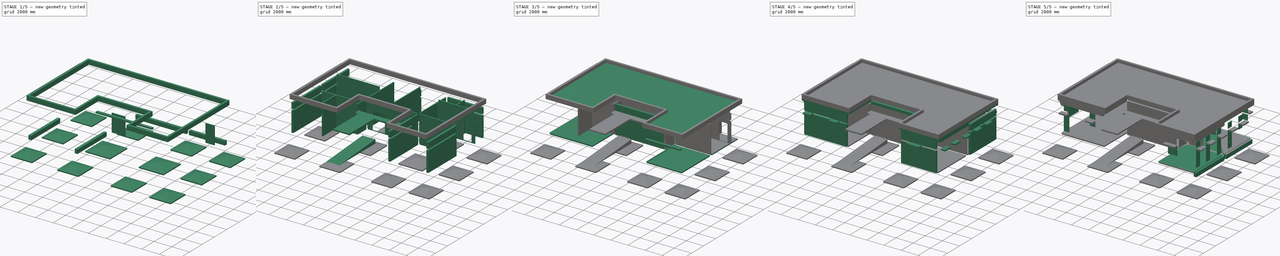
[diagram: build sequence overview — one tinted view per stage of 5, left to right]
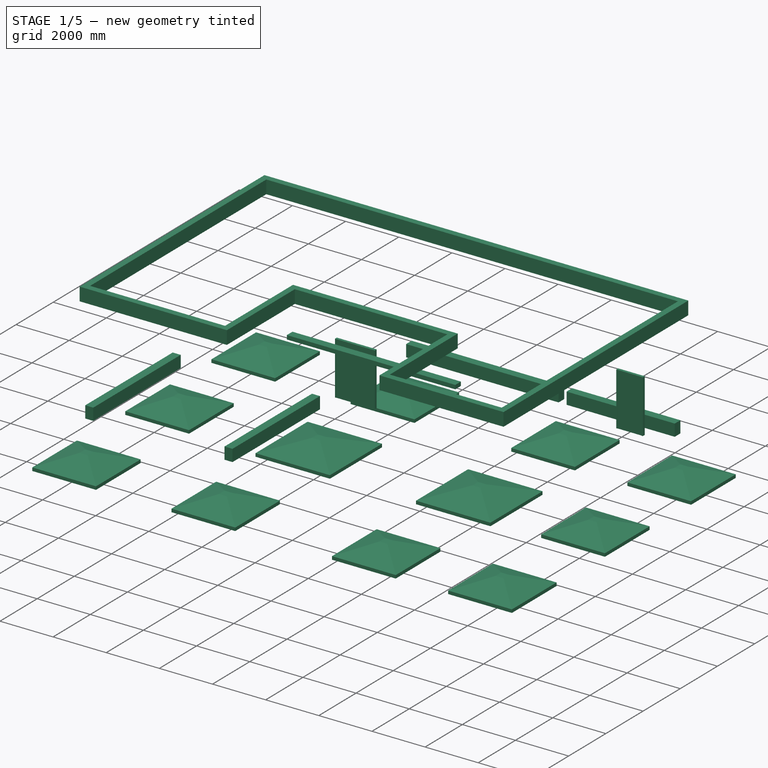
[diagram: stage 1 of 5 — iso view after this stage's code; geometry added in this stage tinted green]
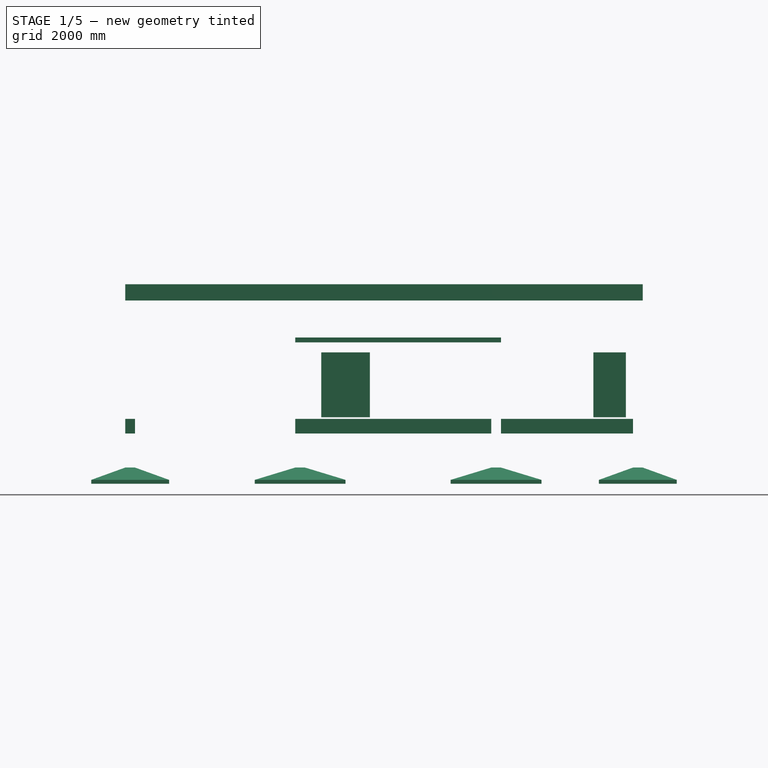
[diagram: stage 1 of 5 — front view after this stage's code; geometry added in this stage tinted green]
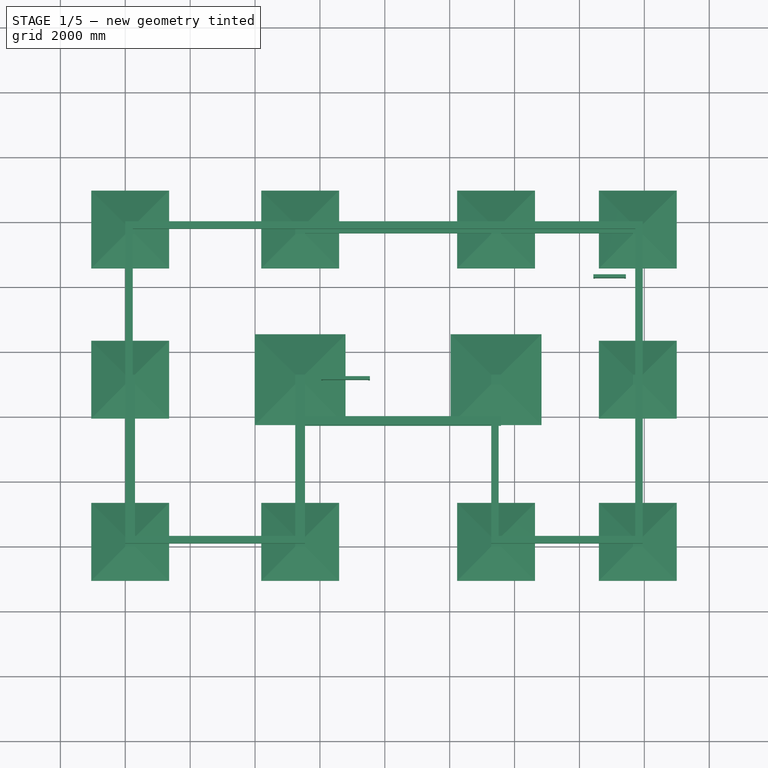
[diagram: stage 1 of 5 — top view after this stage's code; geometry added in this stage tinted green]
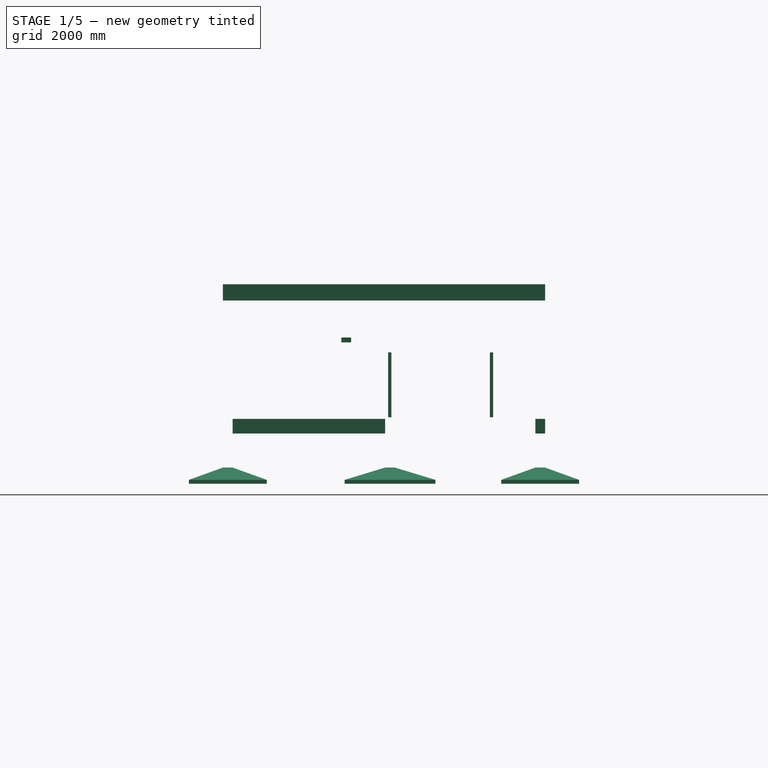
[diagram: stage 1 of 5 — right view after this stage's code; geometry added in this stage tinted green]
FCSTD DOCUMENT  (FreeCAD 0.19R19955 (Git))
Label: DoneModelling
License: All rights reserved
LicenseURL: http://en.wikipedia.org/wiki/All_rights_reserved
objects: Part::FeaturePython×167, Sketcher::SketchObject×80, Part::Part2DObjectPython×7, App::FeaturePython×6, App::MaterialObjectPython×6, App::GeometryPython×4, Part::Wedge×2, Part::Box×2, Part::MultiFuse×2, Part::Feature×1, App::DocumentObjectGroup×1, App::DocumentObjectGroupPython×1, Spreadsheet::Sheet×1
note: 268 computed .brp shape members not serialized (recipe doc carries the construction recipe); baked Part::Feature solids carry a one-line shape summary decoded from their .brp

FEATURE [Part::Feature] Human
  Placement = pos=(500,500,0) rot=(0,0,1;0rad)
  shape: bbox 490.6 x 1.43e-06 x 1712 mm, 1 faces, 0 solids (baked)
FEATURE [Part::Part2DObjectPython] Rectangle  label="Building Outline"  # Draft 2D object (typed FeaturePython)
  Area = 0
  ChamferSize = 0
  Columns = 1
  FilletRadius = 0
  Height = 9930
  Length = 15950
  MakeFace = false
  Rows = 1
FEATURE [App::FeaturePython] Text  label="Building Label"  # WARN: FeaturePython — macro-defined, semantics opaque (R4)
  Placement = pos=(300,-1430,0) rot=(0,0,1;0rad)
  Text = Dispensary
FEATURE [Part::FeaturePython] Axis  label="Vertical Axes"  # WARN: FeaturePython — macro-defined, semantics opaque (R4)
  Angles = [0,0,0,0]
  Distances = [0,5540,5740,4670]
  Length = 10923
  Placement = pos=(0,-546.15,0) rot=(0,0,1;0rad)
  expr: .Placement.Base.x = Rectangle.Placement.Base.x
  expr: .Placement.Base.y = Rectangle.Placement.Base.y - Length * 0.050000000000000003
  expr: Length = Rectangle.Height * 1.1000000000000001
FEATURE [Part::FeaturePython] Axis001  label="Horizontal Axes"  # WARN: FeaturePython — macro-defined, semantics opaque (R4)
  Angles = [0,0,0,0]
  Distances = [0,3650,1500,4780]
  Length = 17545
  Placement = pos=(16580,0,0) rot=(0,0,1;1.5708rad)
  expr: .Placement.Base.y = Rectangle.Placement.Base.y
  expr: .Placement.Base.x = Rectangle.Placement.Base.x + Length * 0.94499999999999995
  expr: Length = Rectangle.Length * 1.1000000000000001
FEATURE [App::FeaturePython] AxisSystem  label="Axes"  # WARN: FeaturePython — macro-defined, semantics opaque (R4)
  Axes = -> [Axis001,Axis]
FEATURE [App::DocumentObjectGroup] App__DocumentObjectGroup  label="Layout"
  Group = -> [Rectangle,Text,Human,AxisSystem]
FEATURE [App::FeaturePython] WPProxy  # WARN: FeaturePython — macro-defined, semantics opaque (R4)
  Placement = pos=(0,0,3500) rot=(0,0,1;0rad)
FEATURE [App::FeaturePython] WPProxy001  # WARN: FeaturePython — macro-defined, semantics opaque (R4)
  Placement = pos=(0,0,3650) rot=(0,0,1;0rad)
FEATURE [App::FeaturePython] WPProxy002  # WARN: FeaturePython — macro-defined, semantics opaque (R4)
  Placement = pos=(0,0,2000) rot=(0,0,1;0rad)
FEATURE [Sketcher::SketchObject] WallTrace
  Placement = pos=(2770,150,0) rot=(0,0,-1;1.5708rad)
  sketch-geometry (1):
    g0: LineSegment StartX=150 StartY=-2470 StartZ=0 EndX=150 EndY=2470 EndZ=0
FEATURE [Sketcher::SketchObject] WallTrace001
  Placement = pos=(2770,150,0) rot=(0,0,-1;1.5708rad)
  sketch-geometry (1):
    g0: LineSegment StartX=150 StartY=8810 StartZ=0 EndX=150 EndY=12880 EndZ=0
FEATURE [Sketcher::SketchObject] WallTrace003
  Placement = pos=(2770,150,0) rot=(0,0,-1;1.5708rad)
  sketch-geometry (1):
    g0: LineSegment StartX=-150 StartY=13180 StartZ=0 EndX=-4850 EndY=13180 EndZ=0
FEATURE [Sketcher::SketchObject] WallTrace004
  Placement = pos=(2770,150,0) rot=(0,0,-1;1.5708rad)
  sketch-geometry (1):
    g0: LineSegment StartX=-5150 StartY=13180 StartZ=0 EndX=-9480 EndY=13180 EndZ=0
FEATURE [Sketcher::SketchObject] WallTrace005
  Placement = pos=(2770,150,0) rot=(0,0,-1;1.5708rad)
  sketch-geometry (1):
    g0: LineSegment StartX=-9780 StartY=12880 StartZ=0 EndX=-9780 EndY=8810 EndZ=0
FEATURE [Sketcher::SketchObject] WallTrace006
  Placement = pos=(2770,150,0) rot=(0,0,-1;1.5708rad)
  sketch-geometry (1):
    g0: LineSegment StartX=-9780 StartY=8510 StartZ=0 EndX=-9780 EndY=2770 EndZ=0
FEATURE [Sketcher::SketchObject] WallTrace007
  Placement = pos=(2770,150,0) rot=(0,0,-1;1.5708rad)
  sketch-geometry (1):
    g0: LineSegment StartX=-9780 StartY=2470 StartZ=0 EndX=-9780 EndY=-2470 EndZ=0
FEATURE [Sketcher::SketchObject] WallTrace008
  Placement = pos=(2770,150,0) rot=(0,0,-1;1.5708rad)
  sketch-geometry (1):
    g0: LineSegment StartX=-9480 StartY=-2770 StartZ=0 EndX=-5150 EndY=-2770 EndZ=0
FEATURE [Sketcher::SketchObject] WallTrace012
  Placement = pos=(5390,2650,0) rot=(0,0,1;0rad)
  sketch-geometry (1):
    g0: LineSegment StartX=150 StartY=-2350 StartZ=0 EndX=150 EndY=1300 EndZ=0
  constraints (2):
    c: DistanceY(g0,g-1) = 2350
    c: DistanceY(g0,g0) = 3650
FEATURE [Sketcher::SketchObject] WallTrace014
  Placement = pos=(11430,2650,0) rot=(0,0,1;0rad)
  sketch-geometry (1):
    g0: LineSegment StartX=-150 StartY=1300 StartZ=0 EndX=-150 EndY=-2350 EndZ=0
  constraints (4):
    c: DistanceX(g0,g-1) = 150
    c: Distance(g0) = 3650
    c: Vertical(g0)
    c: DistanceY(g0,g-1) = 2350
FEATURE [Part::Part2DObjectPython] Rectangle001  # Draft 2D object (typed FeaturePython)
  Area = 2.57642e+07
  ChamferSize = 0
  Columns = 1
  FilletRadius = 0
  Height = 4780
  Length = 5390
  MakeFace = true
  Placement = pos=(5390,9930,3500) rot=(0,0,1;3.14159rad)
  Rows = 1
FEATURE [Part::Part2DObjectPython] Rectangle004  # Draft 2D object (typed FeaturePython)
  Area = 2.88712e+07
  ChamferSize = 0
  Columns = 1
  FilletRadius = 0
  Height = 4780
  Length = 6040
  MakeFace = true
  Placement = pos=(11430,9930,3500) rot=(0,0,1;3.14159rad)
  Rows = 1
FEATURE [Part::Part2DObjectPython] Rectangle005  # Draft 2D object (typed FeaturePython)
  Area = 2.16056e+07
  ChamferSize = 0
  Columns = 1
  FilletRadius = 0
  Height = 4780
  Length = 4520
  MakeFace = true
  Placement = pos=(15950,9930,3500) rot=(0,0,1;3.14159rad)
  Rows = 1
FEATURE [Part::Part2DObjectPython] Rectangle006  # Draft 2D object (typed FeaturePython)
  Area = 2.40505e+07
  ChamferSize = 0
  Columns = 1
  FilletRadius = 0
  Height = 5150
  Length = 4670
  MakeFace = true
  Placement = pos=(15950,5150,3500) rot=(0,0,1;3.14159rad)
  Rows = 1
FEATURE [Part::Part2DObjectPython] Rectangle007  # Draft 2D object (typed FeaturePython)
  Area = 2.8531e+07
  ChamferSize = 0
  Columns = 1
  FilletRadius = 0
  Height = 5150
  Length = 5540
  MakeFace = true
  Placement = pos=(5540,5150,3500) rot=(0,0,1;3.14159rad)
  Rows = 1
FEATURE [Part::Part2DObjectPython] Rectangle008  # Draft 2D object (typed FeaturePython)
  Area = 9.06e+06
  ChamferSize = 0
  Columns = 1
  FilletRadius = 0
  Height = 1500
  Length = 6040
  MakeFace = true
  Placement = pos=(11430,5150,3500) rot=(0,0,1;3.14159rad)
  Rows = 1
FEATURE [Sketcher::SketchObject] Sketch
  Placement = pos=(15950,2650,1600) rot=(0.57735,0.57735,0.57735;2.0944rad)
  sketch-geometry (16):
    g0: LineSegment StartX=-2280 StartY=760 StartZ=0 EndX=-1670 EndY=760 EndZ=0
    g1: LineSegment StartX=-1670 StartY=760 StartZ=0 EndX=-1670 EndY=-1200 EndZ=0
    g2: LineSegment StartX=-1670 StartY=-1200 StartZ=0 EndX=-2280 EndY=-1200 EndZ=0
    g3: LineSegment StartX=-2280 StartY=-1200 StartZ=0 EndX=-2280 EndY=760 EndZ=0
    g4: LineSegment StartX=-2255 StartY=-675 StartZ=0 EndX=-1695 EndY=-675 EndZ=0
    g5: LineSegment StartX=-1695 StartY=-675 StartZ=0 EndX=-1695 EndY=-1175 EndZ=0
    g6: LineSegment StartX=-1695 StartY=-1175 StartZ=0 EndX=-2255 EndY=-1175 EndZ=0
    g7: LineSegment StartX=-2255 StartY=-1175 StartZ=0 EndX=-2255 EndY=-675 EndZ=0
    g8: LineSegment StartX=-2255 StartY=735 StartZ=0 EndX=-1695 EndY=735 EndZ=0
    g9: LineSegment StartX=-1695 StartY=735 StartZ=0 EndX=-1695 EndY=-625 EndZ=0
    g10: LineSegment StartX=-1695 StartY=-625 StartZ=0 EndX=-2255 EndY=-625 EndZ=0
    g11: LineSegment StartX=-2255 StartY=-625 StartZ=0 EndX=-2255 EndY=735 EndZ=0
    g12: LineSegment StartX=-2230 StartY=685 StartZ=0 EndX=-1720 EndY=685 EndZ=0
    g13: LineSegment StartX=-1720 StartY=685 StartZ=0 EndX=-1720 EndY=-575 EndZ=0
    g14: LineSegment StartX=-1720 StartY=-575 StartZ=0 EndX=-2230 EndY=-575 EndZ=0
    g15: LineSegment StartX=-2230 StartY=-575 StartZ=0 EndX=-2230 EndY=685 EndZ=0
  constraints (46):
    c: Coincident(g0,g1)
    c: Coincident(g1,g2)
    c: Coincident(g2,g3)
    c: Coincident(g3,g0)
    c: Horizontal(g0)
    c: Horizontal(g2)
    c: Vertical(g1)
    c: Vertical(g3)
    c: Coincident(g4,g5)
    c: Coincident(g5,g6)
    c: Coincident(g6,g7)
    c: Coincident(g7,g4)
    c: Horizontal(g4)
    c: Horizontal(g6)
    c: Vertical(g5)
    c: Vertical(g7)
    c: Coincident(g8,g9)
    c: Coincident(g9,g10)
    c: Coincident(g10,g11)
    c: Coincident(g11,g8)
    c: Horizontal(g8)
    c: Horizontal(g10)
    c: Vertical(g9)
    c: Vertical(g11)
    c: DistanceY(g1,g5) = 25
    c: DistanceX(g5,g1) = 25
    c: DistanceX(g2,g6) = 25
    c: DistanceY(g1,g1) = 1960
    c: DistanceY(g4,g9) = 50
    c: DistanceX(g4,g10) = 0
    c: DistanceX(g9,g4) = 0
    c: DistanceY(g8,g0) = 25
    c: Coincident(g12,g13)
    c: Coincident(g13,g14)
    c: Coincident(g14,g15)
    c: Coincident(g15,g12)
    c: Horizontal(g12)
    c: Horizontal(g14)
    c: Vertical(g13)
    c: Vertical(g15)
    c: DistanceY(g12,g8) = 50
    c: DistanceY(g9,g13) = 50
    c: DistanceX(g13,g9) = 25
    c: DistanceX(g10,g14) = 25
    c: DistanceX(g0,g0) = 610
    c: DistanceY(g5,g5) = 500
FEATURE [Sketcher::SketchObject] Sketch001
  Placement = pos=(15950,2650,1600) rot=(0.57735,0.57735,0.57735;2.0944rad)
  sketch-geometry (16):
    g0: LineSegment StartX=-2280 StartY=760 StartZ=0 EndX=-1670 EndY=760 EndZ=0
    g1: LineSegment StartX=-1670 StartY=760 StartZ=0 EndX=-1670 EndY=-1200 EndZ=0
    g2: LineSegment StartX=-1670 StartY=-1200 StartZ=0 EndX=-2280 EndY=-1200 EndZ=0
    g3: LineSegment StartX=-2280 StartY=-1200 StartZ=0 EndX=-2280 EndY=760 EndZ=0
    g4: LineSegment StartX=-2255 StartY=-675 StartZ=0 EndX=-1695 EndY=-675 EndZ=0
    g5: LineSegment StartX=-1695 StartY=-675 StartZ=0 EndX=-1695 EndY=-1175 EndZ=0
    g6: LineSegment StartX=-1695 StartY=-1175 StartZ=0 EndX=-2255 EndY=-1175 EndZ=0
    g7: LineSegment StartX=-2255 StartY=-1175 StartZ=0 EndX=-2255 EndY=-675 EndZ=0
    g8: LineSegment StartX=-2255 StartY=735 StartZ=0 EndX=-1695 EndY=735 EndZ=0
    g9: LineSegment StartX=-1695 StartY=735 StartZ=0 EndX=-1695 EndY=-625 EndZ=0
    g10: LineSegment StartX=-1695 StartY=-625 StartZ=0 EndX=-2255 EndY=-625 EndZ=0
    g11: LineSegment StartX=-2255 StartY=-625 StartZ=0 EndX=-2255 EndY=735 EndZ=0
    g12: LineSegment StartX=-2230 StartY=685 StartZ=0 EndX=-1720 EndY=685 EndZ=0
    g13: LineSegment StartX=-1720 StartY=685 StartZ=0 EndX=-1720 EndY=-575 EndZ=0
    g14: LineSegment StartX=-1720 StartY=-575 StartZ=0 EndX=-2230 EndY=-575 EndZ=0
    g15: LineSegment StartX=-2230 StartY=-575 StartZ=0 EndX=-2230 EndY=685 EndZ=0
  constraints (46):
    c: Coincident(g0,g1)
    c: Coincident(g1,g2)
    c: Coincident(g2,g3)
    c: Coincident(g3,g0)
    c: Horizontal(g0)
    c: Horizontal(g2)
    c: Vertical(g1)
    c: Vertical(g3)
    c: Coincident(g4,g5)
    c: Coincident(g5,g6)
    c: Coincident(g6,g7)
    c: Coincident(g7,g4)
    c: Horizontal(g4)
    c: Horizontal(g6)
    c: Vertical(g5)
    c: Vertical(g7)
    c: Coincident(g8,g9)
    c: Coincident(g9,g10)
    c: Coincident(g10,g11)
    c: Coincident(g11,g8)
    c: Horizontal(g8)
    c: Horizontal(g10)
    c: Vertical(g9)
    c: Vertical(g11)
    c: DistanceY(g1,g5) = 25
    c: DistanceX(g5,g1) = 25
    c: DistanceX(g2,g6) = 25
    c: DistanceY(g1,g1) = 1960
    c: DistanceY(g4,g9) = 50
    c: DistanceX(g4,g10) = 0
    c: DistanceX(g9,g4) = 0
    c: DistanceY(g8,g0) = 25
    c: Coincident(g12,g13)
    c: Coincident(g13,g14)
    c: Coincident(g14,g15)
    c: Coincident(g15,g12)
    c: Horizontal(g12)
    c: Horizontal(g14)
    c: Vertical(g13)
    c: Vertical(g15)
    c: DistanceY(g12,g8) = 50
    c: DistanceY(g9,g13) = 50
    c: DistanceX(g13,g9) = 25
    c: DistanceX(g10,g14) = 25
    c: DistanceX(g0,g0) = 610
    c: DistanceY(g5,g5) = 500
FEATURE [Sketcher::SketchObject] Sketch002
  Placement = pos=(15950,2650,1600) rot=(0.57735,0.57735,0.57735;2.0944rad)
  sketch-geometry (16):
    g0: LineSegment StartX=-2280 StartY=760 StartZ=0 EndX=-1670 EndY=760 EndZ=0
    g1: LineSegment StartX=-1670 StartY=760 StartZ=0 EndX=-1670 EndY=-1200 EndZ=0
    g2: LineSegment StartX=-1670 StartY=-1200 StartZ=0 EndX=-2280 EndY=-1200 EndZ=0
    g3: LineSegment StartX=-2280 StartY=-1200 StartZ=0 EndX=-2280 EndY=760 EndZ=0
    g4: LineSegment StartX=-2255 StartY=-675 StartZ=0 EndX=-1695 EndY=-675 EndZ=0
    g5: LineSegment StartX=-1695 StartY=-675 StartZ=0 EndX=-1695 EndY=-1175 EndZ=0
    g6: LineSegment StartX=-1695 StartY=-1175 StartZ=0 EndX=-2255 EndY=-1175 EndZ=0
    g7: LineSegment StartX=-2255 StartY=-1175 StartZ=0 EndX=-2255 EndY=-675 EndZ=0
    g8: LineSegment StartX=-2255 StartY=735 StartZ=0 EndX=-1695 EndY=735 EndZ=0
    g9: LineSegment StartX=-1695 StartY=735 StartZ=0 EndX=-1695 EndY=-625 EndZ=0
    g10: LineSegment StartX=-1695 StartY=-625 StartZ=0 EndX=-2255 EndY=-625 EndZ=0
    g11: LineSegment StartX=-2255 StartY=-625 StartZ=0 EndX=-2255 EndY=735 EndZ=0
    g12: LineSegment StartX=-2230 StartY=685 StartZ=0 EndX=-1720 EndY=685 EndZ=0
    g13: LineSegment StartX=-1720 StartY=685 StartZ=0 EndX=-1720 EndY=-575 EndZ=0
    g14: LineSegment StartX=-1720 StartY=-575 StartZ=0 EndX=-2230 EndY=-575 EndZ=0
    g15: LineSegment StartX=-2230 StartY=-575 StartZ=0 EndX=-2230 EndY=685 EndZ=0
  constraints (46):
    c: Coincident(g0,g1)
    c: Coincident(g1,g2)
    c: Coincident(g2,g3)
    c: Coincident(g3,g0)
    c: Horizontal(g0)
    c: Horizontal(g2)
    c: Vertical(g1)
    c: Vertical(g3)
    c: Coincident(g4,g5)
    c: Coincident(g5,g6)
    c: Coincident(g6,g7)
    c: Coincident(g7,g4)
    c: Horizontal(g4)
    c: Horizontal(g6)
    c: Vertical(g5)
    c: Vertical(g7)
    c: Coincident(g8,g9)
    c: Coincident(g9,g10)
    c: Coincident(g10,g11)
    c: Coincident(g11,g8)
    c: Horizontal(g8)
    c: Horizontal(g10)
    c: Vertical(g9)
    c: Vertical(g11)
    c: DistanceY(g1,g5) = 25
    c: DistanceX(g5,g1) = 25
    c: DistanceX(g2,g6) = 25
    c: DistanceY(g1,g1) = 1960
    c: DistanceY(g4,g9) = 50
    c: DistanceX(g4,g10) = 0
    c: DistanceX(g9,g4) = 0
    c: DistanceY(g8,g0) = 25
    c: Coincident(g12,g13)
    c: Coincident(g13,g14)
    c: Coincident(g14,g15)
    c: Coincident(g15,g12)
    c: Horizontal(g12)
    c: Horizontal(g14)
    c: Vertical(g13)
    c: Vertical(g15)
    c: DistanceY(g12,g8) = 50
    c: DistanceY(g9,g13) = 50
    c: DistanceX(g13,g9) = 25
    c: DistanceX(g10,g14) = 25
    c: DistanceX(g0,g0) = 610
    c: DistanceY(g5,g5) = 500
FEATURE [Sketcher::SketchObject] Sketch003
  Placement = pos=(15950,2650,1600) rot=(0.57735,0.57735,0.57735;2.0944rad)
  sketch-geometry (16):
    g0: LineSegment StartX=-2280 StartY=760 StartZ=0 EndX=-1670 EndY=760 EndZ=0
    g1: LineSegment StartX=-1670 StartY=760 StartZ=0 EndX=-1670 EndY=-1200 EndZ=0
    g2: LineSegment StartX=-1670 StartY=-1200 StartZ=0 EndX=-2280 EndY=-1200 EndZ=0
    g3: LineSegment StartX=-2280 StartY=-1200 StartZ=0 EndX=-2280 EndY=760 EndZ=0
    g4: LineSegment StartX=-2255 StartY=-675 StartZ=0 EndX=-1695 EndY=-675 EndZ=0
    g5: LineSegment StartX=-1695 StartY=-675 StartZ=0 EndX=-1695 EndY=-1175 EndZ=0
    g6: LineSegment StartX=-1695 StartY=-1175 StartZ=0 EndX=-2255 EndY=-1175 EndZ=0
    g7: LineSegment StartX=-2255 StartY=-1175 StartZ=0 EndX=-2255 EndY=-675 EndZ=0
    g8: LineSegment StartX=-2255 StartY=735 StartZ=0 EndX=-1695 EndY=735 EndZ=0
    g9: LineSegment StartX=-1695 StartY=735 StartZ=0 EndX=-1695 EndY=-625 EndZ=0
    g10: LineSegment StartX=-1695 StartY=-625 StartZ=0 EndX=-2255 EndY=-625 EndZ=0
    g11: LineSegment StartX=-2255 StartY=-625 StartZ=0 EndX=-2255 EndY=735 EndZ=0
    g12: LineSegment StartX=-2230 StartY=685 StartZ=0 EndX=-1720 EndY=685 EndZ=0
    g13: LineSegment StartX=-1720 StartY=685 StartZ=0 EndX=-1720 EndY=-575 EndZ=0
    g14: LineSegment StartX=-1720 StartY=-575 StartZ=0 EndX=-2230 EndY=-575 EndZ=0
    g15: LineSegment StartX=-2230 StartY=-575 StartZ=0 EndX=-2230 EndY=685 EndZ=0
  constraints (46):
    c: Coincident(g0,g1)
    c: Coincident(g1,g2)
    c: Coincident(g2,g3)
    c: Coincident(g3,g0)
    c: Horizontal(g0)
    c: Horizontal(g2)
    c: Vertical(g1)
    c: Vertical(g3)
    c: Coincident(g4,g5)
    c: Coincident(g5,g6)
    c: Coincident(g6,g7)
    c: Coincident(g7,g4)
    c: Horizontal(g4)
    c: Horizontal(g6)
    c: Vertical(g5)
    c: Vertical(g7)
    c: Coincident(g8,g9)
    c: Coincident(g9,g10)
    c: Coincident(g10,g11)
    c: Coincident(g11,g8)
    c: Horizontal(g8)
    c: Horizontal(g10)
    c: Vertical(g9)
    c: Vertical(g11)
    c: DistanceY(g1,g5) = 25
    c: DistanceX(g5,g1) = 25
    c: DistanceX(g2,g6) = 25
    c: DistanceY(g1,g1) = 1960
    c: DistanceY(g4,g9) = 50
    c: DistanceX(g4,g10) = 0
    c: DistanceX(g9,g4) = 0
    c: DistanceY(g8,g0) = 25
    c: Coincident(g12,g13)
    c: Coincident(g13,g14)
    c: Coincident(g14,g15)
    c: Coincident(g15,g12)
    c: Horizontal(g12)
    c: Horizontal(g14)
    c: Vertical(g13)
    c: Vertical(g15)
    c: DistanceY(g12,g8) = 50
    c: DistanceY(g9,g13) = 50
    c: DistanceX(g13,g9) = 25
    c: DistanceX(g10,g14) = 25
    c: DistanceX(g0,g0) = 610
    c: DistanceY(g5,g5) = 500
FEATURE [Sketcher::SketchObject] Sketch006
  Placement = pos=(15950,2698.54,1668.9) rot=(0.57735,0.57735,0.57735;2.0944rad)
  sketch-geometry (12):
    g0: LineSegment StartX=-2328.54 StartY=1451.1 StartZ=0 EndX=-1718.54 EndY=1451.1 EndZ=0
    g1: LineSegment StartX=-1718.54 StartY=1451.1 StartZ=0 EndX=-1718.54 EndY=841.103 EndZ=0
    g2: LineSegment StartX=-1718.54 StartY=841.103 StartZ=0 EndX=-2328.54 EndY=841.103 EndZ=0
    g3: LineSegment StartX=-2328.54 StartY=841.103 StartZ=0 EndX=-2328.54 EndY=1451.1 EndZ=0
    g4: LineSegment StartX=-2303.54 StartY=1426.1 StartZ=0 EndX=-1743.54 EndY=1426.1 EndZ=0
    g5: LineSegment StartX=-1743.54 StartY=1426.1 StartZ=0 EndX=-1743.54 EndY=866.103 EndZ=0
    g6: LineSegment StartX=-1743.54 StartY=866.103 StartZ=0 EndX=-2303.54 EndY=866.103 EndZ=0
    g7: LineSegment StartX=-2303.54 StartY=866.103 StartZ=0 EndX=-2303.54 EndY=1426.1 EndZ=0
    g8: LineSegment StartX=-2278.54 StartY=1376.1 StartZ=0 EndX=-1768.54 EndY=1376.1 EndZ=0
    g9: LineSegment StartX=-1768.54 StartY=1376.1 StartZ=0 EndX=-1768.54 EndY=916.103 EndZ=0
    g10: LineSegment StartX=-1768.54 StartY=916.103 StartZ=0 EndX=-2278.54 EndY=916.103 EndZ=0
    g11: LineSegment StartX=-2278.54 StartY=916.103 StartZ=0 EndX=-2278.54 EndY=1376.1 EndZ=0
  constraints (34):
    c: Coincident(g0,g1)
    c: Coincident(g1,g2)
    c: Coincident(g2,g3)
    c: Coincident(g3,g0)
    c: Horizontal(g0)
    c: Horizontal(g2)
    c: Vertical(g1)
    c: Vertical(g3)
    c: Coincident(g4,g5)
    c: Coincident(g5,g6)
    c: Coincident(g6,g7)
    c: Coincident(g7,g4)
    c: Horizontal(g4)
    c: Horizontal(g6)
    c: Vertical(g5)
    c: Vertical(g7)
    c: Coincident(g8,g9)
    c: Coincident(g9,g10)
    c: Coincident(g10,g11)
    c: Coincident(g11,g8)
    c: Horizontal(g8)
    c: Horizontal(g10)
    c: Vertical(g9)
    c: Vertical(g11)
    c: DistanceY(g4,g0) = 25
    c: DistanceY(g1,g5) = 25
    c: DistanceY(g5,g9) = 50
    c: DistanceY(g8,g4) = 50
    c: DistanceY(g1,g1) = 610
    c: DistanceX(g4,g8) = 25
    c: DistanceX(g0,g4) = 25
    c: DistanceX(g8,g4) = 25
    c: DistanceX(g5,g1) = 25
    c: DistanceX(g2,g2) = 610
FEATURE [Sketcher::SketchObject] Sketch007
  Placement = pos=(15950,2698.54,1668.9) rot=(0.57735,0.57735,0.57735;2.0944rad)
  sketch-geometry (12):
    g0: LineSegment StartX=-2328.54 StartY=1451.1 StartZ=0 EndX=-1718.54 EndY=1451.1 EndZ=0
    g1: LineSegment StartX=-1718.54 StartY=1451.1 StartZ=0 EndX=-1718.54 EndY=841.103 EndZ=0
    g2: LineSegment StartX=-1718.54 StartY=841.103 StartZ=0 EndX=-2328.54 EndY=841.103 EndZ=0
    g3: LineSegment StartX=-2328.54 StartY=841.103 StartZ=0 EndX=-2328.54 EndY=1451.1 EndZ=0
    g4: LineSegment StartX=-2303.54 StartY=1426.1 StartZ=0 EndX=-1743.54 EndY=1426.1 EndZ=0
    g5: LineSegment StartX=-1743.54 StartY=1426.1 StartZ=0 EndX=-1743.54 EndY=866.103 EndZ=0
    g6: LineSegment StartX=-1743.54 StartY=866.103 StartZ=0 EndX=-2303.54 EndY=866.103 EndZ=0
    g7: LineSegment StartX=-2303.54 StartY=866.103 StartZ=0 EndX=-2303.54 EndY=1426.1 EndZ=0
    g8: LineSegment StartX=-2278.54 StartY=1376.1 StartZ=0 EndX=-1768.54 EndY=1376.1 EndZ=0
    g9: LineSegment StartX=-1768.54 StartY=1376.1 StartZ=0 EndX=-1768.54 EndY=916.103 EndZ=0
    g10: LineSegment StartX=-1768.54 StartY=916.103 StartZ=0 EndX=-2278.54 EndY=916.103 EndZ=0
    g11: LineSegment StartX=-2278.54 StartY=916.103 StartZ=0 EndX=-2278.54 EndY=1376.1 EndZ=0
  constraints (34):
    c: Coincident(g0,g1)
    c: Coincident(g1,g2)
    c: Coincident(g2,g3)
    c: Coincident(g3,g0)
    c: Horizontal(g0)
    c: Horizontal(g2)
    c: Vertical(g1)
    c: Vertical(g3)
    c: Coincident(g4,g5)
    c: Coincident(g5,g6)
    c: Coincident(g6,g7)
    c: Coincident(g7,g4)
    c: Horizontal(g4)
    c: Horizontal(g6)
    c: Vertical(g5)
    c: Vertical(g7)
    c: Coincident(g8,g9)
    c: Coincident(g9,g10)
    c: Coincident(g10,g11)
    c: Coincident(g11,g8)
    c: Horizontal(g8)
    c: Horizontal(g10)
    c: Vertical(g9)
    c: Vertical(g11)
    c: DistanceY(g4,g0) = 25
    c: DistanceY(g1,g5) = 25
    c: DistanceY(g5,g9) = 50
    c: DistanceY(g8,g4) = 50
    c: DistanceY(g1,g1) = 610
    c: DistanceX(g4,g8) = 25
    c: DistanceX(g0,g4) = 25
    c: DistanceX(g8,g4) = 25
    c: DistanceX(g5,g1) = 25
    c: DistanceX(g2,g2) = 610
FEATURE [Sketcher::SketchObject] Sketch008
  Placement = pos=(15950,2698.54,1668.9) rot=(0.57735,0.57735,0.57735;2.0944rad)
  sketch-geometry (12):
    g0: LineSegment StartX=-2328.54 StartY=1451.1 StartZ=0 EndX=-1718.54 EndY=1451.1 EndZ=0
    g1: LineSegment StartX=-1718.54 StartY=1451.1 StartZ=0 EndX=-1718.54 EndY=841.103 EndZ=0
    g2: LineSegment StartX=-1718.54 StartY=841.103 StartZ=0 EndX=-2328.54 EndY=841.103 EndZ=0
    g3: LineSegment StartX=-2328.54 StartY=841.103 StartZ=0 EndX=-2328.54 EndY=1451.1 EndZ=0
    g4: LineSegment StartX=-2303.54 StartY=1426.1 StartZ=0 EndX=-1743.54 EndY=1426.1 EndZ=0
    g5: LineSegment StartX=-1743.54 StartY=1426.1 StartZ=0 EndX=-1743.54 EndY=866.103 EndZ=0
    g6: LineSegment StartX=-1743.54 StartY=866.103 StartZ=0 EndX=-2303.54 EndY=866.103 EndZ=0
    g7: LineSegment StartX=-2303.54 StartY=866.103 StartZ=0 EndX=-2303.54 EndY=1426.1 EndZ=0
    g8: LineSegment StartX=-2278.54 StartY=1376.1 StartZ=0 EndX=-1768.54 EndY=1376.1 EndZ=0
    g9: LineSegment StartX=-1768.54 StartY=1376.1 StartZ=0 EndX=-1768.54 EndY=916.103 EndZ=0
    g10: LineSegment StartX=-1768.54 StartY=916.103 StartZ=0 EndX=-2278.54 EndY=916.103 EndZ=0
    g11: LineSegment StartX=-2278.54 StartY=916.103 StartZ=0 EndX=-2278.54 EndY=1376.1 EndZ=0
  constraints (34):
    c: Coincident(g0,g1)
    c: Coincident(g1,g2)
    c: Coincident(g2,g3)
    c: Coincident(g3,g0)
    c: Horizontal(g0)
    c: Horizontal(g2)
    c: Vertical(g1)
    c: Vertical(g3)
    c: Coincident(g4,g5)
    c: Coincident(g5,g6)
    c: Coincident(g6,g7)
    c: Coincident(g7,g4)
    c: Horizontal(g4)
    c: Horizontal(g6)
    c: Vertical(g5)
    c: Vertical(g7)
    c: Coincident(g8,g9)
    c: Coincident(g9,g10)
    c: Coincident(g10,g11)
    c: Coincident(g11,g8)
    c: Horizontal(g8)
    c: Horizontal(g10)
    c: Vertical(g9)
    c: Vertical(g11)
    c: DistanceY(g4,g0) = 25
    c: DistanceY(g1,g5) = 25
    c: DistanceY(g5,g9) = 50
    c: DistanceY(g8,g4) = 50
    c: DistanceY(g1,g1) = 610
    c: DistanceX(g4,g8) = 25
    c: DistanceX(g0,g4) = 25
    c: DistanceX(g8,g4) = 25
    c: DistanceX(g5,g1) = 25
    c: DistanceX(g2,g2) = 610
FEATURE [Sketcher::SketchObject] Sketch009
  Placement = pos=(15950,2698.54,1668.9) rot=(0.57735,0.57735,0.57735;2.0944rad)
  sketch-geometry (12):
    g0: LineSegment StartX=-2328.54 StartY=1451.1 StartZ=0 EndX=-1718.54 EndY=1451.1 EndZ=0
    g1: LineSegment StartX=-1718.54 StartY=1451.1 StartZ=0 EndX=-1718.54 EndY=841.103 EndZ=0
    g2: LineSegment StartX=-1718.54 StartY=841.103 StartZ=0 EndX=-2328.54 EndY=841.103 EndZ=0
    g3: LineSegment StartX=-2328.54 StartY=841.103 StartZ=0 EndX=-2328.54 EndY=1451.1 EndZ=0
    g4: LineSegment StartX=-2303.54 StartY=1426.1 StartZ=0 EndX=-1743.54 EndY=1426.1 EndZ=0
    g5: LineSegment StartX=-1743.54 StartY=1426.1 StartZ=0 EndX=-1743.54 EndY=866.103 EndZ=0
    g6: LineSegment StartX=-1743.54 StartY=866.103 StartZ=0 EndX=-2303.54 EndY=866.103 EndZ=0
    g7: LineSegment StartX=-2303.54 StartY=866.103 StartZ=0 EndX=-2303.54 EndY=1426.1 EndZ=0
    g8: LineSegment StartX=-2278.54 StartY=1376.1 StartZ=0 EndX=-1768.54 EndY=1376.1 EndZ=0
    g9: LineSegment StartX=-1768.54 StartY=1376.1 StartZ=0 EndX=-1768.54 EndY=916.103 EndZ=0
    g10: LineSegment StartX=-1768.54 StartY=916.103 StartZ=0 EndX=-2278.54 EndY=916.103 EndZ=0
    g11: LineSegment StartX=-2278.54 StartY=916.103 StartZ=0 EndX=-2278.54 EndY=1376.1 EndZ=0
  constraints (34):
    c: Coincident(g0,g1)
    c: Coincident(g1,g2)
    c: Coincident(g2,g3)
    c: Coincident(g3,g0)
    c: Horizontal(g0)
    c: Horizontal(g2)
    c: Vertical(g1)
    c: Vertical(g3)
    c: Coincident(g4,g5)
    c: Coincident(g5,g6)
    c: Coincident(g6,g7)
    c: Coincident(g7,g4)
    c: Horizontal(g4)
    c: Horizontal(g6)
    c: Vertical(g5)
    c: Vertical(g7)
    c: Coincident(g8,g9)
    c: Coincident(g9,g10)
    c: Coincident(g10,g11)
    c: Coincident(g11,g8)
    c: Horizontal(g8)
    c: Horizontal(g10)
    c: Vertical(g9)
    c: Vertical(g11)
    c: DistanceY(g4,g0) = 25
    c: DistanceY(g1,g5) = 25
    c: DistanceY(g5,g9) = 50
    c: DistanceY(g8,g4) = 50
    c: DistanceY(g1,g1) = 610
    c: DistanceX(g4,g8) = 25
    c: DistanceX(g0,g4) = 25
    c: DistanceX(g8,g4) = 25
    c: DistanceX(g5,g1) = 25
    c: DistanceX(g2,g2) = 610
FEATURE [Sketcher::SketchObject] Sketch011
  Placement = pos=(15950,2724.08,1084.42) rot=(0.57735,0.57735,0.57735;2.0944rad)
  sketch-geometry (4):
    g0: LineSegment StartX=-2504.08 StartY=1425.58 StartZ=0 EndX=-1594.08 EndY=1425.58 EndZ=0
    g1: LineSegment StartX=-1594.08 StartY=1425.58 StartZ=0 EndX=-1594.08 EndY=1275.58 EndZ=0
    g2: LineSegment StartX=-1594.08 StartY=1275.58 StartZ=0 EndX=-2504.08 EndY=1275.58 EndZ=0
    g3: LineSegment StartX=-2504.08 StartY=1275.58 StartZ=0 EndX=-2504.08 EndY=1425.58 EndZ=0
  constraints (10):
    c: Coincident(g0,g1)
    c: Coincident(g1,g2)
    c: Coincident(g2,g3)
    c: Coincident(g3,g0)
    c: Horizontal(g0)
    c: Horizontal(g2)
    c: Vertical(g1)
    c: Vertical(g3)
    c: DistanceY(g1,g1) = 150
    c: DistanceX(g0,g0) = 910
FEATURE [Sketcher::SketchObject] Sketch012
  Placement = pos=(15950,2724.08,1084.42) rot=(0.57735,0.57735,0.57735;2.0944rad)
  sketch-geometry (4):
    g0: LineSegment StartX=-2504.08 StartY=1425.58 StartZ=0 EndX=-1594.08 EndY=1425.58 EndZ=0
    g1: LineSegment StartX=-1594.08 StartY=1425.58 StartZ=0 EndX=-1594.08 EndY=1275.58 EndZ=0
    g2: LineSegment StartX=-1594.08 StartY=1275.58 StartZ=0 EndX=-2504.08 EndY=1275.58 EndZ=0
    g3: LineSegment StartX=-2504.08 StartY=1275.58 StartZ=0 EndX=-2504.08 EndY=1425.58 EndZ=0
  constraints (10):
    c: Coincident(g0,g1)
    c: Coincident(g1,g2)
    c: Coincident(g2,g3)
    c: Coincident(g3,g0)
    c: Horizontal(g0)
    c: Horizontal(g2)
    c: Vertical(g1)
    c: Vertical(g3)
    c: DistanceY(g1,g1) = 150
    c: DistanceX(g0,g0) = 910
FEATURE [Sketcher::SketchObject] Sketch013
  Placement = pos=(15950,2724.08,1084.42) rot=(0.57735,0.57735,0.57735;2.0944rad)
  sketch-geometry (4):
    g0: LineSegment StartX=-2504.08 StartY=1425.58 StartZ=0 EndX=-1594.08 EndY=1425.58 EndZ=0
    g1: LineSegment StartX=-1594.08 StartY=1425.58 StartZ=0 EndX=-1594.08 EndY=1275.58 EndZ=0
    g2: LineSegment StartX=-1594.08 StartY=1275.58 StartZ=0 EndX=-2504.08 EndY=1275.58 EndZ=0
    g3: LineSegment StartX=-2504.08 StartY=1275.58 StartZ=0 EndX=-2504.08 EndY=1425.58 EndZ=0
  constraints (10):
    c: Coincident(g0,g1)
    c: Coincident(g1,g2)
    c: Coincident(g2,g3)
    c: Coincident(g3,g0)
    c: Horizontal(g0)
    c: Horizontal(g2)
    c: Vertical(g1)
    c: Vertical(g3)
    c: DistanceY(g1,g1) = 150
    c: DistanceX(g0,g0) = 910
FEATURE [Sketcher::SketchObject] Sketch014
  Placement = pos=(15950,2724.08,1084.42) rot=(0.57735,0.57735,0.57735;2.0944rad)
  sketch-geometry (4):
    g0: LineSegment StartX=-2504.08 StartY=1425.58 StartZ=0 EndX=-1594.08 EndY=1425.58 EndZ=0
    g1: LineSegment StartX=-1594.08 StartY=1425.58 StartZ=0 EndX=-1594.08 EndY=1275.58 EndZ=0
    g2: LineSegment StartX=-1594.08 StartY=1275.58 StartZ=0 EndX=-2504.08 EndY=1275.58 EndZ=0
    g3: LineSegment StartX=-2504.08 StartY=1275.58 StartZ=0 EndX=-2504.08 EndY=1425.58 EndZ=0
  constraints (10):
    c: Coincident(g0,g1)
    c: Coincident(g1,g2)
    c: Coincident(g2,g3)
    c: Coincident(g3,g0)
    c: Horizontal(g0)
    c: Horizontal(g2)
    c: Vertical(g1)
    c: Vertical(g3)
    c: DistanceY(g1,g1) = 150
    c: DistanceX(g0,g0) = 910
FEATURE [Sketcher::SketchObject] Sketch016
  Placement = pos=(13615,9930,1600) rot=(0,0.707107,0.707107;3.14159rad)
  sketch-geometry (12):
    g0: LineSegment StartX=-1875 StartY=760 StartZ=0 EndX=-1265 EndY=760 EndZ=0
    g1: LineSegment StartX=-1265 StartY=760 StartZ=0 EndX=-1265 EndY=150 EndZ=0
    g2: LineSegment StartX=-1265 StartY=150 StartZ=0 EndX=-1875 EndY=150 EndZ=0
    g3: LineSegment StartX=-1875 StartY=150 StartZ=0 EndX=-1875 EndY=760 EndZ=0
    g4: LineSegment StartX=-1850 StartY=735 StartZ=0 EndX=-1290 EndY=735 EndZ=0
    g5: LineSegment StartX=-1290 StartY=735 StartZ=0 EndX=-1290 EndY=175 EndZ=0
    g6: LineSegment StartX=-1290 StartY=175 StartZ=0 EndX=-1850 EndY=175 EndZ=0
    g7: LineSegment StartX=-1850 StartY=175 StartZ=0 EndX=-1850 EndY=735 EndZ=0
    g8: LineSegment StartX=-1825 StartY=685 StartZ=0 EndX=-1315 EndY=685 EndZ=0
    g9: LineSegment StartX=-1315 StartY=685 StartZ=0 EndX=-1315 EndY=225 EndZ=0
    g10: LineSegment StartX=-1315 StartY=225 StartZ=0 EndX=-1825 EndY=225 EndZ=0
    g11: LineSegment StartX=-1825 StartY=225 StartZ=0 EndX=-1825 EndY=685 EndZ=0
  constraints (34):
    c: Coincident(g0,g1)
    c: Coincident(g1,g2)
    c: Coincident(g2,g3)
    c: Coincident(g3,g0)
    c: Horizontal(g0)
    c: Horizontal(g2)
    c: Vertical(g1)
    c: Vertical(g3)
    c: Coincident(g4,g5)
    c: Coincident(g5,g6)
    c: Coincident(g6,g7)
    c: Coincident(g7,g4)
    c: Horizontal(g4)
    c: Horizontal(g6)
    c: Vertical(g5)
    c: Vertical(g7)
    c: Coincident(g8,g9)
    c: Coincident(g9,g10)
    c: Coincident(g10,g11)
    c: Coincident(g11,g8)
    c: Horizontal(g8)
    c: Horizontal(g10)
    c: Vertical(g9)
    c: Vertical(g11)
    c: DistanceX(g4,g0) = 25
    c: DistanceX(g0,g4) = 25
    c: DistanceX(g4,g8) = 25
    c: DistanceX(g8,g4) = 25
    c: DistanceX(g0,g0) = 610
    c: DistanceY(g4,g0) = 25
    c: DistanceY(g8,g4) = 50
    c: DistanceY(g5,g9) = 50
    c: DistanceY(g1,g5) = 25
    c: DistanceY(g1,g1) = 610
FEATURE [Sketcher::SketchObject] Sketch017
  Placement = pos=(13615,9930,1600) rot=(0,0.707107,0.707107;3.14159rad)
  sketch-geometry (12):
    g0: LineSegment StartX=-1875 StartY=760 StartZ=0 EndX=-1265 EndY=760 EndZ=0
    g1: LineSegment StartX=-1265 StartY=760 StartZ=0 EndX=-1265 EndY=150 EndZ=0
    g2: LineSegment StartX=-1265 StartY=150 StartZ=0 EndX=-1875 EndY=150 EndZ=0
    g3: LineSegment StartX=-1875 StartY=150 StartZ=0 EndX=-1875 EndY=760 EndZ=0
    g4: LineSegment StartX=-1850 StartY=735 StartZ=0 EndX=-1290 EndY=735 EndZ=0
    g5: LineSegment StartX=-1290 StartY=735 StartZ=0 EndX=-1290 EndY=175 EndZ=0
    g6: LineSegment StartX=-1290 StartY=175 StartZ=0 EndX=-1850 EndY=175 EndZ=0
    g7: LineSegment StartX=-1850 StartY=175 StartZ=0 EndX=-1850 EndY=735 EndZ=0
    g8: LineSegment StartX=-1825 StartY=685 StartZ=0 EndX=-1315 EndY=685 EndZ=0
    g9: LineSegment StartX=-1315 StartY=685 StartZ=0 EndX=-1315 EndY=225 EndZ=0
    g10: LineSegment StartX=-1315 StartY=225 StartZ=0 EndX=-1825 EndY=225 EndZ=0
    g11: LineSegment StartX=-1825 StartY=225 StartZ=0 EndX=-1825 EndY=685 EndZ=0
  constraints (34):
    c: Coincident(g0,g1)
    c: Coincident(g1,g2)
    c: Coincident(g2,g3)
    c: Coincident(g3,g0)
    c: Horizontal(g0)
    c: Horizontal(g2)
    c: Vertical(g1)
    c: Vertical(g3)
    c: Coincident(g4,g5)
    c: Coincident(g5,g6)
    c: Coincident(g6,g7)
    c: Coincident(g7,g4)
    c: Horizontal(g4)
    c: Horizontal(g6)
    c: Vertical(g5)
    c: Vertical(g7)
    c: Coincident(g8,g9)
    c: Coincident(g9,g10)
    c: Coincident(g10,g11)
    c: Coincident(g11,g8)
    c: Horizontal(g8)
    c: Horizontal(g10)
    c: Vertical(g9)
    c: Vertical(g11)
    c: DistanceX(g4,g0) = 25
    c: DistanceX(g0,g4) = 25
    c: DistanceX(g4,g8) = 25
    c: DistanceX(g8,g4) = 25
    c: DistanceX(g0,g0) = 610
    c: DistanceY(g4,g0) = 25
    c: DistanceY(g8,g4) = 50
    c: DistanceY(g5,g9) = 50
    c: DistanceY(g1,g5) = 25
    c: DistanceY(g1,g1) = 610
FEATURE [Sketcher::SketchObject] Sketch019
  Placement = pos=(13615.4,9930,1106.51) rot=(-1,0,0;1.5708rad)
  sketch-geometry (12):
    g0: LineSegment StartX=1874.58 StartY=-2013.49 StartZ=0 EndX=1264.58 EndY=-2013.49 EndZ=0
    g1: LineSegment StartX=1264.58 StartY=-2013.49 StartZ=0 EndX=1264.58 EndY=-1403.49 EndZ=0
    g2: LineSegment StartX=1264.58 StartY=-1403.49 StartZ=0 EndX=1874.58 EndY=-1403.49 EndZ=0
    g3: LineSegment StartX=1874.58 StartY=-1403.49 StartZ=0 EndX=1874.58 EndY=-2013.49 EndZ=0
    g4: LineSegment StartX=1849.58 StartY=-1988.49 StartZ=0 EndX=1289.58 EndY=-1988.49 EndZ=0
    g5: LineSegment StartX=1289.58 StartY=-1988.49 StartZ=0 EndX=1289.58 EndY=-1428.49 EndZ=0
    g6: LineSegment StartX=1289.58 StartY=-1428.49 StartZ=0 EndX=1849.58 EndY=-1428.49 EndZ=0
    g7: LineSegment StartX=1849.58 StartY=-1428.49 StartZ=0 EndX=1849.58 EndY=-1988.49 EndZ=0
    g8: LineSegment StartX=1824.58 StartY=-1938.49 StartZ=0 EndX=1314.58 EndY=-1938.49 EndZ=0
    g9: LineSegment StartX=1314.58 StartY=-1938.49 StartZ=0 EndX=1314.58 EndY=-1478.49 EndZ=0
    g10: LineSegment StartX=1314.58 StartY=-1478.49 StartZ=0 EndX=1824.58 EndY=-1478.49 EndZ=0
    g11: LineSegment StartX=1824.58 StartY=-1478.49 StartZ=0 EndX=1824.58 EndY=-1938.49 EndZ=0
  constraints (34):
    c: Coincident(g0,g1)
    c: Coincident(g1,g2)
    c: Coincident(g2,g3)
    c: Coincident(g3,g0)
    c: Horizontal(g0)
    c: Horizontal(g2)
    c: Vertical(g1)
    c: Vertical(g3)
    c: Coincident(g4,g5)
    c: Coincident(g5,g6)
    c: Coincident(g6,g7)
    c: Coincident(g7,g4)
    c: Horizontal(g4)
    c: Horizontal(g6)
    c: Vertical(g5)
    c: Vertical(g7)
    c: Coincident(g8,g9)
    c: Coincident(g9,g10)
    c: Coincident(g10,g11)
    c: Coincident(g11,g8)
    c: Horizontal(g8)
    c: Horizontal(g10)
    c: Vertical(g9)
    c: Vertical(g11)
    c: DistanceY(g1,g1) = 610
    c: DistanceX(g0,g0) = 610
    c: DistanceX(g0,g4) = 25
    c: DistanceX(g6,g2) = 25
    c: DistanceX(g10,g6) = 25
    c: DistanceX(g5,g9) = 25
    c: DistanceY(g9,g5) = 50
    c: DistanceY(g5,g1) = 25
    c: DistanceY(g4,g8) = 50
    c: DistanceY(g0,g4) = 25
FEATURE [Sketcher::SketchObject] Sketch020
  Placement = pos=(13615.4,9930,1106.51) rot=(-1,0,0;1.5708rad)
  sketch-geometry (12):
    g0: LineSegment StartX=1874.58 StartY=-2013.49 StartZ=0 EndX=1264.58 EndY=-2013.49 EndZ=0
    g1: LineSegment StartX=1264.58 StartY=-2013.49 StartZ=0 EndX=1264.58 EndY=-1403.49 EndZ=0
    g2: LineSegment StartX=1264.58 StartY=-1403.49 StartZ=0 EndX=1874.58 EndY=-1403.49 EndZ=0
    g3: LineSegment StartX=1874.58 StartY=-1403.49 StartZ=0 EndX=1874.58 EndY=-2013.49 EndZ=0
    g4: LineSegment StartX=1849.58 StartY=-1988.49 StartZ=0 EndX=1289.58 EndY=-1988.49 EndZ=0
    g5: LineSegment StartX=1289.58 StartY=-1988.49 StartZ=0 EndX=1289.58 EndY=-1428.49 EndZ=0
    g6: LineSegment StartX=1289.58 StartY=-1428.49 StartZ=0 EndX=1849.58 EndY=-1428.49 EndZ=0
    g7: LineSegment StartX=1849.58 StartY=-1428.49 StartZ=0 EndX=1849.58 EndY=-1988.49 EndZ=0
    g8: LineSegment StartX=1824.58 StartY=-1938.49 StartZ=0 EndX=1314.58 EndY=-1938.49 EndZ=0
    g9: LineSegment StartX=1314.58 StartY=-1938.49 StartZ=0 EndX=1314.58 EndY=-1478.49 EndZ=0
    g10: LineSegment StartX=1314.58 StartY=-1478.49 StartZ=0 EndX=1824.58 EndY=-1478.49 EndZ=0
    g11: LineSegment StartX=1824.58 StartY=-1478.49 StartZ=0 EndX=1824.58 EndY=-1938.49 EndZ=0
  constraints (34):
    c: Coincident(g0,g1)
    c: Coincident(g1,g2)
    c: Coincident(g2,g3)
    c: Coincident(g3,g0)
    c: Horizontal(g0)
    c: Horizontal(g2)
    c: Vertical(g1)
    c: Vertical(g3)
    c: Coincident(g4,g5)
    c: Coincident(g5,g6)
    c: Coincident(g6,g7)
    c: Coincident(g7,g4)
    c: Horizontal(g4)
    c: Horizontal(g6)
    c: Vertical(g5)
    c: Vertical(g7)
    c: Coincident(g8,g9)
    c: Coincident(g9,g10)
    c: Coincident(g10,g11)
    c: Coincident(g11,g8)
    c: Horizontal(g8)
    c: Horizontal(g10)
    c: Vertical(g9)
    c: Vertical(g11)
    c: DistanceY(g1,g1) = 610
    c: DistanceX(g0,g0) = 610
    c: DistanceX(g0,g4) = 25
    c: DistanceX(g6,g2) = 25
    c: DistanceX(g10,g6) = 25
    c: DistanceX(g5,g9) = 25
    c: DistanceY(g9,g5) = 50
    c: DistanceY(g5,g1) = 25
    c: DistanceY(g4,g8) = 50
    c: DistanceY(g0,g4) = 25
FEATURE [Sketcher::SketchObject] Sketch022
  Placement = pos=(13615,9930,2435) rot=(0,0.707107,0.707107;3.14159rad)
  sketch-geometry (4):
    g0: LineSegment StartX=-1845 StartY=75 StartZ=0 EndX=-945 EndY=75 EndZ=0
    g1: LineSegment StartX=-945 StartY=75 StartZ=0 EndX=-945 EndY=-75 EndZ=0
    g2: LineSegment StartX=-945 StartY=-75 StartZ=0 EndX=-1845 EndY=-75 EndZ=0
    g3: LineSegment StartX=-1845 StartY=-75 StartZ=0 EndX=-1845 EndY=75 EndZ=0
  constraints (11):
    c: Coincident(g0,g1)
    c: Coincident(g1,g2)
    c: Coincident(g2,g3)
    c: Coincident(g3,g0)
    c: Horizontal(g0)
    c: Horizontal(g2)
    c: Vertical(g1)
    c: Vertical(g3)
    c: DistanceY(g1,g1) = 150
    c: DistanceY(g1,g-1) = 75
    c: DistanceX(g0,g0) = 900
FEATURE [Sketcher::SketchObject] Sketch023
  Placement = pos=(13615,9930,2435) rot=(0,0.707107,0.707107;3.14159rad)
  sketch-geometry (4):
    g0: LineSegment StartX=-1845 StartY=75 StartZ=0 EndX=-945 EndY=75 EndZ=0
    g1: LineSegment StartX=-945 StartY=75 StartZ=0 EndX=-945 EndY=-75 EndZ=0
    g2: LineSegment StartX=-945 StartY=-75 StartZ=0 EndX=-1845 EndY=-75 EndZ=0
    g3: LineSegment StartX=-1845 StartY=-75 StartZ=0 EndX=-1845 EndY=75 EndZ=0
  constraints (11):
    c: Coincident(g0,g1)
    c: Coincident(g1,g2)
    c: Coincident(g2,g3)
    c: Coincident(g3,g0)
    c: Horizontal(g0)
    c: Horizontal(g2)
    c: Vertical(g1)
    c: Vertical(g3)
    c: DistanceY(g1,g1) = 150
    c: DistanceY(g1,g-1) = 75
    c: DistanceX(g0,g0) = 900
FEATURE [Sketcher::SketchObject] WallTrace025
  Placement = pos=(150,2650,0) rot=(0,0,1;0rad)
  sketch-geometry (1):
    g0: LineSegment StartX=-150 StartY=-2350 StartZ=0 EndX=-150 EndY=2350 EndZ=0
FEATURE [Sketcher::SketchObject] Sketch029
  Placement = pos=(-5.71306,2645.54,1600) rot=(-0.576416,0.577817,0.577817;4.18739rad)
  sketch-geometry (4):
    g0: LineSegment StartX=-744.48 StartY=910 StartZ=0 EndX=1395.52 EndY=910 EndZ=0
    g1: LineSegment StartX=1395.52 StartY=910 StartZ=0 EndX=1395.52 EndY=760 EndZ=0
    g2: LineSegment StartX=1395.52 StartY=760 StartZ=0 EndX=-744.48 EndY=760 EndZ=0
    g3: LineSegment StartX=-744.48 StartY=760 StartZ=0 EndX=-744.48 EndY=910 EndZ=0
  constraints (10):
    c: Coincident(g0,g1)
    c: Coincident(g1,g2)
    c: Coincident(g2,g3)
    c: Coincident(g3,g0)
    c: Horizontal(g0)
    c: Horizontal(g2)
    c: Vertical(g1)
    c: Vertical(g3)
    c: DistanceY(g1,g1) = 150
    c: DistanceX(g0,g0) = 2140
FEATURE [Sketcher::SketchObject] Sketch030
  Placement = pos=(-5.71306,2645.54,1600) rot=(-0.576416,0.577817,0.577817;4.18739rad)
  sketch-geometry (20):
    g0: LineSegment StartX=-594.48 StartY=760 StartZ=0 EndX=1245.52 EndY=760 EndZ=0
    g1: LineSegment StartX=1245.52 StartY=760 StartZ=0 EndX=1245.52 EndY=-460 EndZ=0
    g2: LineSegment StartX=1245.52 StartY=-460 StartZ=0 EndX=-594.48 EndY=-460 EndZ=0
    g3: LineSegment StartX=-594.48 StartY=-460 StartZ=0 EndX=-594.48 EndY=760 EndZ=0
    g4: LineSegment StartX=-569.48 StartY=735 StartZ=0 EndX=1220.52 EndY=735 EndZ=0
    g5: LineSegment StartX=1220.52 StartY=735 StartZ=0 EndX=1220.52 EndY=-435 EndZ=0
    g6: LineSegment StartX=1220.52 StartY=-435 StartZ=0 EndX=-569.48 EndY=-435 EndZ=0
    g7: LineSegment StartX=-569.48 StartY=-435 StartZ=0 EndX=-569.48 EndY=735 EndZ=0
    g8: LineSegment StartX=-544.48 StartY=685 StartZ=0 EndX=-6.14714 EndY=685 EndZ=0
    g9: LineSegment StartX=-6.14714 StartY=685 StartZ=0 EndX=-6.14714 EndY=-385 EndZ=0
    g10: LineSegment StartX=-6.14714 StartY=-385 StartZ=0 EndX=-544.48 EndY=-385 EndZ=0
    g11: LineSegment StartX=-544.48 StartY=-385 StartZ=0 EndX=-544.48 EndY=685 EndZ=0
    g12: LineSegment StartX=43.8529 StartY=685 StartZ=0 EndX=582.186 EndY=685 EndZ=0
    g13: LineSegment StartX=582.186 StartY=685 StartZ=0 EndX=582.186 EndY=-385 EndZ=0
    g14: LineSegment StartX=582.186 StartY=-385 StartZ=0 EndX=43.8529 EndY=-385 EndZ=0
    g15: LineSegment StartX=43.8529 StartY=-385 StartZ=0 EndX=43.8529 EndY=685 EndZ=0
    g16: LineSegment StartX=632.186 StartY=685 StartZ=0 EndX=1170.52 EndY=685 EndZ=0
    g17: LineSegment StartX=1170.52 StartY=685 StartZ=0 EndX=1170.52 EndY=-385 EndZ=0
    g18: LineSegment StartX=1170.52 StartY=-385 StartZ=0 EndX=632.186 EndY=-385 EndZ=0
    g19: LineSegment StartX=632.186 StartY=-385 StartZ=0 EndX=632.186 EndY=685 EndZ=0
  constraints (58):
    c: Coincident(g0,g1)
    c: Coincident(g1,g2)
    c: Coincident(g2,g3)
    c: Coincident(g3,g0)
    c: Horizontal(g0)
    c: Horizontal(g2)
    c: Vertical(g1)
    c: Vertical(g3)
    c: DistanceY(g1,g1) = 1220
    c: DistanceX(g0,g0) = 1840
    c: Coincident(g4,g5)
    c: Coincident(g5,g6)
    c: Coincident(g6,g7)
    c: Coincident(g7,g4)
    c: Horizontal(g4)
    c: Horizontal(g6)
    c: Vertical(g5)
    c: Vertical(g7)
    c: Coincident(g8,g9)
    c: Coincident(g9,g10)
    c: Coincident(g10,g11)
    c: Coincident(g11,g8)
    c: Horizontal(g8)
    c: Horizontal(g10)
    c: Vertical(g9)
    c: Vertical(g11)
    c: Coincident(g12,g13)
    c: Coincident(g13,g14)
    c: Coincident(g14,g15)
    c: Coincident(g15,g12)
    c: Horizontal(g12)
    c: Horizontal(g14)
    c: Vertical(g13)
    c: Vertical(g15)
    c: Coincident(g16,g17)
    c: Coincident(g17,g18)
    c: Coincident(g18,g19)
    c: Coincident(g19,g16)
    c: Horizontal(g16)
    c: Horizontal(g18)
    c: Vertical(g17)
    c: Vertical(g19)
    c: DistanceY(g4,g0) = 25
    c: DistanceY(g16,g4) = 50
    c: DistanceY(g16,g12) = 0
    c: DistanceY(g12,g8) = 0
    c: DistanceY(g5,g17) = 50
    c: DistanceY(g1,g5) = 25
    c: Equal(g9,g15)
    c: Equal(g13,g19)
    c: Equal(g16,g12)
    c: Equal(g12,g8)
    c: DistanceX(g0,g4) = 25
    c: DistanceX(g4,g8) = 25
    c: DistanceX(g8,g12) = 50
    c: DistanceX(g12,g16) = 50
    c: DistanceX(g17,g5) = 50
    c: DistanceX(g5,g1) = 25
FEATURE [Sketcher::SketchObject] Sketch043
  Placement = pos=(8410,3650,2435) rot=(1,0,0;1.5708rad)
  expr: Constraints[3] = 2870
  expr: Constraints[2] = 5740
  sketch-geometry (1):
    g0: LineSegment StartX=-2870 StartY=75 StartZ=0 EndX=2870 EndY=75 EndZ=0
  constraints (4):
    c: Horizontal(g0)
    c: DistanceY(g-1,g0) = 75
    c: DistanceX(g0,g0) = 5740
    c: DistanceX(g0,g-1) = 2870
FEATURE [Sketcher::SketchObject] Sketch044
  Placement = pos=(8029.62,4959.98,3650) rot=(1,0,0;3.14159rad)
  sketch-geometry (8):
    g0: LineSegment StartX=-2719.62 StartY=1079.98 StartZ=0 EndX=3480.38 EndY=1079.98 EndZ=0
    g1: LineSegment StartX=3480.38 StartY=1079.98 StartZ=0 EndX=3480.38 EndY=4729.98 EndZ=0
    g2: LineSegment StartX=3480.38 StartY=4729.98 StartZ=0 EndX=7690.38 EndY=4729.98 EndZ=0
    g3: LineSegment StartX=7690.38 StartY=4729.98 StartZ=0 EndX=7690.38 EndY=-4740.02 EndZ=0
    g4: LineSegment StartX=7690.38 StartY=-4740.02 StartZ=0 EndX=-7799.62 EndY=-4740.02 EndZ=0
    g5: LineSegment StartX=-7799.62 StartY=-4740.02 StartZ=0 EndX=-7799.62 EndY=4729.98 EndZ=0
    g6: LineSegment StartX=-7799.62 StartY=4729.98 StartZ=0 EndX=-2719.62 EndY=4729.98 EndZ=0
    g7: LineSegment StartX=-2719.62 StartY=4729.98 StartZ=0 EndX=-2719.62 EndY=1079.98 EndZ=0
  constraints (8):
    c: Coincident(g0,g1)
    c: Coincident(g1,g2)
    c: Coincident(g2,g3)
    c: Coincident(g3,g4)
    c: Coincident(g4,g5)
    c: Coincident(g5,g6)
    c: Coincident(g6,g7)
    c: Coincident(g7,g0)
FEATURE [Sketcher::SketchObject] Sketch046
  Placement = pos=(8029.62,4959.98,3650) rot=(1,0,0;3.14159rad)
  sketch-geometry (8):
    g0: LineSegment StartX=-2719.62 StartY=1079.98 StartZ=0 EndX=3480.38 EndY=1079.98 EndZ=0
    g1: LineSegment StartX=3480.38 StartY=1079.98 StartZ=0 EndX=3480.38 EndY=4729.98 EndZ=0
    g2: LineSegment StartX=3480.38 StartY=4729.98 StartZ=0 EndX=7690.38 EndY=4729.98 EndZ=0
    g3: LineSegment StartX=7690.38 StartY=4729.98 StartZ=0 EndX=7690.38 EndY=-4740.02 EndZ=0
    g4: LineSegment StartX=7690.38 StartY=-4740.02 StartZ=0 EndX=-7799.62 EndY=-4740.02 EndZ=0
    g5: LineSegment StartX=-7799.62 StartY=-4740.02 StartZ=0 EndX=-7799.62 EndY=4729.98 EndZ=0
    g6: LineSegment StartX=-7799.62 StartY=4729.98 StartZ=0 EndX=-2719.62 EndY=4729.98 EndZ=0
    g7: LineSegment StartX=-2719.62 StartY=4729.98 StartZ=0 EndX=-2719.62 EndY=1079.98 EndZ=0
  constraints (8):
    c: Coincident(g0,g1)
    c: Coincident(g1,g2)
    c: Coincident(g2,g3)
    c: Coincident(g3,g4)
    c: Coincident(g4,g5)
    c: Coincident(g5,g6)
    c: Coincident(g6,g7)
    c: Coincident(g7,g0)
FEATURE [Sketcher::SketchObject] Sketch048
  Placement = pos=(8029.62,4959.98,3650) rot=(1,0,0;3.14159rad)
  sketch-geometry (8):
    g0: LineSegment StartX=-2719.62 StartY=1079.98 StartZ=0 EndX=3480.38 EndY=1079.98 EndZ=0
    g1: LineSegment StartX=3480.38 StartY=1079.98 StartZ=0 EndX=3480.38 EndY=4729.98 EndZ=0
    g2: LineSegment StartX=3480.38 StartY=4729.98 StartZ=0 EndX=7690.38 EndY=4729.98 EndZ=0
    g3: LineSegment StartX=7690.38 StartY=4729.98 StartZ=0 EndX=7690.38 EndY=-4740.02 EndZ=0
    g4: LineSegment StartX=7690.38 StartY=-4740.02 StartZ=0 EndX=-7799.62 EndY=-4740.02 EndZ=0
    g5: LineSegment StartX=-7799.62 StartY=-4740.02 StartZ=0 EndX=-7799.62 EndY=4729.98 EndZ=0
    g6: LineSegment StartX=-7799.62 StartY=4729.98 StartZ=0 EndX=-2719.62 EndY=4729.98 EndZ=0
    g7: LineSegment StartX=-2719.62 StartY=4729.98 StartZ=0 EndX=-2719.62 EndY=1079.98 EndZ=0
  constraints (8):
    c: Coincident(g0,g1)
    c: Coincident(g1,g2)
    c: Coincident(g2,g3)
    c: Coincident(g3,g4)
    c: Coincident(g4,g5)
    c: Coincident(g5,g6)
    c: Coincident(g6,g7)
    c: Coincident(g7,g0)
FEATURE [Sketcher::SketchObject] Sketch050
  Placement = pos=(150,7465,0) rot=(0,0,1;0rad)
  sketch-geometry (8):
    g0: LineSegment StartX=150 StartY=2165 StartZ=0 EndX=15500 EndY=2165 EndZ=0
    g1: LineSegment StartX=15500 StartY=2165 StartZ=0 EndX=15500 EndY=-7165 EndZ=0
    g2: LineSegment StartX=15500 StartY=-7165 StartZ=0 EndX=11430 EndY=-7165 EndZ=0
    g3: LineSegment StartX=11430 StartY=-7165 StartZ=0 EndX=11430 EndY=-3815 EndZ=0
    g4: LineSegment StartX=11430 StartY=-3815 StartZ=0 EndX=5090 EndY=-3815 EndZ=0
    g5: LineSegment StartX=5090 StartY=-3815 StartZ=0 EndX=5090 EndY=-7165 EndZ=0
    g6: LineSegment StartX=5090 StartY=-7165 StartZ=0 EndX=150 EndY=-7165 EndZ=0
    g7: LineSegment StartX=150 StartY=-7165 StartZ=0 EndX=150 EndY=2165 EndZ=0
  constraints (10):
    c: Coincident(g0,g1)
    c: Coincident(g1,g2)
    c: Coincident(g2,g3)
    c: Coincident(g3,g4)
    c: Coincident(g4,g5)
    c: Coincident(g5,g6)
    c: Coincident(g6,g7)
    c: Coincident(g7,g0)
    c: Horizontal(g4)
    c: Vertical(g5)
FEATURE [Sketcher::SketchObject] Sketch052
  ExternalGeometry = -> [Axis001]
  Placement = pos=(5540,2125,1180) rot=(0.57735,0.57735,0.57735;2.0944rad)
  sketch-geometry (3):
    g0: LineSegment StartX=-4475 StartY=-1630 StartZ=0 EndX=1525 EndY=-1630 EndZ=0
    g1: LineSegment StartX=1525 StartY=-1630 StartZ=0 EndX=1525 EndY=-1180 EndZ=0
    g2: LineSegment StartX=1525 StartY=-1180 StartZ=0 EndX=-4475 EndY=-1630 EndZ=0
  constraints (8):
    c: Horizontal(g0)
    c: Coincident(g0,g1)
    c: Vertical(g1)
    c: Coincident(g1,g2)
    c: Coincident(g2,g0)
    c: Coincident(g1,g-3)
    c: DistanceY(g1,g1) = 450
    c: DistanceX(g0,g0) = 6000
FEATURE [Sketcher::SketchObject] Sketch057
  Placement = pos=(5447.5,3592.5,100) rot=(0.57735,0.57735,0.57735;2.0944rad)
  sketch-geometry (8):
    g0: LineSegment StartX=-2e-16 StartY=0 StartZ=0 EndX=1000 EndY=0 EndZ=0
    g1: LineSegment StartX=1000 StartY=0 StartZ=0 EndX=1000 EndY=2000 EndZ=0
    g2: LineSegment StartX=1000 StartY=2000 StartZ=0 EndX=0 EndY=2000 EndZ=0
    g3: LineSegment StartX=-2e-16 StartY=2000 StartZ=0 EndX=-2e-16 EndY=0 EndZ=0
    g4: LineSegment StartX=50 StartY=0 StartZ=0 EndX=950 EndY=0 EndZ=0
    g5: LineSegment StartX=950 StartY=0 StartZ=0 EndX=950 EndY=1950 EndZ=0
    g6: LineSegment StartX=950 StartY=1950 StartZ=0 EndX=50 EndY=1950 EndZ=0
    g7: LineSegment StartX=50 StartY=1950 StartZ=0 EndX=50 EndY=0 EndZ=0
  constraints (23):
    c: Coincident(g0,g1)
    c: Coincident(g1,g2)
    c: Coincident(g2,g3)
    c: Coincident(g3,g0)
    c: Horizontal(g0)
    c: Horizontal(g2)
    c: Vertical(g1)
    c: Vertical(g3)
    c: Coincident(g4,g5)
    c: Coincident(g5,g6)
    c: Coincident(g6,g7)
    c: Coincident(g7,g4)
    c: Horizontal(g4)
    c: Horizontal(g6)
    c: Vertical(g5)
    c: Vertical(g7)
    c: DistanceY(g1) = 2000  'Height'
    c: DistanceX(g0) = 1000  'Width'
    c: DistanceY(g6,g2) = 50  'Frame1'
    c: DistanceX(g2,g6) = 50  'Frame2'
    c: DistanceX(g4,g0) = 50  'Frame3'
    c: DistanceY(g0,g4) = 0
    c: Coincident(g0,g-1)
FEATURE [Sketcher::SketchObject] Sketch058
  Placement = pos=(11487.5,3592.5,100) rot=(0.57735,0.57735,0.57735;2.0944rad)
  sketch-geometry (8):
    g0: LineSegment StartX=-2e-16 StartY=0 StartZ=0 EndX=1000 EndY=0 EndZ=0
    g1: LineSegment StartX=1000 StartY=0 StartZ=0 EndX=1000 EndY=2000 EndZ=0
    g2: LineSegment StartX=1000 StartY=2000 StartZ=0 EndX=0 EndY=2000 EndZ=0
    g3: LineSegment StartX=-2e-16 StartY=2000 StartZ=0 EndX=-2e-16 EndY=0 EndZ=0
    g4: LineSegment StartX=50 StartY=0 StartZ=0 EndX=950 EndY=0 EndZ=0
    g5: LineSegment StartX=950 StartY=0 StartZ=0 EndX=950 EndY=1950 EndZ=0
    g6: LineSegment StartX=950 StartY=1950 StartZ=0 EndX=50 EndY=1950 EndZ=0
    g7: LineSegment StartX=50 StartY=1950 StartZ=0 EndX=50 EndY=0 EndZ=0
  constraints (23):
    c: Coincident(g0,g1)
    c: Coincident(g1,g2)
    c: Coincident(g2,g3)
    c: Coincident(g3,g0)
    c: Horizontal(g0)
    c: Horizontal(g2)
    c: Vertical(g1)
    c: Vertical(g3)
    c: Coincident(g4,g5)
    c: Coincident(g5,g6)
    c: Coincident(g6,g7)
    c: Coincident(g7,g4)
    c: Horizontal(g4)
    c: Horizontal(g6)
    c: Vertical(g5)
    c: Vertical(g7)
    c: DistanceY(g1) = 2000  'Height'
    c: DistanceX(g0) = 1000  'Width'
    c: DistanceY(g6,g2) = 50  'Frame1'
    c: DistanceX(g2,g6) = 50  'Frame2'
    c: DistanceX(g4,g0) = 50  'Frame3'
    c: DistanceY(g0,g4) = 0
    c: Coincident(g0,g-1)
FEATURE [Sketcher::SketchObject] Sketch061
  Placement = pos=(5540,5092.5,50) rot=(1,0,0;1.5708rad)
  sketch-geometry (8):
    g0: LineSegment StartX=9e-16 StartY=0 StartZ=0 EndX=1500 EndY=0 EndZ=0
    g1: LineSegment StartX=1500 StartY=0 StartZ=0 EndX=1500 EndY=2000 EndZ=0
    g2: LineSegment StartX=1500 StartY=2000 StartZ=0 EndX=0 EndY=2000 EndZ=0
    g3: LineSegment StartX=9e-16 StartY=2000 StartZ=0 EndX=9e-16 EndY=0 EndZ=0
    g4: LineSegment StartX=50 StartY=-5e-16 StartZ=0 EndX=1450 EndY=-5e-16 EndZ=0
    g5: LineSegment StartX=1450 StartY=-5e-16 StartZ=0 EndX=1450 EndY=1950 EndZ=0
    g6: LineSegment StartX=1450 StartY=1950 StartZ=0 EndX=50 EndY=1950 EndZ=0
    g7: LineSegment StartX=50 StartY=1950 StartZ=0 EndX=50 EndY=0 EndZ=0
  constraints (23):
    c: Coincident(g0,g1)
    c: Coincident(g1,g2)
    c: Coincident(g2,g3)
    c: Coincident(g3,g0)
    c: Horizontal(g0)
    c: Horizontal(g2)
    c: Vertical(g1)
    c: Vertical(g3)
    c: Coincident(g4,g5)
    c: Coincident(g5,g6)
    c: Coincident(g6,g7)
    c: Coincident(g7,g4)
    c: Horizontal(g4)
    c: Horizontal(g6)
    c: Vertical(g5)
    c: Vertical(g7)
    c: DistanceY(g1) = 2000  'Height'
    c: DistanceX(g0) = 1500  'Width'
    c: DistanceY(g6,g2) = 50  'Frame1'
    c: DistanceX(g2,g6) = 50  'Frame2'
    c: DistanceX(g4,g0) = 50  'Frame3'
    c: DistanceY(g0,g4) = 0
    c: Coincident(g0,g-1)
FEATURE [Sketcher::SketchObject] Sketch062
  Placement = pos=(11280,5092.5,50) rot=(1,0,0;1.5708rad)
  sketch-geometry (8):
    g0: LineSegment StartX=7e-16 StartY=0 StartZ=0 EndX=1500 EndY=0 EndZ=0
    g1: LineSegment StartX=1500 StartY=0 StartZ=0 EndX=1500 EndY=2000 EndZ=0
    g2: LineSegment StartX=1500 StartY=2000 StartZ=0 EndX=0 EndY=2000 EndZ=0
    g3: LineSegment StartX=7e-16 StartY=2000 StartZ=0 EndX=7e-16 EndY=0 EndZ=0
    g4: LineSegment StartX=50 StartY=0 StartZ=0 EndX=1450 EndY=0 EndZ=0
    g5: LineSegment StartX=1450 StartY=0 StartZ=0 EndX=1450 EndY=1950 EndZ=0
    g6: LineSegment StartX=1450 StartY=1950 StartZ=0 EndX=50 EndY=1950 EndZ=0
    g7: LineSegment StartX=50 StartY=1950 StartZ=0 EndX=50 EndY=0 EndZ=0
  constraints (23):
    c: Coincident(g0,g1)
    c: Coincident(g1,g2)
    c: Coincident(g2,g3)
    c: Coincident(g3,g0)
    c: Horizontal(g0)
    c: Horizontal(g2)
    c: Vertical(g1)
    c: Vertical(g3)
    c: Coincident(g4,g5)
    c: Coincident(g5,g6)
    c: Coincident(g6,g7)
    c: Coincident(g7,g4)
    c: Horizontal(g4)
    c: Horizontal(g6)
    c: Vertical(g5)
    c: Vertical(g7)
    c: DistanceY(g1) = 2000  'Height'
    c: DistanceX(g0) = 1500  'Width'
    c: DistanceY(g6,g2) = 50  'Frame1'
    c: DistanceX(g2,g6) = 50  'Frame2'
    c: DistanceX(g4,g0) = 50  'Frame3'
    c: DistanceY(g0,g4) = 0
    c: Coincident(g0,g-1)
FEATURE [Sketcher::SketchObject] Sketch063
  Placement = pos=(11430,8280,50) rot=(1,0,0;1.5708rad)
  sketch-geometry (8):
    g0: LineSegment StartX=7e-16 StartY=0 StartZ=0 EndX=1000 EndY=0 EndZ=0
    g1: LineSegment StartX=1000 StartY=0 StartZ=0 EndX=1000 EndY=2000 EndZ=0
    g2: LineSegment StartX=1000 StartY=2000 StartZ=0 EndX=0 EndY=2000 EndZ=0
    g3: LineSegment StartX=7e-16 StartY=2000 StartZ=0 EndX=7e-16 EndY=0 EndZ=0
    g4: LineSegment StartX=50 StartY=0 StartZ=0 EndX=950 EndY=0 EndZ=0
    g5: LineSegment StartX=950 StartY=0 StartZ=0 EndX=950 EndY=1950 EndZ=0
    g6: LineSegment StartX=950 StartY=1950 StartZ=0 EndX=50 EndY=1950 EndZ=0
    g7: LineSegment StartX=50 StartY=1950 StartZ=0 EndX=50 EndY=0 EndZ=0
  constraints (23):
    c: Coincident(g0,g1)
    c: Coincident(g1,g2)
    c: Coincident(g2,g3)
    c: Coincident(g3,g0)
    c: Horizontal(g0)
    c: Horizontal(g2)
    c: Vertical(g1)
    c: Vertical(g3)
    c: Coincident(g4,g5)
    c: Coincident(g5,g6)
    c: Coincident(g6,g7)
    c: Coincident(g7,g4)
    c: Horizontal(g4)
    c: Horizontal(g6)
    c: Vertical(g5)
    c: Vertical(g7)
    c: DistanceY(g1) = 2000  'Height'
    c: DistanceX(g0) = 1000  'Width'
    c: DistanceY(g6,g2) = 50  'Frame1'
    c: DistanceX(g2,g6) = 50  'Frame2'
    c: DistanceX(g4,g0) = 50  'Frame3'
    c: DistanceY(g0,g4) = 0
    c: Coincident(g0,g-1)
FEATURE [Sketcher::SketchObject] Sketch067
  Placement = pos=(11430,8280,50) rot=(1,0,0;1.5708rad)
  sketch-geometry (8):
    g0: LineSegment StartX=0 StartY=0 StartZ=0 EndX=1000 EndY=0 EndZ=0
    g1: LineSegment StartX=1000 StartY=0 StartZ=0 EndX=1000 EndY=2000 EndZ=0
    g2: LineSegment StartX=1000 StartY=2000 StartZ=0 EndX=0 EndY=2000 EndZ=0
    g3: LineSegment StartX=0 StartY=2000 StartZ=0 EndX=0 EndY=0 EndZ=0
    g4: LineSegment StartX=50 StartY=0 StartZ=0 EndX=950 EndY=0 EndZ=0
    g5: LineSegment StartX=950 StartY=0 StartZ=0 EndX=950 EndY=1950 EndZ=0
    g6: LineSegment StartX=950 StartY=1950 StartZ=0 EndX=50 EndY=1950 EndZ=0
    g7: LineSegment StartX=50 StartY=1950 StartZ=0 EndX=50 EndY=0 EndZ=0
  constraints (23):
    c: Coincident(g0,g1)
    c: Coincident(g1,g2)
    c: Coincident(g2,g3)
    c: Coincident(g3,g0)
    c: Horizontal(g0)
    c: Horizontal(g2)
    c: Vertical(g1)
    c: Vertical(g3)
    c: Coincident(g4,g5)
    c: Coincident(g5,g6)
    c: Coincident(g6,g7)
    c: Coincident(g7,g4)
    c: Horizontal(g4)
    c: Horizontal(g6)
    c: Vertical(g5)
    c: Vertical(g7)
    c: DistanceY(g1) = 2000  'Height'
    c: DistanceX(g0) = 1000  'Width'
    c: DistanceY(g6,g2) = 50  'Frame1'
    c: DistanceX(g2,g6) = 50  'Frame2'
    c: DistanceX(g4,g0) = 50  'Frame3'
    c: DistanceY(g0,g4) = 0
    c: Coincident(g0,g-1)
FEATURE [Sketcher::SketchObject] Sketch068
  Placement = pos=(8440,9780,50) rot=(0.57735,-0.57735,-0.57735;2.0944rad)
  sketch-geometry (8):
    g0: LineSegment StartX=0 StartY=0 StartZ=0 EndX=1000 EndY=0 EndZ=0
    g1: LineSegment StartX=1000 StartY=0 StartZ=0 EndX=1000 EndY=2000 EndZ=0
    g2: LineSegment StartX=1000 StartY=2000 StartZ=0 EndX=0 EndY=2000 EndZ=0
    g3: LineSegment StartX=0 StartY=2000 StartZ=0 EndX=0 EndY=0 EndZ=0
    g4: LineSegment StartX=50 StartY=0 StartZ=0 EndX=950 EndY=0 EndZ=0
    g5: LineSegment StartX=950 StartY=0 StartZ=0 EndX=950 EndY=1950 EndZ=0
    g6: LineSegment StartX=950 StartY=1950 StartZ=0 EndX=50 EndY=1950 EndZ=0
    g7: LineSegment StartX=50 StartY=1950 StartZ=0 EndX=50 EndY=0 EndZ=0
  constraints (23):
    c: Coincident(g0,g1)
    c: Coincident(g1,g2)
    c: Coincident(g2,g3)
    c: Coincident(g3,g0)
    c: Horizontal(g0)
    c: Horizontal(g2)
    c: Vertical(g1)
    c: Vertical(g3)
    c: Coincident(g4,g5)
    c: Coincident(g5,g6)
    c: Coincident(g6,g7)
    c: Coincident(g7,g4)
    c: Horizontal(g4)
    c: Horizontal(g6)
    c: Vertical(g5)
    c: Vertical(g7)
    c: DistanceY(g1) = 2000  'Height'
    c: DistanceX(g0) = 1000  'Width'
    c: DistanceY(g6,g2) = 50  'Frame1'
    c: DistanceX(g2,g6) = 50  'Frame2'
    c: DistanceX(g4,g0) = 50  'Frame3'
    c: DistanceY(g0,g4) = 0
    c: Coincident(g0,g-1)
FEATURE [Sketcher::SketchObject] Sketch071
  Placement = pos=(150,7465,50) rot=(1,0,0;1.5708rad)
  sketch-geometry (8):
    g0: LineSegment StartX=0 StartY=0 StartZ=0 EndX=1000 EndY=0 EndZ=0
    g1: LineSegment StartX=1000 StartY=0 StartZ=0 EndX=1000 EndY=2000 EndZ=0
    g2: LineSegment StartX=1000 StartY=2000 StartZ=0 EndX=0 EndY=2000 EndZ=0
    g3: LineSegment StartX=0 StartY=2000 StartZ=0 EndX=0 EndY=0 EndZ=0
    g4: LineSegment StartX=50 StartY=0 StartZ=0 EndX=950 EndY=0 EndZ=0
    g5: LineSegment StartX=950 StartY=0 StartZ=0 EndX=950 EndY=1950 EndZ=0
    g6: LineSegment StartX=950 StartY=1950 StartZ=0 EndX=50 EndY=1950 EndZ=0
    g7: LineSegment StartX=50 StartY=1950 StartZ=0 EndX=50 EndY=0 EndZ=0
  constraints (23):
    c: Coincident(g0,g1)
    c: Coincident(g1,g2)
    c: Coincident(g2,g3)
    c: Coincident(g3,g0)
    c: Horizontal(g0)
    c: Horizontal(g2)
    c: Vertical(g1)
    c: Vertical(g3)
    c: Coincident(g4,g5)
    c: Coincident(g5,g6)
    c: Coincident(g6,g7)
    c: Coincident(g7,g4)
    c: Horizontal(g4)
    c: Horizontal(g6)
    c: Vertical(g5)
    c: Vertical(g7)
    c: DistanceY(g1) = 2000  'Height'
    c: DistanceX(g0) = 1000  'Width'
    c: DistanceY(g6,g2) = 50  'Frame1'
    c: DistanceX(g2,g6) = 50  'Frame2'
    c: DistanceX(g4,g0) = 50  'Frame3'
    c: DistanceY(g0,g4) = 0
    c: Coincident(g0,g-1)
FEATURE [Part::Wedge] Wedge
  AttacherType = Attacher::AttachEngine3D
  Placement = pos=(-1050,1350,-1880) rot=(1,0,0;1.5708rad)
  X2max = 1350
  X2min = 1050
  Xmax = 2400
  Xmin = 1
  Ymax = 380
  Ymin = 0
  Z2max = 1350
  Z2min = 1050
  Zmax = 2400
  Zmin = 0
  expr: .Placement.Base.z = -1500 - 380
FEATURE [Part::Box] Box  label="Cube"
  AttacherType = Attacher::AttachEngine3D
  Height = 120
  Length = 2400
  Placement = pos=(-1050,-1050,-2000) rot=(0,0,1;0rad)
  Width = 2400
  expr: .Placement.Base.z = -2000
FEATURE [Part::MultiFuse] Fusion
  Shapes = -> [Wedge,Box]
FEATURE [Part::FeaturePython] Structure013  label="B002"  # Arch/BIM 7 (typed FeaturePython)
  FaceMaker = 0
  Height = 450
  HorizontalArea = 1.41e+06
  IfcData = IfcUID=1MIi1yvLr8D86B_OSU4zFz,+2 more (map truncated)
  IfcType = 7
  Length = 4700
  Material = -> Material
  MoveBase = false
  MoveWithHost = false
  Nodes = (2) [(-4.93038e-32,0,-2.22045e-16),(-4.93038e-32,0,4700)]
  NodesOffset = 0
  Normal = (0,0,0)
  PerimeterLength = 10000
  Placement = pos=(150,300,-225) rot=(0,0,1;1.5708rad)
  PredefinedType = 0
  Tag = PlinthBeam
  VerticalArea = 4500000
  Width = 300
FEATURE [Part::FeaturePython] Structure016  label="B005"  # Arch/BIM 7 (typed FeaturePython)
  FaceMaker = 0
  Height = 450
  HorizontalArea = 1.722e+06
  IfcData = IfcUID=2kcY64zRL8tOhsehlhSt3$,+2 more (map truncated)
  IfcType = 7
  Length = 5740
  Material = -> Material
  MoveBase = false
  MoveWithHost = false
  Nodes = (2) [(-4.93038e-32,0,-2.22045e-16),(-4.93038e-32,0,5740)]
  NodesOffset = 0
  Normal = (0,0,0)
  PerimeterLength = 12080
  Placement = pos=(5540,9780,-225) rot=(0,0,1;0rad)
  PredefinedType = 0
  Tag = PlinthBeam
  VerticalArea = 5.436e+06
  Width = 300
FEATURE [Part::FeaturePython] Structure017  label="B006"  # Arch/BIM 7 (typed FeaturePython)
  FaceMaker = 0
  Height = 450
  HorizontalArea = 1.221e+06
  IfcData = IfcUID=0DFc_b7Qz9veay2Hi60C9S,+2 more (map truncated)
  IfcType = 7
  Length = 4070
  Material = -> Material
  MoveBase = false
  MoveWithHost = false
  Nodes = (2) [(-4.93038e-32,0,-2.22045e-16),(-4.93038e-32,0,4070)]
  NodesOffset = 0
  Normal = (0,0,0)
  PerimeterLength = 8740
  Placement = pos=(11580,9780,-225) rot=(0,0,1;0rad)
  PredefinedType = 0
  Tag = PlinthBeam
  VerticalArea = 3.933e+06
  Width = 300
FEATURE [Part::FeaturePython] Structure022  label="B011"  # Arch/BIM 7 (typed FeaturePython)
  FaceMaker = 0
  Height = 450
  HorizontalArea = 1.41e+06
  IfcData = IfcUID=1dj5_9RyLCWxh7UwfjgK2G,+2 more (map truncated)
  IfcType = 7
  Length = 4700
  Material = -> Material
  MoveBase = false
  MoveWithHost = false
  Nodes = (2) [(-4.93038e-32,0,-2.22045e-16),(-4.93038e-32,0,4700)]
  NodesOffset = 0
  Normal = (0,0,0)
  PerimeterLength = 10000
  Placement = pos=(5390,300,-225) rot=(0,0,1;1.5708rad)
  PredefinedType = 0
  Tag = PlinthBeam
  VerticalArea = 4500000
  Width = 300
FEATURE [Part::FeaturePython] Structure025  label="B014"  # Arch/BIM 7 (typed FeaturePython)
  FaceMaker = 0
  Height = 450
  HorizontalArea = 1.299e+06
  IfcData = IfcUID=1EYFQhewf5qPdCEF2yUPTq,+2 more (map truncated)
  IfcType = 7
  Length = 4330
  Material = -> Material
  MoveBase = false
  MoveWithHost = false
  Nodes = (2) [(-4.93038e-32,0,-2.22045e-16),(-4.93038e-32,0,4330)]
  NodesOffset = 0
  Normal = (0,0,0)
  PerimeterLength = 9260
  Placement = pos=(5390,9630,-225) rot=(0,0,-1;1.5708rad)
  PredefinedType = 0
  Tag = PlinthBeam
  VerticalArea = 4.167e+06
  Width = 300
FEATURE [Part::FeaturePython] Structure057  label="BL012"  # Arch/BIM 7 (typed FeaturePython)
  FaceMaker = 0
  Height = 150
  HorizontalArea = 1.902e+06
  IfcData = IfcUID=3cvUSY2HX6q8aklW9w6X9y,+2 more (map truncated)
  IfcType = 7
  Length = 6340
  Material = -> Material
  MoveBase = false
  MoveWithHost = false
  Nodes = (2) [(6.16298e-32,-1.51582e-15,2.77556e-16),(6.16298e-32,-1.51582e-15,6340)]
  NodesOffset = 0
  Normal = (0,0,0)
  PerimeterLength = 13280
  Placement = pos=(11580,3800,2435) rot=(0,0,1;3.14159rad)
  PredefinedType = 3
  Tag = LintelBeam
  VerticalArea = 1.992e+06
  Width = 300
FEATURE [Sketcher::SketchObject] Sketch056
  ExternalGeometry = -> [Structure022,Structure013,Structure016,Structure017]
  Placement = pos=(5390,7465,0) rot=(0,0,1;3.14159rad)
  sketch-geometry (9):
    g0: LineSegment StartX=0 StartY=3872.5 StartZ=0 EndX=4090 EndY=3872.5 EndZ=0
    g1: LineSegment StartX=0 StartY=0 StartZ=0 EndX=5240 EndY=0 EndZ=0
    g2: LineSegment StartX=-3050 StartY=2315 StartZ=0 EndX=-3050 EndY=-2315 EndZ=0
    g3: LineSegment StartX=-10410 StartY=-815 StartZ=0 EndX=-6040 EndY=-815 EndZ=0
    g4: LineSegment StartX=0 StartY=3872.5 StartZ=0 EndX=0 EndY=-2315 EndZ=0
    g5: LineSegment StartX=2500 StartY=6165 StartZ=0 EndX=2500 EndY=3872.5 EndZ=0
    g6: LineSegment StartX=-8225 StartY=-815 StartZ=0 EndX=-8225 EndY=-2315 EndZ=0
    g7: LineSegment StartX=-10410 StartY=2315 StartZ=0 EndX=0 EndY=2315 EndZ=0
    g8: LineSegment StartX=-6040 StartY=-2315 StartZ=0 EndX=-6040 EndY=3872.5 EndZ=0
  constraints (34):
    c: Horizontal(g0)
    c: DistanceX(g0,g-3) = 150
    c: DistanceY(g-3,g0) = 1407.5
    c: Coincident(g1,g-1)
    c: PointOnObject(g1,g-1)
    c: DistanceX(g-4,g1) = 150
    c: Vertical(g2)
    c: DistanceX(g2,g-3) = 2900
    c: DistanceY(g1,g2) = 2315
    c: DistanceY(g2,g1) = 2315
    c: Horizontal(g3)
    c: DistanceX(g3,g-5) = 150
    c: DistanceX(g3,g-6) = 150
    c: DistanceY(g-5,g3) = 1350
    c: Coincident(g4,g0)
    c: PointOnObject(g4,g-2)
    c: PointOnObject(g5,g0)
    c: Vertical(g5)
    c: PointOnObject(g6,g3)
    c: Vertical(g6)
    c: PointOnObject(g7,g4)
    c: Horizontal(g7)
    c: Vertical(g8)
    c: DistanceX(g7,g3) = 0
    c: DistanceY(g0,g8) = 0
    c: DistanceX(g0,g5) = 2500
    c: DistanceY(g7,g-3) = 150
    c: DistanceY(g4,g8) = 0
    c: DistanceY(g6,g8) = 0
    c: DistanceY(g8,g-5) = 150
    c: DistanceX(g6,g3) = 2185
    c: DistanceX(g8,g-5) = 150
    c: DistanceY(g5,g-7) = 1000
    c: DistanceX(g0,g-4) = 1000
FEATURE [Part::FeaturePython] Structure122  label="Footing_001"  # Arch/BIM 77 (typed FeaturePython)
  Base = -> Fusion
  FaceMaker = 0
  Height = 4700
  HorizontalArea = 5.76e+06
  IfcData = IfcUID=3viuDlmJ98yA87eiuLu7pt,+2 more (map truncated)
  IfcType = 77
  Length = 0
  Material = -> Material
  MoveBase = false
  MoveWithHost = false
  NodesOffset = 0
  Normal = (0,0,0)
  PerimeterLength = 0
  PredefinedType = 5
  Tag = IsolatedFooting
  VerticalArea = 1152000
  Width = 300
FEATURE [Part::FeaturePython] Window030  label="Door002"  # Arch/BIM 41 (typed FeaturePython)
  Area = 3000000
  Base = -> Sketch061
  Frame = 50
  Height = 2000
  HoleDepth = 0
  HoleWire = 0
  HorizontalArea = 0
  Hosts = -> [Structure025]
  IfcData = IfcUID=3txhQ965zBkPHs6$wknd$W,+2 more (map truncated)
  IfcType = 41
  LouvreSpacing = 0
  LouvreWidth = 0
  Material = -> Material001
  MoveBase = false
  MoveWithHost = true
  Normal = (-1e-16,1,2e-16)
  Opening = 0
  OperationType = 0
  OverallHeight = 2000
  OverallWidth = 1500
  PerimeterLength = 0
  Placement = pos=(500,0,0) rot=(0,0,1;0rad)
  PredefinedType = 0
  Preset = 6
  SymbolElevation = false
  SymbolPlan = false
  VerticalArea = 0
  Width = 1500
  WindowParts = OuterFrame | Frame | Wire0,Wire1 | 50.0+V | 0.0+V | Door | Glass panel | Wire1 | 5.0 | 10.0+V
  expr: OverallWidth = .Width.Value
  expr: OverallHeight = .Height.Value
FEATURE [Part::FeaturePython] Window034  label="Door006"  # Arch/BIM 41 (typed FeaturePython)
  Area = 2000000
  Base = -> Sketch067
  Frame = 50
  Height = 2000
  HoleDepth = 0
  HoleWire = 0
  HorizontalArea = 0
  IfcData = IfcUID=2HTdm2dJX4jBVrvwG0awmP,+2 more (map truncated)
  IfcType = 41
  LouvreSpacing = 0
  LouvreWidth = 0
  Material = -> Material001
  MoveBase = false
  MoveWithHost = true
  Normal = (0,1,-2e-16)
  Opening = 0
  OperationType = 0
  OverallHeight = 2000
  OverallWidth = 1000
  PerimeterLength = 0
  Placement = pos=(3000,-50,0) rot=(0,0,1;0rad)
  PredefinedType = 0
  Preset = 6
  SymbolElevation = false
  SymbolPlan = false
  VerticalArea = 0
  Width = 1000
  WindowParts = OuterFrame | Frame | Wire0,Wire1 | 50.0+V | 0.0+V | Door | Solid panel | Wire1 | 5.0 | 10.0+V
  expr: OverallHeight = .Height.Value
  expr: OverallWidth = .Width.Value
FEATURE [App::DocumentObjectGroupPython] MaterialContainer  label="Materials"  # scripted group (container) (typed FeaturePython)
  Group = -> [Material,Material001,Material002,Material003,Material004,Material005]
FEATURE [Spreadsheet::Sheet] Result
  cells = A1=Walls; A2=Label; B2=Height; C2=Width; D2=Length; E2=Area; F2=BlockHeight; G2=BlockLength; H2=($CountEntire * 2); I2=($CountBroken * 2); A3=W001; B3=3200.00 mm; C3=230.00 mm; D3=4940.00 mm; E3=15.81 m^2; F3=76.00 mm; G3=228.00 mm; H3='1016; I3='430; A4=W002; B4=3200.00 mm; C4=230.00 mm; D4=4070.00 mm; E4=13.02 m^2; F4=76.00 mm; G4=228.00 mm; H4='946; I4='294; A5=W003; B5=3200.00 mm; C5=230.00 mm; D5=4700.00 mm; E5=15.04 m^2; F5=76.00 mm; G5=228.00 mm; H5='632; I5='580; A6=W004; B6=3200.00 mm; C6=230.00 mm; D6=4330.00 mm; E6=13.86 m^2; F6=76.00 mm; G6=228.00 mm; H6='896; I6='400; A7=W006; B7=3200.00 mm; C7=230.00 mm; D7=5740.00 mm; E7=18.37 m^2; F7=76.00 mm; G7=228.00 mm; H7='1044; I7='390; A8=W007; B8=3200.00 mm; C8=230.00 mm; D8=4940.00 mm; E8=15.81 m^2; F8=76.00 mm; G8=228.00 mm; H8='1228; I8='322; A9=W008; B9=3200.00 mm; C9=230.00 mm; D9=4330.00 mm; E9=13.86 m^2; F9=76.00 mm; G9=228.00 mm; H9='904; I9='306; A10=W010; B10=3200.00 mm; C10=230.00 mm; D10=3650.00 mm; E10=11.68 m^2; F10=76.00 mm; G10=228.00 mm; H10='940; I10='244; A11=W011; B11=3200.00 mm; C11=230.00 mm; D11=3650.00 mm; E11=11.68 m^2; F11=76.00 mm; G11=228.00 mm; H11='952; I11='232; A12=W005; B12=3200.00 mm; C12=230.00 mm; D12=4070.00 mm; E12=13.02 m^2; F12=76.00 mm; G12=228.00 mm; H12='892; I12='356; A13=W009; B13=3200.00 mm; C13=230.00 mm; D13=4700.00 mm; E13=15.04 m^2; F13=76.00 mm; G13=228.00 mm; H13='1022; I13='312; A14=W012; B14=690.00 mm; C14=230.00 mm; D14=5740.00 mm; E14=3.96 m^2; F14=76.00 mm; G14=228.00 mm; H14='368; I14='82; A15=Partition_walls; B15=3500.00 mm; C15=115.00 mm; D15=44.91 m; E15=157.18 m^2; F15=0.00 mm; G15=0.00 mm; H15='0; I15='0; A16=Perapit_W101; B16=500.00 mm; C16=230.00 mm; D16=5540.00 mm; E16=2.77 m^2; F16=76.00 mm; G16=228.00 mm; H16='590; I16='144; A17=Perapit_W102; B17=500.00 mm; C17=230.00 mm; D17=9700.00 mm; E17=4.85 m^2; F17=76.00 mm; G17=228.00 mm; H17='390; I17='102; A18=Perapit_W103; B18=500.00 mm; C18=230.00 mm; D18=15.72 m; E18=7.86 m^2; F18=76.00 mm; G18=228.00 mm; H18='650; I18='154; A19=Perapit_W104; B19=500.00 mm; C19=230.00 mm; D19=9700.00 mm; E19=4.85 m^2; F19=76.00 mm; G19=228.00 mm; H19='390; I19='102; A20=Perapit_W105; B20=500.00 mm; C20=230.00 mm; D20=4440.00 mm; E20=2.22 m^2; F20=76.00 mm; G20=228.00 mm; H20='170; I20='58; A21=Perapit_W106; B21=500.00 mm; C21=230.00 mm; D21=3420.00 mm; E21=1.71 m^2; F21=76.00 mm; G21=228.00 mm; H21='130; I21='50; A22=Perapit_W107; B22=500.00 mm; C22=230.00 mm; D22=3420.00 mm; E22=1.71 m^2; F22=76.00 mm; G22=228.00 mm; H22='130; I22='50; A23=Perapit_W108; B23=500.00 mm; C23=230.00 mm; D23=6200.00 mm; E23=3.10 m^2; F23=76.00 mm; G23=228.00 mm; H23='250; I23='74; A26=Total walls area and Brick Count; +443 more cells
FEATURE [App::FeaturePython] Report  # WARN: FeaturePython — macro-defined, semantics opaque (R4)
  Result = -> Result
  SkipComputing = false
FEATURE [Sketcher::SketchObject] WallTrace026
  Placement = pos=(0,0,3650) rot=(0,0,1;0rad)
  sketch-geometry (1):
    g0: LineSegment StartX=5540 StartY=0 StartZ=0 EndX=0 EndY=0 EndZ=0
FEATURE [Sketcher::SketchObject] WallTrace027
  Placement = pos=(0,0,3650) rot=(0,0,1;0rad)
  sketch-geometry (1):
    g0: LineSegment StartX=0 StartY=230 StartZ=0 EndX=0 EndY=9930 EndZ=0
FEATURE [Part::FeaturePython] Wall026  label="Perapit_W102"  # Arch/BIM 166 (typed FeaturePython)
  Align = 0
  Area = 4850000
  Base = -> WallTrace027
  BlockHeight = 76
  BlockLength = 228
  CountBroken = 51
  CountEntire = 195
  Face = 0
  Height = 500
  HorizontalArea = 2231000
  IfcData = IfcUID=2Q1jTEa293xPozuet5qOHJ,+2 more (map truncated)
  IfcType = 166
  Joint = 10
  Length = 9700
  MakeBlocks = false
  Material = -> Material002
  MoveBase = false
  MoveWithHost = false
  Normal = (0,0,1)
  OffsetFirst = 0
  OffsetSecond = 0
  PerimeterLength = 19860
  PredefinedType = 0
  VerticalArea = 9930000
  Width = 230
FEATURE [Sketcher::SketchObject] WallTrace028
  Placement = pos=(0,0,3650) rot=(0,0,1;0rad)
  sketch-geometry (1):
    g0: LineSegment StartX=230 StartY=9930 StartZ=0 EndX=15950 EndY=9930 EndZ=0
FEATURE [Part::FeaturePython] Wall027  label="Perapit_W103"  # Arch/BIM 166 (typed FeaturePython)
  Align = 0
  Area = 7860000
  Base = -> WallTrace028
  BlockHeight = 76
  BlockLength = 228
  CountBroken = 77
  CountEntire = 325
  Face = 0
  Height = 500
  HorizontalArea = 3.6156e+06
  IfcData = IfcUID=1zkIF0_fvCORJMTXvOMfvv,+2 more (map truncated)
  IfcType = 166
  Joint = 10
  Length = 15720
  MakeBlocks = false
  Material = -> Material002
  MoveBase = false
  MoveWithHost = false
  Normal = (0,0,1)
  OffsetFirst = 0
  OffsetSecond = 0
  PerimeterLength = 31900
  PredefinedType = 0
  VerticalArea = 1.595e+07
  Width = 230
FEATURE [Sketcher::SketchObject] WallTrace029
  Placement = pos=(0,0,3650) rot=(0,0,1;0rad)
  sketch-geometry (1):
    g0: LineSegment StartX=15950 StartY=9700 StartZ=0 EndX=15950 EndY=0 EndZ=0
FEATURE [Part::FeaturePython] Wall028  label="Perapit_W104"  # Arch/BIM 166 (typed FeaturePython)
  Align = 0
  Area = 4850000
  Base = -> WallTrace029
  BlockHeight = 76
  BlockLength = 228
  CountBroken = 51
  CountEntire = 195
  Face = 0
  Height = 500
  HorizontalArea = 2231000
  IfcData = IfcUID=3fAjNsZTzC4vMYj3t3cYjj,+2 more (map truncated)
  IfcType = 166
  Joint = 10
  Length = 9700
  MakeBlocks = false
  Material = -> Material002
  MoveBase = false
  MoveWithHost = false
  Normal = (0,0,1)
  OffsetFirst = 0
  OffsetSecond = 0
  PerimeterLength = 19860
  PredefinedType = 0
  VerticalArea = 9930000
  Width = 230
FEATURE [Sketcher::SketchObject] WallTrace030
  Placement = pos=(0,0,3650) rot=(0,0,1;0rad)
  sketch-geometry (1):
    g0: LineSegment StartX=15720 StartY=0 StartZ=0 EndX=11280 EndY=0 EndZ=0
FEATURE [Part::FeaturePython] Wall029  label="Perapit_W105"  # Arch/BIM 166 (typed FeaturePython)
  Align = 0
  Area = 2220000
  Base = -> WallTrace030
  BlockHeight = 76
  BlockLength = 228
  CountBroken = 29
  CountEntire = 85
  Face = 0
  Height = 500
  HorizontalArea = 1021200
  IfcData = IfcUID=1k75SJIvH8NwHh5wPnW_BG,+2 more (map truncated)
  IfcType = 166
  Joint = 10
  Length = 4440
  MakeBlocks = false
  Material = -> Material002
  MoveBase = false
  MoveWithHost = false
  Normal = (0,0,1)
  OffsetFirst = 0
  OffsetSecond = 0
  PerimeterLength = 9340
  PredefinedType = 0
  VerticalArea = 4670000
  Width = 230
FEATURE [Sketcher::SketchObject] WallTrace031
  Placement = pos=(0,0,3650) rot=(0,0,1;0rad)
  sketch-geometry (1):
    g0: LineSegment StartX=11280 StartY=230 StartZ=0 EndX=11280 EndY=3650 EndZ=0
FEATURE [Part::FeaturePython] Wall030  label="Perapit_W106"  # Arch/BIM 166 (typed FeaturePython)
  Align = 0
  Area = 1710000
  Base = -> WallTrace031
  BlockHeight = 76
  BlockLength = 228
  CountBroken = 25
  CountEntire = 65
  Face = 0
  Height = 500
  HorizontalArea = 786600
  IfcData = IfcUID=3EMluLc6HFM9HE4NiRRg2y,+2 more (map truncated)
  IfcType = 166
  Joint = 10
  Length = 3420
  MakeBlocks = false
  Material = -> Material002
  MoveBase = false
  MoveWithHost = false
  Normal = (0,0,1)
  OffsetFirst = 0
  OffsetSecond = 0
  PerimeterLength = 7300
  PredefinedType = 0
  VerticalArea = 3.65e+06
  Width = 230
FEATURE [Sketcher::SketchObject] WallTrace032
  Placement = pos=(0,0,3650) rot=(0,0,1;0rad)
  sketch-geometry (1):
    g0: LineSegment StartX=5540 StartY=230 StartZ=0 EndX=5540 EndY=3650 EndZ=0
FEATURE [Part::FeaturePython] Wall031  label="Perapit_W107"  # Arch/BIM 166 (typed FeaturePython)
  Align = 1
  Area = 1710000
  Base = -> WallTrace032
  BlockHeight = 76
  BlockLength = 228
  CountBroken = 25
  CountEntire = 65
  Face = 0
  Height = 500
  HorizontalArea = 786600
  IfcData = IfcUID=0xSpMgRU16_BfXwxCfoehY,+2 more (map truncated)
  IfcType = 166
  Joint = 10
  Length = 3420
  MakeBlocks = false
  Material = -> Material002
  MoveBase = false
  MoveWithHost = false
  Normal = (0,0,1)
  OffsetFirst = 0
  OffsetSecond = 0
  PerimeterLength = 7300
  PredefinedType = 0
  VerticalArea = 3.65e+06
  Width = 230
FEATURE [Sketcher::SketchObject] WallTrace033
  Placement = pos=(0,0,3650) rot=(0,0,1;0rad)
  sketch-geometry (1):
    g0: LineSegment StartX=11510 StartY=3650 StartZ=0 EndX=5310 EndY=3650 EndZ=0
FEATURE [Part::FeaturePython] Wall032  label="Perapit_W108"  # Arch/BIM 166 (typed FeaturePython)
  Align = 0
  Area = 3100000
  Base = -> WallTrace033
  BlockHeight = 76
  BlockLength = 228
  CountBroken = 37
  CountEntire = 125
  Face = 0
  Height = 500
  HorizontalArea = 1.426e+06
  IfcData = IfcUID=0YVWsHcw50qvpe87eWxs7r,+2 more (map truncated)
  IfcType = 166
  Joint = 10
  Length = 6200
  MakeBlocks = false
  Material = -> Material002
  MoveBase = false
  MoveWithHost = false
  Normal = (0,0,1)
  OffsetFirst = 0
  OffsetSecond = 0
  PerimeterLength = 12860
  PredefinedType = 0
  VerticalArea = 6.43e+06
  Width = 230
FEATURE [Part::FeaturePython] Wall024  label="Perapit_W101"  # Arch/BIM 166 (typed FeaturePython)
  Additions = -> [Wall026,Wall027,Wall028,Wall029,Wall030,Wall031,Wall032]
  Align = 0
  Area = 2770000
  Base = -> WallTrace026
  BlockHeight = 76
  BlockLength = 228
  CountBroken = 72
  CountEntire = 295
  Face = 0
  Height = 500
  HorizontalArea = 1.33722e+07
  IfcData = IfcUID=3iamIUEvXCMPLsst43VFoZ,+2 more (map truncated)
  IfcType = 166
  Joint = 10
  Length = 5540
  MakeBlocks = false
  Material = -> Material002
  MoveBase = false
  MoveWithHost = false
  Normal = (0,0,1)
  OffsetFirst = 0
  OffsetSecond = 0
  PerimeterLength = 59060
  PredefinedType = 0
  VerticalArea = 58140000
  Width = 230
FEATURE [App::GeometryPython] BuildingPart002  label="Level 1"  # Arch/BIM 14 (typed FeaturePython)
  Area = 2770000
  CompositionType = 0
  Elevation = 3500
  Group = -> [Wall024,Structure087,Structure099,Structure093,Structure058,Structure060,Structure062,Structure063,Structure064,WPProxy001,Structure065]
  Height = 3500
  HeightPropagate = true
  IfcData = IfcUID=1EfhMSwu582AAWXj9gamfu,+2 more (map truncated)
  IfcType = 14
  LevelOffset = 0
  LongName = Floor
  Placement = pos=(0,0,3500) rot=(0,0,1;0rad)
  expr: Elevation = .Placement.Base.z
FEATURE [Part::FeaturePython] Structure123  label="Footing_002"  # Arch/BIM 77 (typed FeaturePython)
  Base = -> Fusion
  FaceMaker = 0
  Height = 4700
  HorizontalArea = 5760000
  IfcData = IfcUID=3viuDlmJ98yA87eiuLu7pt,+2 more (map truncated)
  IfcType = 77
  Length = 0
  Material = -> Material
  MoveBase = false
  MoveWithHost = false
  NodesOffset = 0
  Normal = (0,0,0)
  PerimeterLength = 0
  Placement = pos=(5240,0,0) rot=(0,0,1;0rad)
  PredefinedType = 5
  Tag = IsolatedFooting
  VerticalArea = 1152000
  Width = 300
FEATURE [Part::FeaturePython] Structure124  label="Footing_003"  # Arch/BIM 77 (typed FeaturePython)
  Base = -> Fusion
  FaceMaker = 0
  Height = 4700
  HorizontalArea = 5760000
  IfcData = IfcUID=3viuDlmJ98yA87eiuLu7pt,+2 more (map truncated)
  IfcType = 77
  Length = 0
  Material = -> Material
  MoveBase = false
  MoveWithHost = false
  NodesOffset = 0
  Normal = (0,0,0)
  PerimeterLength = 0
  Placement = pos=(11280,0,0) rot=(0,0,1;0rad)
  PredefinedType = 5
  Tag = IsolatedFooting
  VerticalArea = 1152000
  Width = 300
FEATURE [Part::FeaturePython] Structure125  label="Footing_004"  # Arch/BIM 77 (typed FeaturePython)
  Base = -> Fusion
  FaceMaker = 0
  Height = 4700
  HorizontalArea = 5760000
  IfcData = IfcUID=3viuDlmJ98yA87eiuLu7pt,+2 more (map truncated)
  IfcType = 77
  Length = 0
  Material = -> Material
  MoveBase = false
  MoveWithHost = false
  NodesOffset = 0
  Normal = (0,0,0)
  PerimeterLength = 0
  Placement = pos=(15650,0,0) rot=(0,0,1;0rad)
  PredefinedType = 5
  Tag = IsolatedFooting
  VerticalArea = 1152000
  Width = 300
FEATURE [Part::FeaturePython] Structure126  label="Footing_005"  # Arch/BIM 77 (typed FeaturePython)
  Base = -> Fusion
  FaceMaker = 0
  Height = 4700
  HorizontalArea = 5.76e+06
  IfcData = IfcUID=3viuDlmJ98yA87eiuLu7pt,+2 more (map truncated)
  IfcType = 77
  Length = 0
  Material = -> Material
  MoveBase = false
  MoveWithHost = false
  NodesOffset = 0
  Normal = (0,0,0)
  PerimeterLength = 0
  Placement = pos=(0,5000,0) rot=(0,0,1;0rad)
  PredefinedType = 5
  Tag = IsolatedFooting
  VerticalArea = 1152000
  Width = 300
FEATURE [Part::FeaturePython] Structure127  label="Footing_006"  # Arch/BIM 77 (typed FeaturePython)
  Base = -> Fusion
  FaceMaker = 0
  Height = 4700
  HorizontalArea = 5760000
  IfcData = IfcUID=3viuDlmJ98yA87eiuLu7pt,+2 more (map truncated)
  IfcType = 77
  Length = 0
  Material = -> Material
  MoveBase = false
  MoveWithHost = false
  NodesOffset = 0
  Normal = (0,0,0)
  PerimeterLength = 0
  Placement = pos=(15650,5000,0) rot=(0,0,1;0rad)
  PredefinedType = 5
  Tag = IsolatedFooting
  VerticalArea = 1152000
  Width = 300
FEATURE [Part::FeaturePython] Structure128  label="Footing_007"  # Arch/BIM 77 (typed FeaturePython)
  Base = -> Fusion
  FaceMaker = 0
  Height = 4700
  HorizontalArea = 5.76e+06
  IfcData = IfcUID=3viuDlmJ98yA87eiuLu7pt,+2 more (map truncated)
  IfcType = 77
  Length = 0
  Material = -> Material
  MoveBase = false
  MoveWithHost = false
  NodesOffset = 0
  Normal = (0,0,0)
  PerimeterLength = 0
  Placement = pos=(0,9630,0) rot=(0,0,1;0rad)
  PredefinedType = 5
  Tag = IsolatedFooting
  VerticalArea = 1152000
  Width = 300
FEATURE [Part::FeaturePython] Structure129  label="Footing_008"  # Arch/BIM 77 (typed FeaturePython)
  Base = -> Fusion
  FaceMaker = 0
  Height = 4700
  HorizontalArea = 5760000
  IfcData = IfcUID=3viuDlmJ98yA87eiuLu7pt,+2 more (map truncated)
  IfcType = 77
  Length = 0
  Material = -> Material
  MoveBase = false
  MoveWithHost = false
  NodesOffset = 0
  Normal = (0,0,0)
  PerimeterLength = 0
  Placement = pos=(5240,9630,0) rot=(0,0,1;0rad)
  PredefinedType = 5
  Tag = IsolatedFooting
  VerticalArea = 1152000
  Width = 300
FEATURE [Part::FeaturePython] Structure130  label="Footing_009"  # Arch/BIM 77 (typed FeaturePython)
  Base = -> Fusion
  FaceMaker = 0
  Height = 4700
  HorizontalArea = 5760000
  IfcData = IfcUID=3viuDlmJ98yA87eiuLu7pt,+2 more (map truncated)
  IfcType = 77
  Length = 0
  Material = -> Material
  MoveBase = false
  MoveWithHost = false
  NodesOffset = 0
  Normal = (0,0,0)
  PerimeterLength = 0
  Placement = pos=(11280,9630,0) rot=(0,0,1;0rad)
  PredefinedType = 5
  Tag = IsolatedFooting
  VerticalArea = 1152000
  Width = 300
FEATURE [Part::FeaturePython] Structure131  label="Footing_010"  # Arch/BIM 77 (typed FeaturePython)
  Base = -> Fusion
  FaceMaker = 0
  Height = 4700
  HorizontalArea = 5760000
  IfcData = IfcUID=3viuDlmJ98yA87eiuLu7pt,+2 more (map truncated)
  IfcType = 77
  Length = 0
  Material = -> Material
  MoveBase = false
  MoveWithHost = false
  NodesOffset = 0
  Normal = (0,0,0)
  PerimeterLength = 0
  Placement = pos=(15650,9630,0) rot=(0,0,1;0rad)
  PredefinedType = 5
  Tag = IsolatedFooting
  VerticalArea = 1152000
  Width = 300
FEATURE [Part::Wedge] Wedge001
  AttacherType = Attacher::AttachEngine3D
  Placement = pos=(3990,6550,-1880) rot=(1,0,0;1.5708rad)
  X2max = 1550
  X2min = 1250
  Xmax = 2800
  Xmin = 0
  Ymax = 380
  Ymin = 0
  Z2max = 1550
  Z2min = 1250
  Zmax = 2800
  Zmin = 0
FEATURE [Part::Box] Box001  label="Cube001"
  AttacherType = Attacher::AttachEngine3D
  Height = 120
  Length = 2800
  Placement = pos=(3990,3750,-2000) rot=(0,0,1;0rad)
  Width = 2800
FEATURE [Part::MultiFuse] Fusion001
  Shapes = -> [Box001,Wedge001]
FEATURE [Part::FeaturePython] Structure132  label="Footing_011"  # Arch/BIM 77 (typed FeaturePython)
  Base = -> Fusion001
  FaceMaker = 0
  Height = 200
  HorizontalArea = 7840000
  IfcData = IfcUID=2XTwYEoF93JhFcHdE$MS$d,+2 more (map truncated)
  IfcType = 77
  Length = 0
  Material = -> Material
  MoveBase = false
  MoveWithHost = false
  NodesOffset = 0
  Normal = (0,0,0)
  PerimeterLength = 0
  PredefinedType = 5
  Tag = IsolatedFooting
  VerticalArea = 1344000
  Width = 100
FEATURE [Part::FeaturePython] Structure133  label="Footing_012"  # Arch/BIM 77 (typed FeaturePython)
  Base = -> Fusion001
  FaceMaker = 0
  Height = 200
  HorizontalArea = 7840000
  IfcData = IfcUID=22xO3O3rvDK8oC8KRTi6n7,+2 more (map truncated)
  IfcType = 77
  Length = 0
  Material = -> Material
  MoveBase = false
  MoveWithHost = false
  NodesOffset = 0
  Normal = (0,0,0)
  PerimeterLength = 0
  Placement = pos=(6040,9.095e-13,0) rot=(0,0,1;0rad)
  PredefinedType = 5
  Tag = IsolatedFooting
  VerticalArea = 1344000
  Width = 100
FEATURE [App::GeometryPython] BuildingPart003  label="Level -1"  # Arch/BIM 14 (typed FeaturePython)
  Area = 0
  CompositionType = 0
  Elevation = -1500
  Group = -> [Structure012,Structure013,Structure014,Structure015,Structure016,Structure017,Structure018,Structure019,Structure020,Structure021,Structure022,Structure024,Structure025,Structure026,Structure027,Structure045,Structure100,Structure117,Structure122,Structure119,WPProxy002,Structure118,Structure123,Structure124,Structure125,Structure126,Structure127,Structure128,Structure129,Structure130,+3 more]
  Height = 3500
  HeightPropagate = true
  IfcData = IfcUID=3bCgYqOxHFHwDNueoVtF$4,+2 more (map truncated)
  IfcType = 14
  LevelOffset = 0
  LongName = Floor
  Placement = pos=(0,0,-1500) rot=(0,0,1;0rad)
  expr: Elevation = .Placement.Base.z
FEATURE [App::GeometryPython] BuildingPart  label="Dispensary"  # Arch/BIM 10 (typed FeaturePython)
  Area = 321090850
  BuildingType = 121
  CompositionType = 0
  ElevationOfRefHeight = 0
  ElevationOfTerrain = 0
  Group = -> [App__DocumentObjectGroup,BuildingPart003,BuildingPart001,BuildingPart002]
  Height = 0
  HeightPropagate = true
  IfcData = IfcUID=2SuarbfS19wPLqEiYPNat2,+2 more (map truncated)
  IfcType = 10
  LevelOffset = 0
  LongName = Building
FEATURE [Part::FeaturePython] Site  # Arch/BIM 117 (typed FeaturePython)
  AdditionVolume = 0
  CompositionType = 0
  Declination = 0
  Elevation = 0
  ExtrusionVector = (0,0,-100000)
  Group = -> [BuildingPart]
  IfcData = IfcUID=0MeFTtqSHEken50an5LtzX,+2 more (map truncated)
  IfcType = 117
  Latitude = 0
  LongName = Site
  Longitude = 0
  OriginOffset = (0,0,0)
  Perimeter = 0
  ProjectedArea = 0
  RefElevation = 0
  RemoveSplitter = false
  SubtractionVolume = 0
  TimeZone = 0
  expr: RefElevation = .Elevation.Value
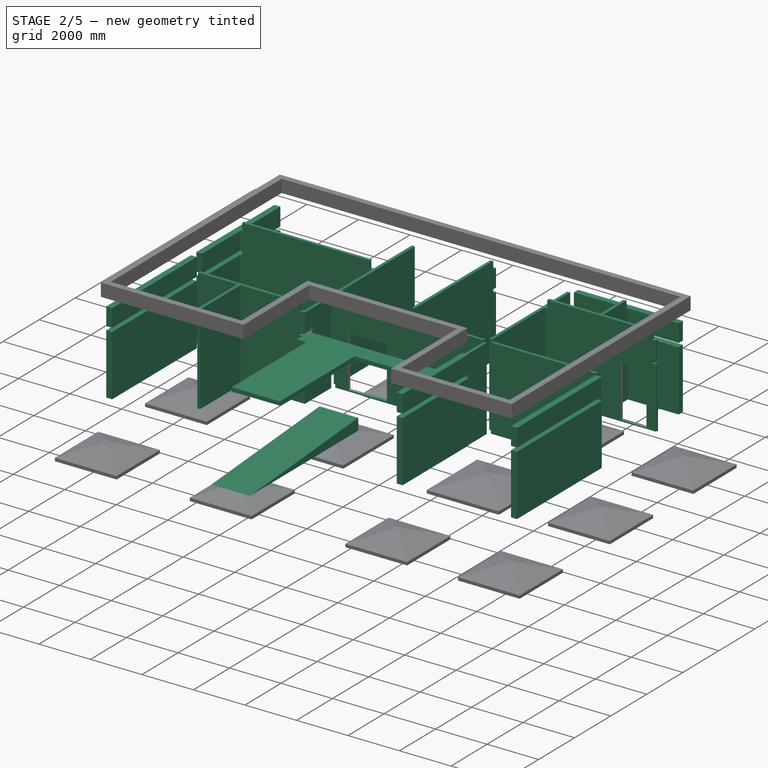
[diagram: stage 2 of 5 — iso view after this stage's code; geometry added in this stage tinted green]
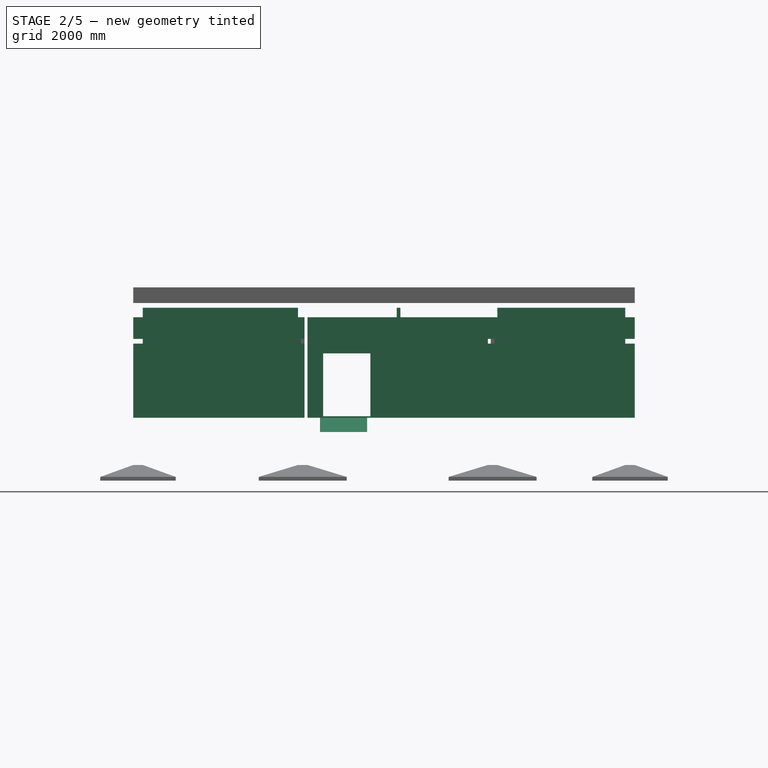
[diagram: stage 2 of 5 — front view after this stage's code; geometry added in this stage tinted green]
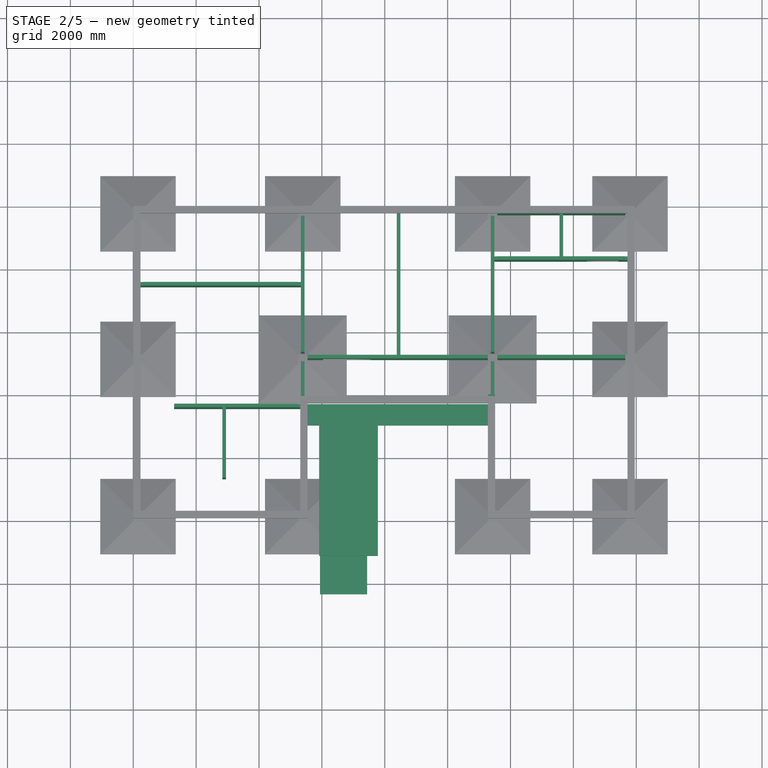
[diagram: stage 2 of 5 — top view after this stage's code; geometry added in this stage tinted green]
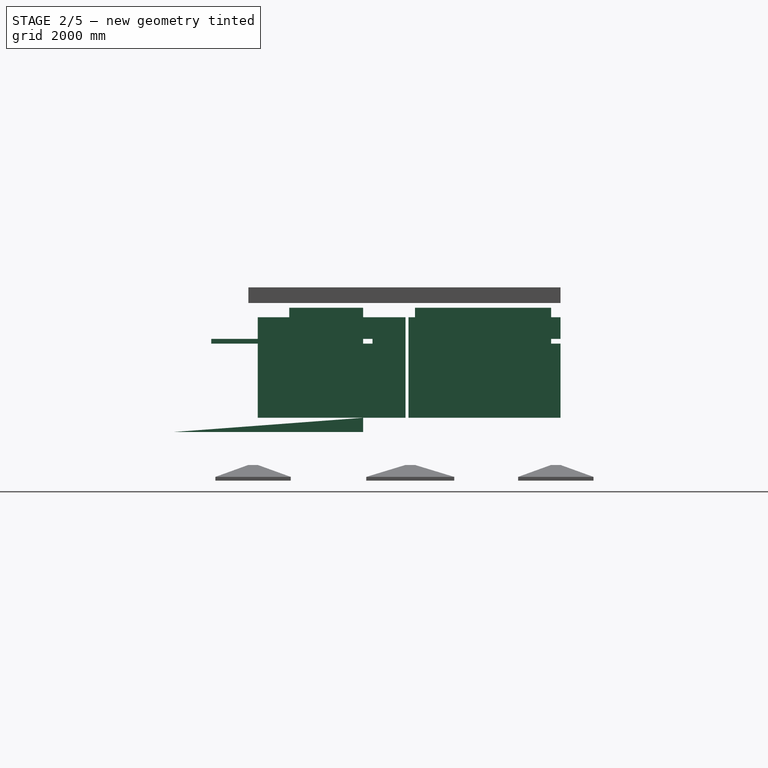
[diagram: stage 2 of 5 — right view after this stage's code; geometry added in this stage tinted green]
FEATURE [Part::FeaturePython] Structure005  label="C006"  # Arch/BIM 24 (typed FeaturePython)
  FaceMaker = 0
  Height = 5000
  HorizontalArea = 90000
  IfcData = IfcUID=0e1xj0fk522gAtdobQW9WU,+2 more (map truncated)
  IfcType = 24
  Length = 300
  Material = -> Material
  MoveBase = false
  MoveWithHost = false
  Nodes = (2) [(5.55112e-16,1.51582e-15,0),(5.55112e-16,1.51582e-15,5000)]
  NodesOffset = 0
  Normal = (0,0,0)
  PerimeterLength = 1200
  Placement = pos=(5390,5150,-1500) rot=(0,0,1;0rad)
  PredefinedType = 0
  Tag = MainColumn
  VerticalArea = 6000000
  Width = 300
FEATURE [Part::FeaturePython] Structure006  label="C007"  # Arch/BIM 24 (typed FeaturePython)
  FaceMaker = 0
  Height = 5000
  HorizontalArea = 90000
  IfcData = IfcUID=0vmOcy6Lb3MR$eWdCddtfJ,+2 more (map truncated)
  IfcType = 24
  Length = 300
  Material = -> Material
  MoveBase = false
  MoveWithHost = false
  Nodes = (2) [(5.55112e-16,1.51582e-15,0),(5.55112e-16,1.51582e-15,5000)]
  NodesOffset = 0
  Normal = (0,0,0)
  PerimeterLength = 1200
  Placement = pos=(11430,5150,-1500) rot=(0,0,1;0rad)
  PredefinedType = 0
  Tag = MainColumn
  VerticalArea = 6000000
  Width = 300
FEATURE [Part::FeaturePython] Structure007  label="C008"  # Arch/BIM 24 (typed FeaturePython)
  FaceMaker = 0
  Height = 5000
  HorizontalArea = 90000
  IfcData = IfcUID=087WrWsTv19OWhBUrYYNzf,+2 more (map truncated)
  IfcType = 24
  Length = 300
  Material = -> Material
  MoveBase = false
  MoveWithHost = false
  Nodes = (2) [(5.55112e-16,1.51582e-15,0),(5.55112e-16,1.51582e-15,5000)]
  NodesOffset = 0
  Normal = (0,0,0)
  PerimeterLength = 1200
  Placement = pos=(15800,5150,-1500) rot=(0,0,1;0rad)
  PredefinedType = 0
  Tag = MainColumn
  VerticalArea = 6000000
  Width = 300
FEATURE [Part::FeaturePython] Structure009  label="C010"  # Arch/BIM 24 (typed FeaturePython)
  FaceMaker = 0
  Height = 5000
  HorizontalArea = 90000
  IfcData = IfcUID=19FEiLFFzCWwFLdoHSNORm,+2 more (map truncated)
  IfcType = 24
  Length = 300
  Material = -> Material
  MoveBase = false
  MoveWithHost = false
  Nodes = (2) [(5.55112e-16,1.51582e-15,0),(5.55112e-16,1.51582e-15,5000)]
  NodesOffset = 0
  Normal = (0,0,0)
  PerimeterLength = 1200
  Placement = pos=(5390,9780,-1500) rot=(0,0,1;0rad)
  PredefinedType = 0
  Tag = MainColumn
  VerticalArea = 6000000
  Width = 300
FEATURE [Part::FeaturePython] Structure010  label="C011"  # Arch/BIM 24 (typed FeaturePython)
  FaceMaker = 0
  Height = 5000
  HorizontalArea = 90000
  IfcData = IfcUID=1sU7xLurvC$wLmqRnOk3OG,+2 more (map truncated)
  IfcType = 24
  Length = 300
  Material = -> Material
  MoveBase = false
  MoveWithHost = false
  Nodes = (2) [(5.55112e-16,1.51582e-15,0),(5.55112e-16,1.51582e-15,5000)]
  NodesOffset = 0
  Normal = (0,0,0)
  PerimeterLength = 1200
  Placement = pos=(11430,9780,-1500) rot=(0,0,1;0rad)
  PredefinedType = 0
  Tag = MainColumn
  VerticalArea = 6000000
  Width = 300
FEATURE [Part::FeaturePython] Structure029  label="B102"  # Arch/BIM 7 (typed FeaturePython)
  FaceMaker = 0
  Height = 300
  HorizontalArea = 1.41e+06
  IfcData = IfcUID=0jZjxhYcrAxu1$8xtpmGLn,+2 more (map truncated)
  IfcType = 7
  Length = 4700
  Material = -> Material
  MoveBase = false
  MoveWithHost = false
  Nodes = (2) [(1.2326e-31,-1.51582e-15,5.55112e-16),(1.2326e-31,-1.51582e-15,4700)]
  NodesOffset = 0
  Normal = (0,0,0)
  PerimeterLength = 10000
  Placement = pos=(5390,300,3350) rot=(0,0,1;1.5708rad)
  PredefinedType = 0
  Tag = RoofBeam
  VerticalArea = 3000000
  Width = 300
FEATURE [Part::FeaturePython] Structure030  label="B103"  # Arch/BIM 7 (typed FeaturePython)
  FaceMaker = 0
  Height = 300
  HorizontalArea = 1.722e+06
  IfcData = IfcUID=3P00ZggMvD_Rb2srvlo6J3,+2 more (map truncated)
  IfcType = 7
  Length = 5740
  Material = -> Material
  MoveBase = false
  MoveWithHost = false
  Nodes = (2) [(1.2326e-31,-1.51582e-15,5.55112e-16),(1.2326e-31,-1.51582e-15,5740)]
  NodesOffset = 0
  Normal = (0,0,0)
  PerimeterLength = 12080
  Placement = pos=(5540,5150,3350) rot=(0,0,1;0rad)
  PredefinedType = 0
  Tag = RoofBeam
  VerticalArea = 3624000
  Width = 300
FEATURE [Part::FeaturePython] Structure031  label="B104"  # Arch/BIM 7 (typed FeaturePython)
  FaceMaker = 0
  Height = 300
  HorizontalArea = 1.41e+06
  IfcData = IfcUID=1RrkA2d2P0Uf4wevZIInFn,+2 more (map truncated)
  IfcType = 7
  Length = 4700
  Material = -> Material
  MoveBase = false
  MoveWithHost = false
  Nodes = (2) [(1.2326e-31,-1.51582e-15,5.55112e-16),(1.2326e-31,-1.51582e-15,4700)]
  NodesOffset = 0
  Normal = (0,0,0)
  PerimeterLength = 10000
  Placement = pos=(11430,5000,3350) rot=(0,0,-1;1.5708rad)
  PredefinedType = 0
  Tag = RoofBeam
  VerticalArea = 3000000
  Width = 300
FEATURE [Part::FeaturePython] Structure034  label="B107"  # Arch/BIM 7 (typed FeaturePython)
  FaceMaker = 0
  Height = 300
  HorizontalArea = 1.299e+06
  IfcData = IfcUID=2kD2r2rHnDrhJQHHYXML8F,+2 more (map truncated)
  IfcType = 7
  Length = 4330
  Material = -> Material
  MoveBase = false
  MoveWithHost = false
  Nodes = (2) [(1.2326e-31,-1.51582e-15,5.55112e-16),(1.2326e-31,-1.51582e-15,4330)]
  NodesOffset = 0
  Normal = (0,0,0)
  PerimeterLength = 9260
  Placement = pos=(15800,5300,3350) rot=(0,0,1;1.5708rad)
  PredefinedType = 0
  Tag = RoofBeam
  VerticalArea = 2.778e+06
  Width = 300
FEATURE [Part::FeaturePython] Structure035  label="B108"  # Arch/BIM 7 (typed FeaturePython)
  FaceMaker = 0
  Height = 300
  HorizontalArea = 1.221e+06
  IfcData = IfcUID=0HBAcwwFL9BfhTFOQm_0_v,+2 more (map truncated)
  IfcType = 7
  Length = 4070
  Material = -> Material
  MoveBase = false
  MoveWithHost = false
  Nodes = (2) [(1.2326e-31,-1.51582e-15,5.55112e-16),(1.2326e-31,-1.51582e-15,4070)]
  NodesOffset = 0
  Normal = (0,0,0)
  PerimeterLength = 8740
  Placement = pos=(15650,9780,3350) rot=(0,0,1;3.14159rad)
  PredefinedType = 0
  Tag = RoofBeam
  VerticalArea = 2.622e+06
  Width = 300
FEATURE [Part::FeaturePython] Structure036  label="B109"  # Arch/BIM 7 (typed FeaturePython)
  FaceMaker = 0
  Height = 300
  HorizontalArea = 1.722e+06
  IfcData = IfcUID=2hcQ$JzFbAHex9o2qXS0XD,+2 more (map truncated)
  IfcType = 7
  Length = 5740
  Material = -> Material
  MoveBase = false
  MoveWithHost = false
  Nodes = (2) [(1.2326e-31,-1.51582e-15,5.55112e-16),(1.2326e-31,-1.51582e-15,5740)]
  NodesOffset = 0
  Normal = (0,0,0)
  PerimeterLength = 12080
  Placement = pos=(11280,9780,3350) rot=(0,0,1;3.14159rad)
  PredefinedType = 0
  Tag = RoofBeam
  VerticalArea = 3624000
  Width = 300
FEATURE [Part::FeaturePython] Structure038  label="B111"  # Arch/BIM 7 (typed FeaturePython)
  FaceMaker = 0
  Height = 300
  HorizontalArea = 1.299e+06
  IfcData = IfcUID=0Jt3HB3kPEYvg1Hsle9OVr,+2 more (map truncated)
  IfcType = 7
  Length = 4330
  Material = -> Material
  MoveBase = false
  MoveWithHost = false
  Nodes = (2) [(1.2326e-31,-1.51582e-15,5.55112e-16),(1.2326e-31,-1.51582e-15,4330)]
  NodesOffset = 0
  Normal = (0,0,0)
  PerimeterLength = 9260
  Placement = pos=(150,9630,3350) rot=(0,0,-1;1.5708rad)
  PredefinedType = 0
  Tag = RoofBeam
  VerticalArea = 2.778e+06
  Width = 300
FEATURE [Part::FeaturePython] Structure041  label="B114"  # Arch/BIM 7 (typed FeaturePython)
  FaceMaker = 0
  Height = 300
  HorizontalArea = 1.299e+06
  IfcData = IfcUID=0TT7eXFAHBMBDn7_QOjYQh,+2 more (map truncated)
  IfcType = 7
  Length = 4330
  Material = -> Material
  MoveBase = false
  MoveWithHost = false
  Nodes = (2) [(1.2326e-31,-1.51582e-15,5.55112e-16),(1.2326e-31,-1.51582e-15,4330)]
  NodesOffset = 0
  Normal = (0,0,0)
  PerimeterLength = 9260
  Placement = pos=(5390,9630,3350) rot=(0,0,-1;1.5708rad)
  PredefinedType = 0
  Tag = RoofBeam
  VerticalArea = 2.778e+06
  Width = 300
FEATURE [Part::FeaturePython] Structure042  label="B115"  # Arch/BIM 7 (typed FeaturePython)
  FaceMaker = 0
  Height = 300
  HorizontalArea = 1.299e+06
  IfcData = IfcUID=1s$V0cw1P89xbMo$aSzw$q,+2 more (map truncated)
  IfcType = 7
  Length = 4330
  Material = -> Material
  MoveBase = false
  MoveWithHost = false
  Nodes = (2) [(1.2326e-31,-1.51582e-15,5.55112e-16),(1.2326e-31,-1.51582e-15,4330)]
  NodesOffset = 0
  Normal = (0,0,0)
  PerimeterLength = 9260
  Placement = pos=(11430,9630,3350) rot=(0,0,-1;1.5708rad)
  PredefinedType = 0
  Tag = RoofBeam
  VerticalArea = 2.778e+06
  Width = 300
FEATURE [Part::FeaturePython] Structure043  label="B116"  # Arch/BIM 7 (typed FeaturePython)
  FaceMaker = 0
  Height = 300
  HorizontalArea = 1.221e+06
  IfcData = IfcUID=2rXbw$CbX6IhQvw70gj5Uq,+2 more (map truncated)
  IfcType = 7
  Length = 4070
  Material = -> Material
  MoveBase = false
  MoveWithHost = false
  Nodes = (2) [(1.2326e-31,-1.51582e-15,5.55112e-16),(1.2326e-31,-1.51582e-15,4070)]
  NodesOffset = 0
  Normal = (0,0,0)
  PerimeterLength = 8740
  Placement = pos=(15650,5150,3350) rot=(0,0,1;3.14159rad)
  PredefinedType = 0
  Tag = RoofBeam
  VerticalArea = 2.622e+06
  Width = 300
FEATURE [Part::FeaturePython] Structure048  label="BL003"  # Arch/BIM 7 (typed FeaturePython)
  FaceMaker = 0
  Height = 150
  HorizontalArea = 1.41e+06
  IfcData = IfcUID=1buFuNJwPBTvz$5KGdvSQt,+2 more (map truncated)
  IfcType = 7
  Length = 4700
  Material = -> Material
  MoveBase = false
  MoveWithHost = false
  Nodes = (2) [(6.16298e-32,-1.51582e-15,2.77556e-16),(6.16298e-32,-1.51582e-15,4700)]
  NodesOffset = 0
  Normal = (0,0,0)
  PerimeterLength = 10000
  Placement = pos=(15800,300,2435) rot=(0,0,1;1.5708rad)
  PredefinedType = 3
  Tag = LintelBeam
  VerticalArea = 1.5e+06
  Width = 300
FEATURE [Part::FeaturePython] Structure049  label="BL004"  # Arch/BIM 7 (typed FeaturePython)
  FaceMaker = 0
  Height = 150
  HorizontalArea = 1.299e+06
  IfcData = IfcUID=1jDGUEr$D3fvP4J36OiVo_,+2 more (map truncated)
  IfcType = 7
  Length = 4330
  Material = -> Material
  MoveBase = false
  MoveWithHost = false
  Nodes = (2) [(6.16298e-32,-1.51582e-15,2.77556e-16),(6.16298e-32,-1.51582e-15,4330)]
  NodesOffset = 0
  Normal = (0,0,0)
  PerimeterLength = 9260
  Placement = pos=(15800,5300,2435) rot=(0,0,1;1.5708rad)
  PredefinedType = 3
  Tag = LintelBeam
  VerticalArea = 1389000
  Width = 300
FEATURE [Part::FeaturePython] Structure050  label="BL005"  # Arch/BIM 7 (typed FeaturePython)
  FaceMaker = 0
  Height = 150
  HorizontalArea = 1.221e+06
  IfcData = IfcUID=3QM1scwiv2s88bUJMVvsyY,+2 more (map truncated)
  IfcType = 7
  Length = 4070
  Material = -> Material
  MoveBase = false
  MoveWithHost = false
  Nodes = (2) [(6.16298e-32,-1.51582e-15,2.77556e-16),(6.16298e-32,-1.51582e-15,4070)]
  NodesOffset = 0
  Normal = (0,0,0)
  PerimeterLength = 8740
  Placement = pos=(15650,9780,2435) rot=(0,0,1;3.14159rad)
  PredefinedType = 3
  Tag = LintelBeam
  VerticalArea = 1.311e+06
  Width = 300
FEATURE [Part::FeaturePython] Structure051  label="BL006"  # Arch/BIM 7 (typed FeaturePython)
  FaceMaker = 0
  Height = 150
  HorizontalArea = 1.722e+06
  IfcData = IfcUID=18MBPuoXbAhBu$W6MtE_n0,+2 more (map truncated)
  IfcType = 7
  Length = 5740
  Material = -> Material
  MoveBase = false
  MoveWithHost = false
  Nodes = (2) [(6.16298e-32,-1.51582e-15,2.77556e-16),(6.16298e-32,-1.51582e-15,5740)]
  NodesOffset = 0
  Normal = (0,0,0)
  PerimeterLength = 12080
  Placement = pos=(11280,9780,2435) rot=(0,0,1;3.14159rad)
  PredefinedType = 3
  Tag = LintelBeam
  VerticalArea = 1.812e+06
  Width = 300
FEATURE [Part::FeaturePython] Structure053  label="BL008"  # Arch/BIM 7 (typed FeaturePython)
  FaceMaker = 0
  Height = 150
  HorizontalArea = 1.299e+06
  IfcData = IfcUID=0VLmkA1F9AJhCwRJSUpmFd,+2 more (map truncated)
  IfcType = 7
  Length = 4330
  Material = -> Material
  MoveBase = false
  MoveWithHost = false
  Nodes = (2) [(6.16298e-32,-1.51582e-15,2.77556e-16),(6.16298e-32,-1.51582e-15,4330)]
  NodesOffset = 0
  Normal = (0,0,0)
  PerimeterLength = 9260
  Placement = pos=(150,9630,2435) rot=(0,0,-1;1.5708rad)
  PredefinedType = 3
  Tag = LintelBeam
  VerticalArea = 1389000
  Width = 300
FEATURE [Part::FeaturePython] Structure054  label="BL009"  # Arch/BIM 7 (typed FeaturePython)
  FaceMaker = 0
  Height = 150
  HorizontalArea = 1.41e+06
  IfcData = IfcUID=0uxjtJjx10vQzqxgh$pQ2y,+2 more (map truncated)
  IfcType = 7
  Length = 4700
  Material = -> Material
  MoveBase = false
  MoveWithHost = false
  Nodes = (2) [(6.16298e-32,-1.51582e-15,2.77556e-16),(6.16298e-32,-1.51582e-15,4700)]
  NodesOffset = 0
  Normal = (0,0,0)
  PerimeterLength = 10000
  Placement = pos=(150,5000,2435) rot=(0,0,-1;1.5708rad)
  PredefinedType = 3
  Tag = LintelBeam
  VerticalArea = 1.5e+06
  Width = 300
FEATURE [Part::FeaturePython] Structure055  label="BL010"  # Arch/BIM 7 (typed FeaturePython)
  FaceMaker = 0
  Height = 150
  HorizontalArea = 1.005e+06
  IfcData = IfcUID=1vMLdgOPfBEf0j9kRCz2WW,+2 more (map truncated)
  IfcType = 7
  Length = 3350
  Material = -> Material
  MoveBase = false
  MoveWithHost = false
  Nodes = (2) [(6.16298e-32,-1.51582e-15,2.77556e-16),(6.16298e-32,-1.51582e-15,3350)]
  NodesOffset = 0
  Normal = (0,0,0)
  PerimeterLength = 7300
  Placement = pos=(5390,300,2435) rot=(0,0,1;1.5708rad)
  PredefinedType = 3
  Tag = LintelBeam
  VerticalArea = 1.095e+06
  Width = 300
FEATURE [Part::FeaturePython] Structure056  label="BL011"  # Arch/BIM 7 (typed FeaturePython)
  FaceMaker = 0
  Height = 150
  HorizontalArea = 1.005e+06
  IfcData = IfcUID=0S7v0cW3n9zv9sehygqIl7,+2 more (map truncated)
  IfcType = 7
  Length = 3350
  Material = -> Material
  MoveBase = false
  MoveWithHost = false
  Nodes = (2) [(6.16298e-32,-1.51582e-15,2.77556e-16),(6.16298e-32,-1.51582e-15,3350)]
  NodesOffset = 0
  Normal = (0,0,0)
  PerimeterLength = 7300
  Placement = pos=(11430,300,2435) rot=(0,0,1;1.5708rad)
  PredefinedType = 3
  Tag = LintelBeam
  VerticalArea = 1.095e+06
  Width = 300
FEATURE [Part::FeaturePython] Structure001  label="C002"  # Arch/BIM 24 (typed FeaturePython)
  FaceMaker = 0
  Height = 5000
  HorizontalArea = 90000
  IfcData = IfcUID=2nTSQfP357fPcX7VKl91nF,+2 more (map truncated)
  IfcType = 24
  Length = 300
  Material = -> Material
  MoveBase = false
  MoveWithHost = false
  Nodes = (2) [(5.55112e-16,1.51582e-15,0),(5.55112e-16,1.51582e-15,5000)]
  NodesOffset = 0
  Normal = (0,0,0)
  PerimeterLength = 1200
  Placement = pos=(5390,150,-1500) rot=(0,0,1;0rad)
  PredefinedType = 0
  Tag = MainColumn
  VerticalArea = 6000000
  Width = 300
FEATURE [Part::FeaturePython] Structure119  label="Ramp"  # Arch/BIM 108 (typed FeaturePython)
  Base = -> Sketch052
  FaceMaker = 0
  Height = 1500
  HorizontalArea = 0
  IfcData = IfcUID=24Yg8xy$n6KxfLENMuftgK,+2 more (map truncated)
  IfcType = 108
  Length = 0
  Material = -> Material
  MoveBase = false
  MoveWithHost = false
  Nodes = (2) [(5540,1650,-300),(5540,1650,1200)]
  NodesOffset = 0
  Normal = (0,0,0)
  PerimeterLength = 13500
  Placement = pos=(400,0,0) rot=(0,0,1;0rad)
  PredefinedType = 0
  VerticalArea = 3375000
  Width = 300
FEATURE [Sketcher::SketchObject] Sketch054
  ExternalGeometry = -> [Structure001]
  Placement = pos=(5390,0,1000) rot=(1,0,0;1.5708rad)
  sketch-geometry (4):
    g0: LineSegment StartX=-80 StartY=1360 StartZ=0 EndX=-80 EndY=1860 EndZ=0
    g1: LineSegment StartX=-80 StartY=1860 StartZ=0 EndX=1120 EndY=1560 EndZ=0
    g2: LineSegment StartX=1120 StartY=1560 StartZ=0 EndX=1120 EndY=1360 EndZ=0
    g3: LineSegment StartX=1120 StartY=1360 StartZ=0 EndX=-80 EndY=1360 EndZ=0
  constraints (12):
    c: Vertical(g0)
    c: Coincident(g0,g1)
    c: Coincident(g1,g2)
    c: Coincident(g2,g3)
    c: Coincident(g3,g0)
    c: Horizontal(g3)
    c: Vertical(g2)
    c: DistanceY(g2,g2) = 200
    c: DistanceX(g3,g3) = 1200
    c: DistanceY(g0,g0) = 500
    c: DistanceY(g-3,g0) = 3860
    c: DistanceX(g-3,g0) = -230
FEATURE [Part::FeaturePython] Structure121  label="Cantilever Beam"  # Arch/BIM 7 (typed FeaturePython)
  Base = -> Sketch054
  FaceMaker = 0
  Height = 260
  HorizontalArea = 0
  IfcData = IfcUID=3lVKRYntH4rvVg$ixQQYMQ,+2 more (map truncated)
  IfcType = 7
  Length = 0
  Material = -> Material
  MoveBase = false
  MoveWithHost = false
  Nodes = (2) [(5824.29,-2.22045e-13,2545.71),(5824.29,-1.93179e-13,2285.71)]
  NodesOffset = 0
  Normal = (0,0,0)
  PerimeterLength = 2660
  Placement = pos=(0,430,0) rot=(0,0,1;0rad)
  PredefinedType = 0
  Subtractions = -> [Structure055]
  Tag = Cantilever
  VerticalArea = 1022000
  Width = 300
FEATURE [Part::FeaturePython] Wall002  label="W003"  # Arch/BIM 166 (typed FeaturePython)
  Align = 1
  Area = 15040000
  Base = -> WallTrace003
  BlockHeight = 76
  BlockLength = 228
  CountBroken = 290
  CountEntire = 316
  Face = 0
  Height = 3200
  HorizontalArea = 0
  IfcData = IfcUID=2MccvPPwf32u1LM8zJLOkZ,+2 more (map truncated)
  IfcType = 166
  Joint = 10
  Length = 4700
  MakeBlocks = false
  Material = -> Material002
  MoveBase = false
  MoveWithHost = false
  Normal = (0,0,1)
  OffsetFirst = 114
  OffsetSecond = 0
  PerimeterLength = 0
  PredefinedType = 0
  Subtractions = -> [Structure048]
  VerticalArea = 0
  Width = 230
FEATURE [Part::FeaturePython] Wall007  label="W008"  # Arch/BIM 166 (typed FeaturePython)
  Align = 1
  Area = 13856000
  Base = -> WallTrace008
  BlockHeight = 76
  BlockLength = 228
  CountBroken = 153
  CountEntire = 452
  Face = 0
  Height = 3200
  HorizontalArea = 1.9918e+06
  IfcData = IfcUID=3rSJteeYz4KvHn7D_3AGMp,+2 more (map truncated)
  IfcType = 166
  Joint = 10
  Length = 4330
  MakeBlocks = false
  Material = -> Material002
  MoveBase = false
  MoveWithHost = false
  Normal = (0,0,1)
  OffsetFirst = 114
  OffsetSecond = 0
  PerimeterLength = 0
  PredefinedType = 0
  Subtractions = -> [Structure053]
  VerticalArea = 2.38876e+07
  Width = 230
FEATURE [Part::FeaturePython] Wall009  label="W010"  # Arch/BIM 166 (typed FeaturePython)
  Align = 1
  Area = 11680000
  Base = -> WallTrace012
  BlockHeight = 76
  BlockLength = 228
  CountBroken = 122
  CountEntire = 470
  Face = 0
  Height = 3200
  HorizontalArea = 1679000
  IfcData = IfcUID=1ksKarJwr3if1ua0A02gqY,+2 more (map truncated)
  IfcType = 166
  Joint = 10
  Length = 3650
  MakeBlocks = false
  Material = -> Material002
  MoveBase = false
  MoveWithHost = false
  Normal = (0,0,1)
  OffsetFirst = 114
  OffsetSecond = 0
  PerimeterLength = 0
  PredefinedType = 0
  Subtractions = -> [Structure055,Structure057,Structure121]
  VerticalArea = 2.36487e+07
  Width = 230
FEATURE [Part::FeaturePython] Wall011  label="W011"  # Arch/BIM 166 (typed FeaturePython)
  Align = 1
  Area = 11680000
  Base = -> WallTrace014
  BlockHeight = 76
  BlockLength = 228
  CountBroken = 116
  CountEntire = 476
  Face = 0
  Height = 3200
  HorizontalArea = 1.679e+06
  IfcData = IfcUID=3FvVaLwef90fDN$sGXz$KF,+2 more (map truncated)
  IfcType = 166
  Joint = 10
  Length = 3650
  MakeBlocks = false
  Material = -> Material002
  MoveBase = false
  MoveWithHost = false
  Normal = (0,0,1)
  OffsetFirst = 114
  OffsetSecond = 0
  PerimeterLength = 0
  PredefinedType = 0
  Subtractions = -> [Structure056,Structure057]
  VerticalArea = 2.3668e+07
  Width = 230
FEATURE [Part::FeaturePython] Wall004  label="W005"  # Arch/BIM 166 (typed FeaturePython)
  Align = 1
  Area = 13024000
  Base = -> WallTrace005
  BlockHeight = 76
  BlockLength = 228
  CountBroken = 178
  CountEntire = 446
  Face = 0
  Height = 3200
  HorizontalArea = 0
  IfcData = IfcUID=3w4By6$qX4sO9zr26qYiW4,+2 more (map truncated)
  IfcType = 166
  Joint = 10
  Length = 4070
  MakeBlocks = false
  Material = -> Material002
  MoveBase = false
  MoveWithHost = false
  Normal = (0,0,1)
  OffsetFirst = 114
  OffsetSecond = 0
  PerimeterLength = 0
  PredefinedType = 0
  Subtractions = -> [Structure050]
  VerticalArea = 0
  Width = 230
FEATURE [Part::FeaturePython] Wall020  label="W009"  # Arch/BIM 166 (typed FeaturePython)
  Align = 0
  Area = 15040000
  Base = -> WallTrace025
  BlockHeight = 76
  BlockLength = 228
  CountBroken = 156
  CountEntire = 511
  Face = 0
  Height = 3200
  HorizontalArea = 2.162e+06
  IfcData = IfcUID=1jTVARHb1Cj9Dwtbb90rKD,+2 more (map truncated)
  IfcType = 166
  Joint = 10
  Length = 4700
  MakeBlocks = false
  Material = -> Material002
  MoveBase = false
  MoveWithHost = false
  Normal = (0,0,1)
  OffsetFirst = 114
  OffsetSecond = 0
  PerimeterLength = 0
  PredefinedType = 0
  Subtractions = -> [Structure054]
  VerticalArea = 2.61446e+07
  Width = 230
FEATURE [Sketcher::SketchObject] Sketch049
  ExternalGeometry = -> [Structure015,Structure017,Structure012,Structure020,Wall009,Wall011]
  Placement = pos=(150,7465,0) rot=(0,0,1;0rad)
  sketch-geometry (8):
    g0: LineSegment StartX=150 StartY=2165 StartZ=0 EndX=15500 EndY=2165 EndZ=0
    g1: LineSegment StartX=15500 StartY=2165 StartZ=0 EndX=15500 EndY=-7165 EndZ=0
    g2: LineSegment StartX=15500 StartY=-7165 StartZ=0 EndX=11430 EndY=-7165 EndZ=0
    g3: LineSegment StartX=11430 StartY=-7165 StartZ=0 EndX=11430 EndY=-3457.5 EndZ=0
    g4: LineSegment StartX=11430 StartY=-3457.5 StartZ=0 EndX=5090 EndY=-3457.5 EndZ=0
    g5: LineSegment StartX=5090 StartY=-3457.5 StartZ=0 EndX=5090 EndY=-7165 EndZ=0
    g6: LineSegment StartX=5090 StartY=-7165 StartZ=0 EndX=150 EndY=-7165 EndZ=0
    g7: LineSegment StartX=150 StartY=-7165 StartZ=0 EndX=150 EndY=2165 EndZ=0
  constraints (18):
    c: Coincident(g-3,g0)
    c: Coincident(g0,g-4)
    c: Coincident(g0,g1)
    c: Coincident(g1,g-6)
    c: Coincident(g1,g2)
    c: Coincident(g2,g-6)
    c: Coincident(g2,g3)
    c: Coincident(g3,g4)
    c: Coincident(g4,g5)
    c: Coincident(g5,g-5)
    c: Coincident(g5,g6)
    c: Coincident(g6,g-5)
    c: Coincident(g6,g7)
    c: Coincident(g7,g0)
    c: Horizontal(g4)
    c: Vertical(g5)
    c: DistanceX(g-8,g3) = 70
    c: DistanceY(g-7,g4) = 57.5
FEATURE [Sketcher::SketchObject] Sketch051
  ExternalGeometry = -> [Wall007,Wall020,Wall009,Wall011,Wall002,Wall004]
  Placement = pos=(13615,9815,0) rot=(0.707107,-0.707107,0;3.14159rad)
  sketch-geometry (8):
    g0: LineSegment StartX=115 StartY=-2105 StartZ=0 EndX=115 EndY=13385 EndZ=0
    g1: LineSegment StartX=115 StartY=13385 StartZ=0 EndX=9585 EndY=13385 EndZ=0
    g2: LineSegment StartX=9585 StartY=13385 StartZ=0 EndX=9585 EndY=8305 EndZ=0
    g3: LineSegment StartX=9585 StartY=8305 StartZ=0 EndX=6165 EndY=8305 EndZ=0
    g4: LineSegment StartX=6165 StartY=8305 StartZ=0 EndX=6165 EndY=2105 EndZ=0
    g5: LineSegment StartX=6165 StartY=2105 StartZ=0 EndX=9585 EndY=2105 EndZ=0
    g6: LineSegment StartX=9585 StartY=2105 StartZ=0 EndX=9585 EndY=-2105 EndZ=0
    g7: LineSegment StartX=9585 StartY=-2105 StartZ=0 EndX=115 EndY=-2105 EndZ=0
  constraints (24):
    c: Vertical(g0)
    c: Coincident(g0,g1)
    c: Horizontal(g1)
    c: Coincident(g1,g2)
    c: Vertical(g2)
    c: Coincident(g2,g3)
    c: Horizontal(g3)
    c: Coincident(g3,g4)
    c: Vertical(g4)
    c: Coincident(g4,g5)
    c: Horizontal(g5)
    c: Coincident(g5,g6)
    c: Vertical(g6)
    c: Coincident(g6,g7)
    c: Coincident(g7,g0)
    c: Horizontal(g7)
    c: DistanceX(g0,g-8) = 0
    c: DistanceY(g0,g-8) = 70
    c: DistanceX(g-6,g5) = 70
    c: DistanceY(g-6,g5) = 0
    c: DistanceX(g-6,g4) = 300
    c: DistanceY(g3,g-5) = 0
    c: DistanceX(g-5,g2) = 70
    c: DistanceY(g-4,g1) = 0
FEATURE [Sketcher::SketchObject] Sketch053
  ExternalGeometry = -> [Structure057,Wall009]
  Placement = pos=(5390,1975,2360) rot=(0,1,0;3.14159rad)
  sketch-geometry (8):
    g0: LineSegment StartX=-150 StartY=1675 StartZ=0 EndX=-5890 EndY=1675 EndZ=0
    g1: LineSegment StartX=-5890 StartY=1675 StartZ=0 EndX=-5890 EndY=995 EndZ=0
    g2: LineSegment StartX=-5890 StartY=995 StartZ=0 EndX=-2390 EndY=995 EndZ=0
    g3: LineSegment StartX=-2390 StartY=995 StartZ=0 EndX=-2390 EndY=-3155 EndZ=0
    g4: LineSegment StartX=-2390 StartY=-3155 StartZ=0 EndX=-520 EndY=-3155 EndZ=0
    g5: LineSegment StartX=-520 StartY=-3155 StartZ=0 EndX=-520 EndY=995 EndZ=0
    g6: LineSegment StartX=-520 StartY=995 StartZ=0 EndX=-150 EndY=995 EndZ=0
    g7: LineSegment StartX=-150 StartY=995 StartZ=0 EndX=-150 EndY=1675 EndZ=0
  constraints (24):
    c: Horizontal(g0)
    c: Coincident(g0,g1)
    c: Vertical(g1)
    c: Coincident(g1,g2)
    c: Horizontal(g2)
    c: Coincident(g2,g3)
    c: Vertical(g3)
    c: Coincident(g3,g4)
    c: Horizontal(g4)
    c: Coincident(g4,g5)
    c: Vertical(g5)
    c: Coincident(g5,g6)
    c: Coincident(g6,g7)
    c: Coincident(g7,g0)
    c: Vertical(g7)
    c: Equal(g7,g1)
    c: Equal(g3,g5)
    c: DistanceY(g7,g7) = 680
    c: DistanceY(g5,g5) = 4150
    c: DistanceX(g2,g2) = 3500
    c: DistanceX(g4,g4) = 1870
    c: DistanceX(g0,g0) = 5740
    c: DistanceX(g0,g-4) = 0
    c: DistanceY(g-4,g0) = 3350
FEATURE [Part::FeaturePython] Structure120  label="OuterBeamCumSlab"  # Arch/BIM 118 (typed FeaturePython)
  Base = -> Sketch053
  FaceMaker = 0
  Height = 150
  HorizontalArea = 11663700
  IfcData = IfcUID=2EOo39T3990fX3YSUNgM9o,+2 more (map truncated)
  IfcType = 118
  Length = 0
  Material = -> Material
  MoveBase = false
  MoveWithHost = false
  Nodes = (8) [(5540,3650,2360),(11280,3650,2360),(11280,2970,2360),(7780,2970,2360),(7780,-1180,2360),(5910,-1180,2360),(5910,2970,2360),(5540,2970,2360)]
  NodesOffset = 0
  Normal = (0,0,0)
  PerimeterLength = 21140
  Placement = pos=(9.09e-13,9.09e-13,150) rot=(0,0,1;0rad)
  PredefinedType = 4
  Tag = Archi
  VerticalArea = 3171000
  Width = 300
FEATURE [Part::FeaturePython] Wall023  label="Partition_walls"  # Arch/BIM 166 (typed FeaturePython)
  Align = 2
  Area = 157176250
  Base = -> Sketch056
  BlockHeight = 0
  BlockLength = 0
  CountBroken = 0
  CountEntire = 0
  Face = 0
  Height = 3500
  HorizontalArea = 0
  IfcData = IfcUID=0AozOKA5v99uvgwsZASWNS,+2 more (map truncated)
  IfcType = 166
  Joint = 0
  Length = 44907.5
  MakeBlocks = false
  Material = -> Material002
  MoveBase = false
  MoveWithHost = false
  Normal = (0,0,0)
  OffsetFirst = 0
  OffsetSecond = 0
  PerimeterLength = 0
  PredefinedType = 0
  Subtractions = -> [Structure029,Structure055,Structure005,Structure041,Structure038,Structure053,Structure009,Structure051,Structure036,Structure030,Structure006,Structure035,Structure010,Structure050,Structure034,Structure049,Structure007,Structure048,Structure031,Structure043,Structure042,Structure057,Structure056,Window030,Window034]
  VerticalArea = 0
  Width = 115
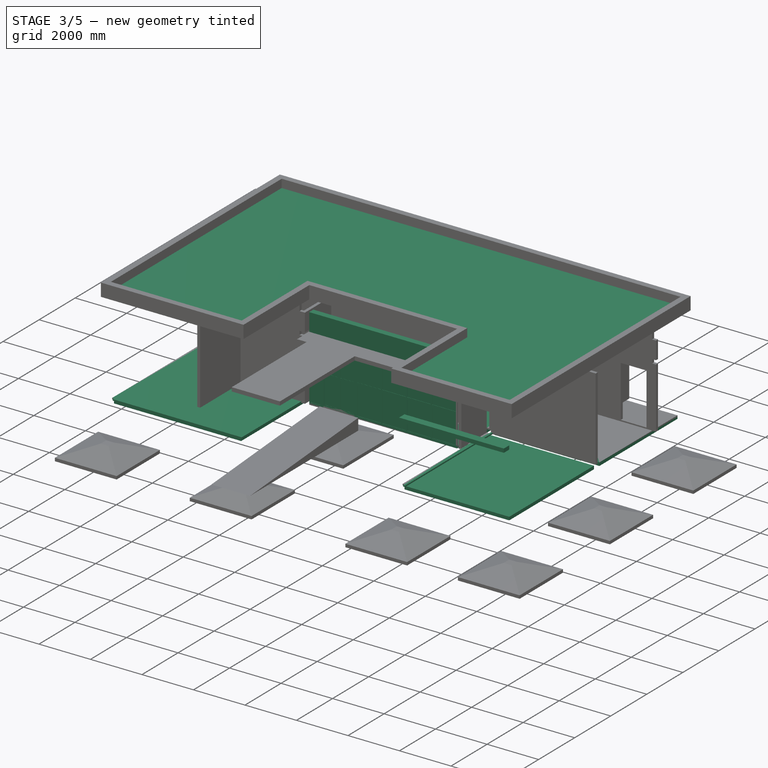
[diagram: stage 3 of 5 — iso view after this stage's code; geometry added in this stage tinted green]
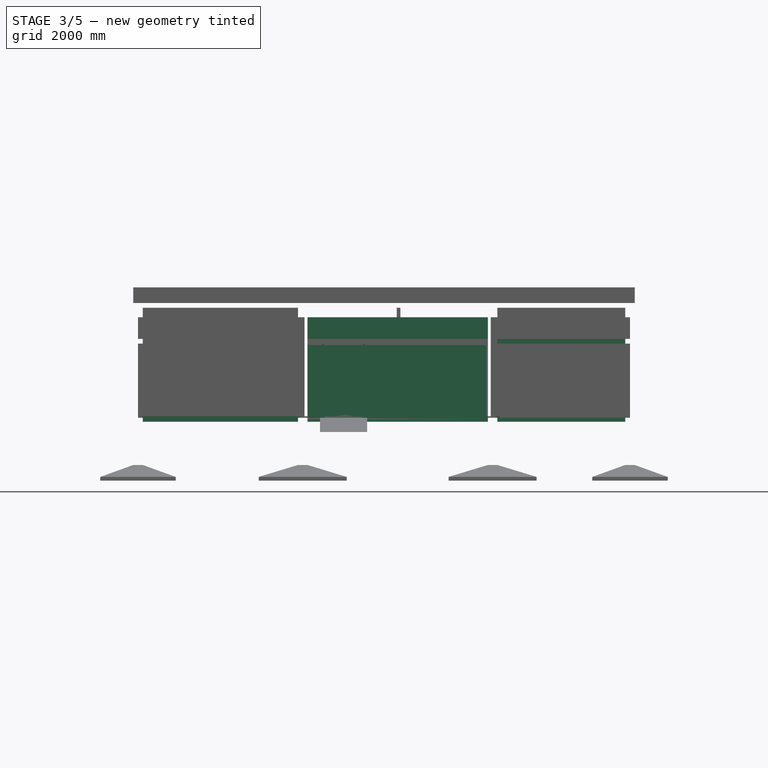
[diagram: stage 3 of 5 — front view after this stage's code; geometry added in this stage tinted green]
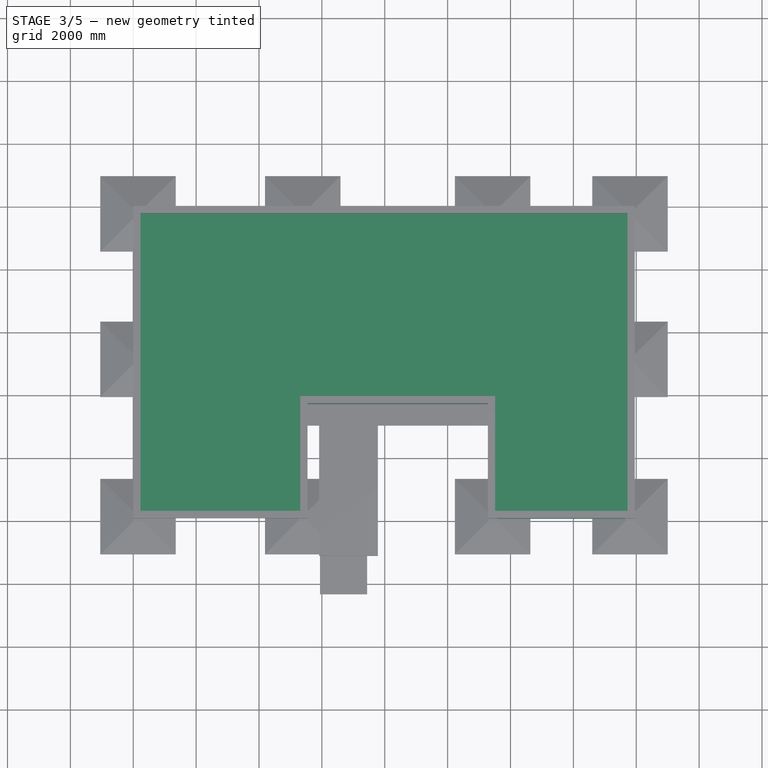
[diagram: stage 3 of 5 — top view after this stage's code; geometry added in this stage tinted green]
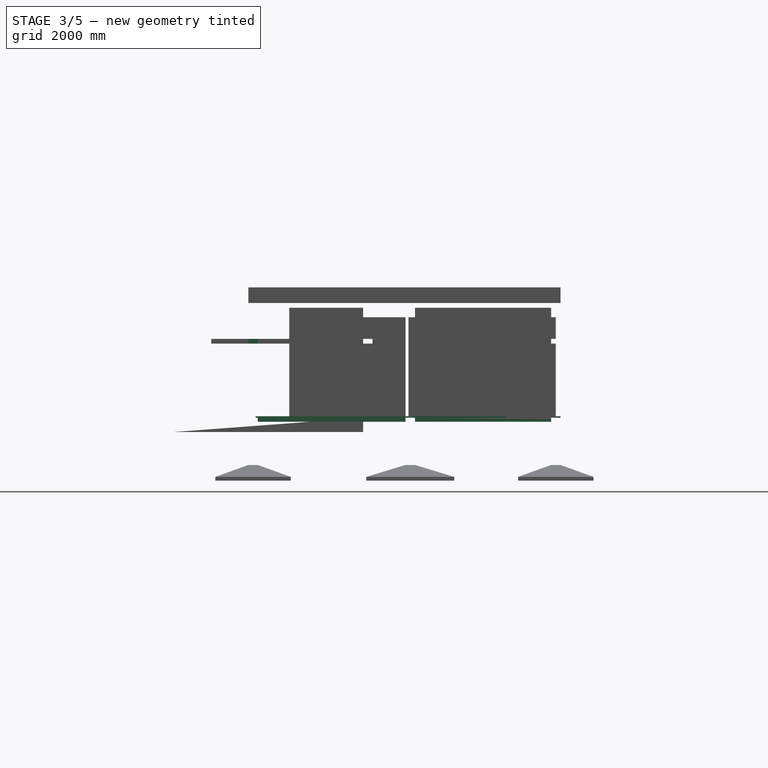
[diagram: stage 3 of 5 — right view after this stage's code; geometry added in this stage tinted green]
FEATURE [App::MaterialObjectPython] Material  label="Concrete"  # material (typed FeaturePython)
  Description = M25
  Material = AuthorAndLicense=Concrete-Generic,CardName=Concrete-Generic,Color=(0.5137254901960784, 0.5137254901960784, 0.5137254901960784),+12 more (map truncated)
  ProductURL = https://en.wikipedia.org/wiki/Concrete
  StandardCode = IS 456
  Transparency = 0
FEATURE [Part::FeaturePython] Structure  label="C001"  # Arch/BIM 24 (typed FeaturePython)
  FaceMaker = 0
  Height = 5000
  HorizontalArea = 90000
  IfcData = IfcUID=1m_X0nFnDFh8hDn94Hsyc5,+2 more (map truncated)
  IfcType = 24
  Length = 300
  Material = -> Material
  MoveBase = false
  MoveWithHost = false
  Nodes = (2) [(5.55112e-16,1.51582e-15,0),(5.55112e-16,1.51582e-15,5000)]
  NodesOffset = 0
  Normal = (0,0,0)
  PerimeterLength = 1200
  Placement = pos=(150,150,-1500) rot=(0,0,1;0rad)
  PredefinedType = 0
  Tag = MainColumn
  VerticalArea = 6000000
  Width = 300
FEATURE [Part::FeaturePython] Structure002  label="C003"  # Arch/BIM 24 (typed FeaturePython)
  FaceMaker = 0
  Height = 5000
  HorizontalArea = 90000
  IfcData = IfcUID=3w7QIDLsb3bxg5wlayDCsQ,+2 more (map truncated)
  IfcType = 24
  Length = 300
  Material = -> Material
  MoveBase = false
  MoveWithHost = false
  Nodes = (2) [(5.55112e-16,1.51582e-15,0),(5.55112e-16,1.51582e-15,5000)]
  NodesOffset = 0
  Normal = (0,0,0)
  PerimeterLength = 1200
  Placement = pos=(11430,150,-1500) rot=(0,0,1;0rad)
  PredefinedType = 0
  Tag = MainColumn
  VerticalArea = 6000000
  Width = 300
FEATURE [Part::FeaturePython] Structure003  label="C004"  # Arch/BIM 24 (typed FeaturePython)
  FaceMaker = 0
  Height = 5000
  HorizontalArea = 90000
  IfcData = IfcUID=3lkIpvjITA5eDn9n7jCXE$,+2 more (map truncated)
  IfcType = 24
  Length = 300
  Material = -> Material
  MoveBase = false
  MoveWithHost = false
  Nodes = (2) [(5.55112e-16,1.51582e-15,0),(5.55112e-16,1.51582e-15,5000)]
  NodesOffset = 0
  Normal = (0,0,0)
  PerimeterLength = 1200
  Placement = pos=(15800,150,-1500) rot=(0,0,1;0rad)
  PredefinedType = 0
  Tag = MainColumn
  VerticalArea = 6000000
  Width = 300
FEATURE [Part::FeaturePython] Structure004  label="C005"  # Arch/BIM 24 (typed FeaturePython)
  FaceMaker = 0
  Height = 5000
  HorizontalArea = 90000
  IfcData = IfcUID=0fNj7OO3X7FeWjxRgEZT8p,+2 more (map truncated)
  IfcType = 24
  Length = 300
  Material = -> Material
  MoveBase = false
  MoveWithHost = false
  Nodes = (2) [(5.55112e-16,1.51582e-15,0),(5.55112e-16,1.51582e-15,5000)]
  NodesOffset = 0
  Normal = (0,0,0)
  PerimeterLength = 1200
  Placement = pos=(150,5150,-1500) rot=(0,0,1;0rad)
  PredefinedType = 0
  Tag = MainColumn
  VerticalArea = 6000000
  Width = 300
FEATURE [Part::FeaturePython] Structure008  label="C009"  # Arch/BIM 24 (typed FeaturePython)
  FaceMaker = 0
  Height = 5000
  HorizontalArea = 90000
  IfcData = IfcUID=2ixL7psnH8bOQLPPMpQV2L,+2 more (map truncated)
  IfcType = 24
  Length = 300
  Material = -> Material
  MoveBase = false
  MoveWithHost = false
  Nodes = (2) [(5.55112e-16,1.51582e-15,0),(5.55112e-16,1.51582e-15,5000)]
  NodesOffset = 0
  Normal = (0,0,0)
  PerimeterLength = 1200
  Placement = pos=(150,9780,-1500) rot=(0,0,1;0rad)
  PredefinedType = 0
  Tag = MainColumn
  VerticalArea = 6000000
  Width = 300
FEATURE [Part::FeaturePython] Structure011  label="C012"  # Arch/BIM 24 (typed FeaturePython)
  FaceMaker = 0
  Height = 5000
  HorizontalArea = 90000
  IfcData = IfcUID=2OUNty8YH088kKsCNHqGBU,+2 more (map truncated)
  IfcType = 24
  Length = 300
  Material = -> Material
  MoveBase = false
  MoveWithHost = false
  Nodes = (2) [(5.55112e-16,1.51582e-15,0),(5.55112e-16,1.51582e-15,5000)]
  NodesOffset = 0
  Normal = (0,0,0)
  PerimeterLength = 1200
  Placement = pos=(15800,9780,-1500) rot=(0,0,1;0rad)
  PredefinedType = 0
  Tag = MainColumn
  VerticalArea = 6000000
  Width = 300
FEATURE [Part::FeaturePython] Structure012  label="B001"  # Arch/BIM 7 (typed FeaturePython)
  FaceMaker = 0
  Height = 450
  HorizontalArea = 1.482e+06
  IfcData = IfcUID=1qs2AddGDDi81Uv3uIkJ$M,+2 more (map truncated)
  IfcType = 7
  Length = 4940
  Material = -> Material
  MoveBase = false
  MoveWithHost = false
  Nodes = (2) [(-4.93038e-32,0,-2.22045e-16),(-4.93038e-32,0,4940)]
  NodesOffset = 0
  Normal = (0,0,0)
  PerimeterLength = 10480
  Placement = pos=(300,150,-225) rot=(0,0,1;0rad)
  PredefinedType = 0
  Tag = PlinthBeam
  VerticalArea = 4716000
  Width = 300
FEATURE [Part::FeaturePython] Structure015  label="B004"  # Arch/BIM 7 (typed FeaturePython)
  FaceMaker = 0
  Height = 450
  HorizontalArea = 1.482e+06
  IfcData = IfcUID=1zzSxlcRnFzxLAy4e0VxbR,+2 more (map truncated)
  IfcType = 7
  Length = 4940
  Material = -> Material
  MoveBase = false
  MoveWithHost = false
  Nodes = (2) [(-4.93038e-32,0,-2.22045e-16),(-4.93038e-32,0,4940)]
  NodesOffset = 0
  Normal = (0,0,0)
  PerimeterLength = 10480
  Placement = pos=(300,9780,-225) rot=(0,0,1;0rad)
  PredefinedType = 0
  Tag = PlinthBeam
  VerticalArea = 4716000
  Width = 300
FEATURE [Part::FeaturePython] Structure020  label="B009"  # Arch/BIM 7 (typed FeaturePython)
  FaceMaker = 0
  Height = 450
  HorizontalArea = 1.221e+06
  IfcData = IfcUID=0j3QRqLE12vRaNSgcwHSKg,+2 more (map truncated)
  IfcType = 7
  Length = 4070
  Material = -> Material
  MoveBase = false
  MoveWithHost = false
  Nodes = (2) [(-4.93038e-32,0,-2.22045e-16),(-4.93038e-32,0,4070)]
  NodesOffset = 0
  Normal = (0,0,0)
  PerimeterLength = 8740
  Placement = pos=(15650,150,-225) rot=(0,0,1;3.14159rad)
  PredefinedType = 0
  Tag = PlinthBeam
  VerticalArea = 3.933e+06
  Width = 300
FEATURE [Part::FeaturePython] Structure021  label="B010"  # Arch/BIM 7 (typed FeaturePython)
  FaceMaker = 0
  Height = 450
  HorizontalArea = 1.41e+06
  IfcData = IfcUID=0eo3ECMEz4yOnEn2LJYkmH,+2 more (map truncated)
  IfcType = 7
  Length = 4700
  Material = -> Material
  MoveBase = false
  MoveWithHost = false
  Nodes = (2) [(-4.93038e-32,0,-2.22045e-16),(-4.93038e-32,0,4700)]
  NodesOffset = 0
  Normal = (0,0,0)
  PerimeterLength = 10000
  Placement = pos=(11430,300,-225) rot=(0,0,1;1.5708rad)
  PredefinedType = 0
  Tag = PlinthBeam
  VerticalArea = 4500000
  Width = 300
FEATURE [Part::FeaturePython] Structure024  label="B013"  # Arch/BIM 7 (typed FeaturePython)
  FaceMaker = 0
  Height = 450
  HorizontalArea = 1.482e+06
  IfcData = IfcUID=2riZ2vtyL6GxfEjAGlC8Sx,+2 more (map truncated)
  IfcType = 7
  Length = 4940
  Material = -> Material
  MoveBase = false
  MoveWithHost = false
  Nodes = (2) [(-4.93038e-32,0,-2.22045e-16),(-4.93038e-32,0,4940)]
  NodesOffset = 0
  Normal = (0,0,0)
  PerimeterLength = 10480
  Placement = pos=(300,5150,-225) rot=(0,0,1;0rad)
  PredefinedType = 0
  Tag = PlinthBeam
  VerticalArea = 4716000
  Width = 300
FEATURE [Part::FeaturePython] Structure026  label="B015"  # Arch/BIM 7 (typed FeaturePython)
  FaceMaker = 0
  Height = 450
  HorizontalArea = 1.299e+06
  IfcData = IfcUID=1zVd09HBv2UuaciIbFChvD,+2 more (map truncated)
  IfcType = 7
  Length = 4330
  Material = -> Material
  MoveBase = false
  MoveWithHost = false
  Nodes = (2) [(-4.93038e-32,0,-2.22045e-16),(-4.93038e-32,0,4330)]
  NodesOffset = 0
  Normal = (0,0,0)
  PerimeterLength = 9260
  Placement = pos=(11430,9630,-225) rot=(0,0,-1;1.5708rad)
  PredefinedType = 0
  Tag = PlinthBeam
  VerticalArea = 4.167e+06
  Width = 300
FEATURE [Part::FeaturePython] Structure027  label="B016"  # Arch/BIM 7 (typed FeaturePython)
  FaceMaker = 0
  Height = 450
  HorizontalArea = 1.221e+06
  IfcData = IfcUID=0$aVNt64r6wge39pnK5Rxy,+2 more (map truncated)
  IfcType = 7
  Length = 4070
  Material = -> Material
  MoveBase = false
  MoveWithHost = false
  Nodes = (2) [(-4.93038e-32,0,-2.22045e-16),(-4.93038e-32,0,4070)]
  NodesOffset = 0
  Normal = (0,0,0)
  PerimeterLength = 8740
  Placement = pos=(11580,5150,-225) rot=(0,0,1;0rad)
  PredefinedType = 0
  Tag = PlinthBeam
  VerticalArea = 3.933e+06
  Width = 300
FEATURE [Part::FeaturePython] Structure045  label="B017"  # Arch/BIM 7 (typed FeaturePython)
  FaceMaker = 0
  Height = 450
  HorizontalArea = 1.722e+06
  IfcData = IfcUID=0F8Fga21r0bwVCANd$Q5o6,+2 more (map truncated)
  IfcType = 7
  Length = 5740
  Material = -> Material
  MoveBase = false
  MoveWithHost = false
  Nodes = (2) [(-4.93038e-32,0,-2.22045e-16),(-4.93038e-32,0,5740)]
  NodesOffset = 0
  Normal = (0,0,0)
  PerimeterLength = 12080
  Placement = pos=(5540,5150,-225) rot=(0,0,1;0rad)
  PredefinedType = 0
  Tag = PlinthBeam
  VerticalArea = 5.436e+06
  Width = 300
FEATURE [Part::FeaturePython] Structure047  label="BL002"  # Arch/BIM 7 (typed FeaturePython)
  FaceMaker = 0
  Height = 150
  HorizontalArea = 1.221e+06
  IfcData = IfcUID=1zAQlwqor0QgIjsD5lTylX,+2 more (map truncated)
  IfcType = 7
  Length = 4070
  Material = -> Material
  MoveBase = false
  MoveWithHost = false
  Nodes = (2) [(6.16298e-32,-1.51582e-15,2.77556e-16),(6.16298e-32,-1.51582e-15,4070)]
  NodesOffset = 0
  Normal = (0,0,0)
  PerimeterLength = 8740
  Placement = pos=(11580,150,2435) rot=(0,0,1;0rad)
  PredefinedType = 3
  Tag = LintelBeam
  VerticalArea = 1.311e+06
  Width = 300
FEATURE [Sketcher::SketchObject] Sketch040
  ExternalGeometry = -> [Structure045]
  Placement = pos=(8410,3650,2435) rot=(1,0,0;1.5708rad)
  sketch-geometry (12):
    g0: LineSegment StartX=-2870 StartY=-75 StartZ=0 EndX=-2370 EndY=-75 EndZ=0
    g1: LineSegment StartX=-2370 StartY=-75 StartZ=0 EndX=-2370 EndY=-2435 EndZ=0
    g2: LineSegment StartX=-2370 StartY=-2435 StartZ=0 EndX=-2870 EndY=-2435 EndZ=0
    g3: LineSegment StartX=-2870 StartY=-2435 StartZ=0 EndX=-2870 EndY=-75 EndZ=0
    g4: LineSegment StartX=-2820 StartY=-125 StartZ=0 EndX=-2420 EndY=-125 EndZ=0
    g5: LineSegment StartX=-2420 StartY=-125 StartZ=0 EndX=-2420 EndY=-1205 EndZ=0
    g6: LineSegment StartX=-2420 StartY=-1205 StartZ=0 EndX=-2820 EndY=-1205 EndZ=0
    g7: LineSegment StartX=-2820 StartY=-1205 StartZ=0 EndX=-2820 EndY=-125 EndZ=0
    g8: LineSegment StartX=-2820 StartY=-1305 StartZ=0 EndX=-2420 EndY=-1305 EndZ=0
    g9: LineSegment StartX=-2420 StartY=-1305 StartZ=0 EndX=-2420 EndY=-2385 EndZ=0
    g10: LineSegment StartX=-2420 StartY=-2385 StartZ=0 EndX=-2820 EndY=-2385 EndZ=0
    g11: LineSegment StartX=-2820 StartY=-2385 StartZ=0 EndX=-2820 EndY=-1305 EndZ=0
  constraints (35):
    c: Coincident(g0,g1)
    c: Coincident(g1,g2)
    c: Coincident(g2,g3)
    c: Coincident(g3,g0)
    c: Horizontal(g0)
    c: Horizontal(g2)
    c: Vertical(g1)
    c: Vertical(g3)
    c: Coincident(g4,g5)
    c: Coincident(g5,g6)
    c: Coincident(g6,g7)
    c: Coincident(g7,g4)
    c: Horizontal(g4)
    c: Horizontal(g6)
    c: Vertical(g5)
    c: Vertical(g7)
    c: Coincident(g8,g9)
    c: Coincident(g9,g10)
    c: Coincident(g10,g11)
    c: Coincident(g11,g8)
    c: Horizontal(g8)
    c: Vertical(g9)
    c: Vertical(g11)
    c: Equal(g5,g9)
    c: Equal(g8,g6)
    c: DistanceX(g4,g0) = 50
    c: DistanceX(g2,g10) = 50
    c: DistanceX(g8,g5) = 0
    c: DistanceY(g4,g0) = 50
    c: DistanceY(g1,g1) = 2360
    c: DistanceY(g8,g6) = 100
    c: DistanceY(g1,g9) = 50
    c: Equal(g7,g11)
    c: Coincident(g2,g-3)
    c: DistanceX(g2,g2) = 500
FEATURE [Sketcher::SketchObject] Sketch041
  ExternalGeometry = -> [Structure045]
  Placement = pos=(8410,3650,2435) rot=(1,0,0;1.5708rad)
  sketch-geometry (24):
    g0: LineSegment StartX=-2370 StartY=-75 StartZ=0 EndX=-1070 EndY=-75 EndZ=0
    g1: LineSegment StartX=-1070 StartY=-75 StartZ=0 EndX=-1070 EndY=-2435 EndZ=0
    g2: LineSegment StartX=-1070 StartY=-2435 StartZ=0 EndX=-2370 EndY=-2435 EndZ=0
    g3: LineSegment StartX=-2370 StartY=-2435 StartZ=0 EndX=-2370 EndY=-75 EndZ=0
    g4: LineSegment StartX=-2320 StartY=-125 StartZ=0 EndX=-1120 EndY=-125 EndZ=0
    g5: LineSegment StartX=-1120 StartY=-125 StartZ=0 EndX=-1120 EndY=-2435 EndZ=0
    g6: LineSegment StartX=-1120 StartY=-2435 StartZ=0 EndX=-2320 EndY=-2435 EndZ=0
    g7: LineSegment StartX=-2320 StartY=-2435 StartZ=0 EndX=-2320 EndY=-125 EndZ=0
    g8: LineSegment StartX=-2270 StartY=-225 StartZ=0 EndX=-1770 EndY=-225 EndZ=0
    g9: LineSegment StartX=-1770 StartY=-225 StartZ=0 EndX=-1770 EndY=-1230 EndZ=0
    g10: LineSegment StartX=-1770 StartY=-1230 StartZ=0 EndX=-2270 EndY=-1230 EndZ=0
    g11: LineSegment StartX=-2270 StartY=-1230 StartZ=0 EndX=-2270 EndY=-225 EndZ=0
    g12: LineSegment StartX=-2270 StartY=-1330 StartZ=0 EndX=-1770 EndY=-1330 EndZ=0
    g13: LineSegment StartX=-1770 StartY=-1330 StartZ=0 EndX=-1770 EndY=-2335 EndZ=0
    g14: LineSegment StartX=-1770 StartY=-2335 StartZ=0 EndX=-2270 EndY=-2335 EndZ=0
    g15: LineSegment StartX=-2270 StartY=-2335 StartZ=0 EndX=-2270 EndY=-1330 EndZ=0
    g16: LineSegment StartX=-1670 StartY=-1330 StartZ=0 EndX=-1170 EndY=-1330 EndZ=0
    g17: LineSegment StartX=-1170 StartY=-1330 StartZ=0 EndX=-1170 EndY=-2335 EndZ=0
    g18: LineSegment StartX=-1170 StartY=-2335 StartZ=0 EndX=-1670 EndY=-2335 EndZ=0
    g19: LineSegment StartX=-1670 StartY=-2335 StartZ=0 EndX=-1670 EndY=-1330 EndZ=0
    g20: LineSegment StartX=-1670 StartY=-225 StartZ=0 EndX=-1170 EndY=-225 EndZ=0
    g21: LineSegment StartX=-1170 StartY=-225 StartZ=0 EndX=-1170 EndY=-1230 EndZ=0
    g22: LineSegment StartX=-1170 StartY=-1230 StartZ=0 EndX=-1670 EndY=-1230 EndZ=0
    g23: LineSegment StartX=-1670 StartY=-1230 StartZ=0 EndX=-1670 EndY=-225 EndZ=0
  constraints (72):
    c: Coincident(g0,g1)
    c: Coincident(g1,g2)
    c: Coincident(g2,g3)
    c: Coincident(g3,g0)
    c: Horizontal(g0)
    c: Horizontal(g2)
    c: Vertical(g1)
    c: Vertical(g3)
    c: Coincident(g4,g5)
    c: Coincident(g5,g6)
    c: Coincident(g6,g7)
    c: Coincident(g7,g4)
    c: Horizontal(g4)
    c: Horizontal(g6)
    c: Vertical(g5)
    c: Vertical(g7)
    c: Coincident(g8,g9)
    c: Coincident(g9,g10)
    c: Coincident(g10,g11)
    c: Coincident(g11,g8)
    c: Horizontal(g8)
    c: Horizontal(g10)
    c: Vertical(g9)
    c: Vertical(g11)
    c: Coincident(g12,g13)
    c: Coincident(g13,g14)
    c: Coincident(g14,g15)
    c: Coincident(g15,g12)
    c: Horizontal(g12)
    c: Horizontal(g14)
    c: Vertical(g13)
    c: Vertical(g15)
    c: Coincident(g16,g17)
    c: Coincident(g17,g18)
    c: Coincident(g18,g19)
    c: Coincident(g19,g16)
    c: Horizontal(g16)
    c: Horizontal(g18)
    c: Vertical(g17)
    c: Vertical(g19)
    c: Coincident(g20,g21)
    c: Coincident(g21,g22)
    c: Coincident(g22,g23)
    c: Coincident(g23,g20)
    c: Horizontal(g20)
    c: Horizontal(g22)
    c: Vertical(g21)
    c: Vertical(g23)
    c: DistanceY(g8,g4) = 100
    c: DistanceY(g4,g0) = 50
    c: DistanceY(g20,g4) = 100
    c: DistanceY(g2,g6) = 0
    c: DistanceY(g6,g14) = 100
    c: DistanceY(g13,g18) = 0
    c: DistanceY(g12,g10) = 100
    c: Equal(g9,g23)
    c: Equal(g13,g19)
    c: Equal(g19,g23)
    c: Equal(g10,g12)
    c: Equal(g22,g12)
    c: DistanceX(g9,g22) = 100
    c: DistanceX(g12,g9) = 0
    c: DistanceX(g22,g16) = 0
    c: DistanceX(g6,g14) = 50
    c: DistanceX(g2,g6) = 50
    c: DistanceX(g17,g5) = 50
    c: DistanceX(g5,g1) = 50
    c: DistanceX(g21,g16) = 0
    c: DistanceY(g1,g1) = 2360
    c: DistanceY(g2,g-3) = 0
    c: DistanceX(g-3,g2) = 500
    c: DistanceX(g0,g0) = 1300
FEATURE [Part::FeaturePython] Structure101  label="C013"  # Arch/BIM 24 (typed FeaturePython)
  FaceMaker = 0
  Height = 5000
  HorizontalArea = 90000
  IfcData = IfcUID=2F5ytiBMf8sxp0X56oiqUB,+2 more (map truncated)
  IfcType = 24
  Length = 300
  Material = -> Material
  MoveBase = false
  MoveWithHost = false
  Nodes = (2) [(5.55112e-16,1.51582e-15,0),(5.55112e-16,1.51582e-15,5000)]
  NodesOffset = 0
  Normal = (0,0,0)
  PerimeterLength = 1200
  Placement = pos=(11430,5150,-1500) rot=(0,0,1;0rad)
  PredefinedType = 0
  VerticalArea = 6000000
  Width = 300
FEATURE [Part::FeaturePython] Structure102  label="C014"  # Arch/BIM 24 (typed FeaturePython)
  FaceMaker = 0
  Height = 5000
  HorizontalArea = 90000
  IfcData = IfcUID=2UlXUGwxrE$hzs8VWFkPi_,+2 more (map truncated)
  IfcType = 24
  Length = 300
  Material = -> Material
  MoveBase = false
  MoveWithHost = false
  Nodes = (2) [(5.55112e-16,1.51582e-15,0),(5.55112e-16,1.51582e-15,5000)]
  NodesOffset = 0
  Normal = (0,0,0)
  PerimeterLength = 1200
  Placement = pos=(5390,5150,-1500) rot=(0,0,1;0rad)
  PredefinedType = 0
  VerticalArea = 6000000
  Width = 300
FEATURE [Part::FeaturePython] Structure104  label="B119"  # Arch/BIM 7 (typed FeaturePython)
  FaceMaker = 0
  Height = 450
  HorizontalArea = 1.41e+06
  IfcData = IfcUID=26egLidy9FXA8fIYYZf8F2,+2 more (map truncated)
  IfcType = 7
  Length = 4700
  Material = -> Material
  MoveBase = false
  MoveWithHost = false
  Nodes = (2) [(-4.93038e-32,0,-2.22045e-16),(-4.93038e-32,0,4700)]
  NodesOffset = 0
  Normal = (0,0,0)
  PerimeterLength = 10000
  Placement = pos=(11430,300,-225) rot=(0,0,1;1.5708rad)
  PredefinedType = 0
  VerticalArea = 4500000
  Width = 300
FEATURE [Part::FeaturePython] Structure107  label="B122"  # Arch/BIM 7 (typed FeaturePython)
  FaceMaker = 0
  Height = 450
  HorizontalArea = 1.41e+06
  IfcData = IfcUID=0O4HMTYL9E0OuSUfEDbJYr,+2 more (map truncated)
  IfcType = 7
  Length = 4700
  Material = -> Material
  MoveBase = false
  MoveWithHost = false
  Nodes = (2) [(-4.93038e-32,0,-2.22045e-16),(-4.93038e-32,0,4700)]
  NodesOffset = 0
  Normal = (0,0,0)
  PerimeterLength = 10000
  Placement = pos=(5390,300,-225) rot=(0,0,1;1.5708rad)
  PredefinedType = 0
  VerticalArea = 4500000
  Width = 300
FEATURE [Part::FeaturePython] Structure108  label="B123"  # Arch/BIM 7 (typed FeaturePython)
  FaceMaker = 0
  Height = 450
  HorizontalArea = 1.482e+06
  IfcData = IfcUID=1ga8oLsDr2fw1lmAxqPDj4,+2 more (map truncated)
  IfcType = 7
  Length = 4940
  Material = -> Material
  MoveBase = false
  MoveWithHost = false
  Nodes = (2) [(-4.93038e-32,0,-2.22045e-16),(-4.93038e-32,0,4940)]
  NodesOffset = 0
  Normal = (0,0,0)
  PerimeterLength = 10480
  Placement = pos=(300,5150,-225) rot=(0,0,1;0rad)
  PredefinedType = 0
  VerticalArea = 4716000
  Width = 300
FEATURE [Part::FeaturePython] Structure110  label="B125"  # Arch/BIM 7 (typed FeaturePython)
  FaceMaker = 0
  Height = 450
  HorizontalArea = 1.299e+06
  IfcData = IfcUID=0h6Joy0l52POMmYk4hvn2h,+2 more (map truncated)
  IfcType = 7
  Length = 4330
  Material = -> Material
  MoveBase = false
  MoveWithHost = false
  Nodes = (2) [(-4.93038e-32,0,-2.22045e-16),(-4.93038e-32,0,4330)]
  NodesOffset = 0
  Normal = (0,0,0)
  PerimeterLength = 9260
  Placement = pos=(11430,9630,-225) rot=(0,0,-1;1.5708rad)
  PredefinedType = 0
  VerticalArea = 4.167e+06
  Width = 300
FEATURE [Part::FeaturePython] Structure111  label="B126"  # Arch/BIM 7 (typed FeaturePython)
  FaceMaker = 0
  Height = 450
  HorizontalArea = 1.221e+06
  IfcData = IfcUID=2$HofyK1b85RcR1Q6RpbOM,+2 more (map truncated)
  IfcType = 7
  Length = 4070
  Material = -> Material
  MoveBase = false
  MoveWithHost = false
  Nodes = (2) [(-4.93038e-32,0,-2.22045e-16),(-4.93038e-32,0,4070)]
  NodesOffset = 0
  Normal = (0,0,0)
  PerimeterLength = 8740
  Placement = pos=(11580,5150,-225) rot=(0,0,1;0rad)
  PredefinedType = 0
  VerticalArea = 3.933e+06
  Width = 300
FEATURE [Part::FeaturePython] Structure112  label="B127"  # Arch/BIM 7 (typed FeaturePython)
  FaceMaker = 0
  Height = 450
  HorizontalArea = 1.299e+06
  IfcData = IfcUID=2DsWzYmn10JBJaBx2iY9mU,+2 more (map truncated)
  IfcType = 7
  Length = 4330
  Material = -> Material
  MoveBase = false
  MoveWithHost = false
  Nodes = (2) [(-4.93038e-32,0,-2.22045e-16),(-4.93038e-32,0,4330)]
  NodesOffset = 0
  Normal = (0,0,0)
  PerimeterLength = 9260
  Placement = pos=(5390,9630,-225) rot=(0,0,-1;1.5708rad)
  PredefinedType = 0
  VerticalArea = 4.167e+06
  Width = 300
FEATURE [Part::FeaturePython] Structure113  label="B128"  # Arch/BIM 7 (typed FeaturePython)
  FaceMaker = 0
  Height = 450
  HorizontalArea = 1.722e+06
  IfcData = IfcUID=1gZYNi6KX3curW$XNQj7mG,+2 more (map truncated)
  IfcType = 7
  Length = 5740
  Material = -> Material
  MoveBase = false
  MoveWithHost = false
  Nodes = (2) [(-4.93038e-32,0,-2.22045e-16),(-4.93038e-32,0,5740)]
  NodesOffset = 0
  Normal = (0,0,0)
  PerimeterLength = 12080
  Placement = pos=(5540,5150,-225) rot=(0,0,1;0rad)
  PredefinedType = 0
  VerticalArea = 5.436e+06
  Width = 300
FEATURE [App::MaterialObjectPython] Material001  label="Wood"  # material (typed FeaturePython)
  Description = A standard construction wood
  Material = AuthorAndLicense=Wood-Generic,CardName=Wood-Generic,Color=(0.5058823529411764, 0.25098039215686274, 0.0),Density=700 kg/m^3,+9 more (map truncated)
  ProductURL = https://en.wikipedia.org/wiki/Wood
  Transparency = 0
FEATURE [Part::FeaturePython] Window026  # Arch/BIM 170 (typed FeaturePython)
  Area = 0
  Base = -> Sketch040
  Frame = 0
  Height = 0
  HoleDepth = 0
  HoleWire = 0
  HorizontalArea = 0
  IfcData = IfcUID=21FxfVf9j1EgtyFw_5Mlb0,+2 more (map truncated)
  IfcType = 170
  LouvreSpacing = 0
  LouvreWidth = 0
  Material = -> Material001
  MoveBase = false
  MoveWithHost = true
  Normal = (0,1,-2e-16)
  Opening = 0
  OverallHeight = 0
  OverallWidth = 0
  PartitioningType = 0
  PerimeterLength = 0
  PredefinedType = 0
  Preset = 0
  SymbolElevation = false
  SymbolPlan = false
  VerticalArea = 0
  Width = 0
  WindowParts = Default | Frame | Wire0,Wire1,Wire2 | 50.0 | 0.0 | g1 | Glass panel | Wire1 | 5.0 | 10.0 | g2 | Glass panel | Wire2 | 5.0 | 10.0
  expr: OverallWidth = .Width.Value
  expr: OverallHeight = .Height.Value
FEATURE [Part::FeaturePython] Window027  label="Door_Main"  # Arch/BIM 41 (typed FeaturePython)
  Area = 0
  Base = -> Sketch041
  Frame = 0
  Height = 0
  HoleDepth = 0
  HoleWire = 0
  HorizontalArea = 0
  IfcData = IfcUID=01zPN4nnf1JfsNShT9JZzB,+2 more (map truncated)
  IfcType = 41
  LouvreSpacing = 0
  LouvreWidth = 0
  Material = -> Material001
  MoveBase = false
  MoveWithHost = true
  Normal = (0,1,-2e-16)
  Opening = 0
  OperationType = 7
  OverallHeight = 0
  OverallWidth = 0
  PerimeterLength = 0
  PredefinedType = 0
  Preset = 0
  SymbolElevation = false
  SymbolPlan = false
  VerticalArea = 0
  Width = 0
  WindowParts = f1 | Frame | Wire0,Wire1 | 50.0 | 0.0 | f2 | Frame | Wire1,Wire2,Wire3,Wire4,Wire5 | 30.0 | 10.0 | g1 | Glass panel | Wire2 | 5.0 | 15.0 | g2 | Glass panel | Wire3 | 5.0 | 15.0 | g3 | Glass panel | Wire4 | 5.0 | 15.0 | g4 | Glass panel | Wire5 | 5.0 | 15.0
  expr: OverallWidth = .Width.Value
  expr: OverallHeight = .Height.Value
FEATURE [Sketcher::SketchObject] Sketch039
  ExternalGeometry = -> [Structure045,Structure056,Wall009]
  Placement = pos=(8410,3650,2435) rot=(1,0,0;1.5708rad)
  sketch-geometry (36):
    g0: LineSegment StartX=-1070 StartY=-75 StartZ=0 EndX=2870 EndY=-75 EndZ=0
    g1: LineSegment StartX=2870 StartY=-75 StartZ=0 EndX=2870 EndY=-2435 EndZ=0
    g2: LineSegment StartX=2870 StartY=-2435 StartZ=0 EndX=-1070 EndY=-2435 EndZ=0
    g3: LineSegment StartX=-1070 StartY=-2435 StartZ=0 EndX=-1070 EndY=-75 EndZ=0
    g4: LineSegment StartX=-1020 StartY=-125 StartZ=0 EndX=-97.5 EndY=-125 EndZ=0
    g5: LineSegment StartX=-97.5 StartY=-125 StartZ=0 EndX=-97.5 EndY=-1205 EndZ=0
    g6: LineSegment StartX=-97.5 StartY=-1205 StartZ=0 EndX=-1020 EndY=-1205 EndZ=0
    g7: LineSegment StartX=-1020 StartY=-1205 StartZ=0 EndX=-1020 EndY=-125 EndZ=0
    g8: LineSegment StartX=-1020 StartY=-1305 StartZ=0 EndX=-97.5 EndY=-1305 EndZ=0
    g9: LineSegment StartX=-97.5 StartY=-1305 StartZ=0 EndX=-97.5 EndY=-2385 EndZ=0
    g10: LineSegment StartX=-97.5 StartY=-2385 StartZ=0 EndX=-1020 EndY=-2385 EndZ=0
    g11: LineSegment StartX=-1020 StartY=-2385 StartZ=0 EndX=-1020 EndY=-1305 EndZ=0
    g12: LineSegment StartX=-47.5 StartY=-125 StartZ=0 EndX=875 EndY=-125 EndZ=0
    g13: LineSegment StartX=875 StartY=-125 StartZ=0 EndX=875 EndY=-1205 EndZ=0
    g14: LineSegment StartX=875 StartY=-1205 StartZ=0 EndX=-47.5 EndY=-1205 EndZ=0
    g15: LineSegment StartX=-47.5 StartY=-1205 StartZ=0 EndX=-47.5 EndY=-125 EndZ=0
    g16: LineSegment StartX=-47.5 StartY=-1305 StartZ=0 EndX=875 EndY=-1305 EndZ=0
    g17: LineSegment StartX=875 StartY=-1305 StartZ=0 EndX=875 EndY=-2385 EndZ=0
    g18: LineSegment StartX=875 StartY=-2385 StartZ=0 EndX=-47.5 EndY=-2385 EndZ=0
    g19: LineSegment StartX=-47.5 StartY=-2385 StartZ=0 EndX=-47.5 EndY=-1305 EndZ=0
    g20: LineSegment StartX=925 StartY=-125 StartZ=0 EndX=1847.5 EndY=-125 EndZ=0
    g21: LineSegment StartX=1847.5 StartY=-125 StartZ=0 EndX=1847.5 EndY=-1205 EndZ=0
    g22: LineSegment StartX=1847.5 StartY=-1205 StartZ=0 EndX=925 EndY=-1205 EndZ=0
    g23: LineSegment StartX=925 StartY=-1205 StartZ=0 EndX=925 EndY=-125 EndZ=0
    g24: LineSegment StartX=1897.5 StartY=-125 StartZ=0 EndX=2820 EndY=-125 EndZ=0
    g25: LineSegment StartX=2820 StartY=-125 StartZ=0 EndX=2820 EndY=-1205 EndZ=0
    g26: LineSegment StartX=2820 StartY=-1205 StartZ=0 EndX=1897.5 EndY=-1205 EndZ=0
    g27: LineSegment StartX=1897.5 StartY=-1205 StartZ=0 EndX=1897.5 EndY=-125 EndZ=0
    g28: LineSegment StartX=925 StartY=-1305 StartZ=0 EndX=1847.5 EndY=-1305 EndZ=0
    g29: LineSegment StartX=1847.5 StartY=-1305 StartZ=0 EndX=1847.5 EndY=-2385 EndZ=0
    g30: LineSegment StartX=1847.5 StartY=-2385 StartZ=0 EndX=925 EndY=-2385 EndZ=0
    g31: LineSegment StartX=925 StartY=-2385 StartZ=0 EndX=925 EndY=-1305 EndZ=0
    g32: LineSegment StartX=1897.5 StartY=-1305 StartZ=0 EndX=2820 EndY=-1305 EndZ=0
    g33: LineSegment StartX=2820 StartY=-1305 StartZ=0 EndX=2820 EndY=-2385 EndZ=0
    g34: LineSegment StartX=2820 StartY=-2385 StartZ=0 EndX=1897.5 EndY=-2385 EndZ=0
    g35: LineSegment StartX=1897.5 StartY=-2385 StartZ=0 EndX=1897.5 EndY=-1305 EndZ=0
  constraints (107):
    c: Coincident(g0,g1)
    c: Coincident(g1,g2)
    c: Coincident(g2,g3)
    c: Coincident(g3,g0)
    c: Horizontal(g0)
    c: Horizontal(g2)
    c: Vertical(g1)
    c: Vertical(g3)
    c: Coincident(g4,g5)
    c: Coincident(g5,g6)
    c: Coincident(g6,g7)
    c: Coincident(g7,g4)
    c: Horizontal(g4)
    c: Horizontal(g6)
    c: Vertical(g5)
    c: Vertical(g7)
    c: Coincident(g8,g9)
    c: Coincident(g9,g10)
    c: Coincident(g10,g11)
    c: Coincident(g11,g8)
    c: Horizontal(g8)
    c: Horizontal(g10)
    c: Vertical(g9)
    c: Vertical(g11)
    c: Coincident(g12,g13)
    c: Coincident(g13,g14)
    c: Coincident(g14,g15)
    c: Coincident(g15,g12)
    c: Horizontal(g12)
    c: Horizontal(g14)
    c: Vertical(g13)
    c: Vertical(g15)
    c: Coincident(g16,g17)
    c: Coincident(g17,g18)
    c: Coincident(g18,g19)
    c: Coincident(g19,g16)
    c: Horizontal(g16)
    c: Horizontal(g18)
    c: Vertical(g17)
    c: Vertical(g19)
    c: Coincident(g20,g21)
    c: Coincident(g21,g22)
    c: Coincident(g22,g23)
    c: Coincident(g23,g20)
    c: Horizontal(g20)
    c: Horizontal(g22)
    c: Vertical(g21)
    c: Vertical(g23)
    c: Coincident(g24,g25)
    c: Coincident(g25,g26)
    c: Coincident(g26,g27)
    c: Coincident(g27,g24)
    c: Horizontal(g24)
    c: Horizontal(g26)
    c: Vertical(g25)
    c: Vertical(g27)
    c: Coincident(g28,g29)
    c: Coincident(g29,g30)
    c: Coincident(g30,g31)
    c: Coincident(g31,g28)
    c: Horizontal(g28)
    c: Horizontal(g30)
    c: Vertical(g29)
    c: Vertical(g31)
    c: Coincident(g32,g33)
    c: Coincident(g33,g34)
    c: Coincident(g34,g35)
    c: Coincident(g35,g32)
    c: Horizontal(g32)
    c: Horizontal(g34)
    c: Vertical(g33)
    c: Vertical(g35)
    c: Equal(g21,g27)
    c: Equal(g27,g35)
    c: Equal(g31,g17)
    c: Equal(g9,g19)
    c: Equal(g29,g35)
    c: Equal(g6,g8)
    c: Equal(g16,g14)
    c: Equal(g22,g28)
    c: Equal(g26,g32)
    c: Equal(g32,g28)
    c: Equal(g28,g16)
    c: Equal(g8,g16)
    c: DistanceY(g12,g4) = 0
    c: DistanceY(g12,g20) = 0
    c: DistanceY(g20,g24) = 0
    c: DistanceY(g8,g5) = 100
    c: DistanceY(g8,g16) = 0
    c: DistanceY(g28,g16) = 0
    c: DistanceY(g28,g32) = 0
    c: DistanceX(g28,g21) = 0
    c: DistanceX(g32,g26) = 0
    c: DistanceX(g16,g13) = 0
    c: DistanceX(g8,g5) = 0
    c: DistanceY(g5,g14) = 0
    c: DistanceY(g13,g22) = 0
    c: DistanceY(g1,g1) = 2360
    c: DistanceX(g2,g2) = 3940
    c: DistanceX(g33,g1) = 50
    c: DistanceX(g2,g10) = 50
    c: DistanceY(g4,g0) = 50
    c: DistanceY(g2,g10) = 50
    c: DistanceX(g17,g30) = 50
    c: DistanceX(g29,g34) = 50
    c: DistanceX(g9,g18) = 50
    c: Coincident(g1,g-3)
FEATURE [Part::FeaturePython] Window025  # Arch/BIM 170 (typed FeaturePython)
  Area = 0
  Base = -> Sketch039
  Frame = 0
  Height = 0
  HoleDepth = 0
  HoleWire = 0
  HorizontalArea = 0
  IfcData = IfcUID=0Au5zBddr5xBdKOpKCrvuN,+2 more (map truncated)
  IfcType = 170
  LouvreSpacing = 0
  LouvreWidth = 0
  Material = -> Material001
  MoveBase = false
  MoveWithHost = true
  Normal = (0,1,-2e-16)
  Opening = 0
  OverallHeight = 0
  OverallWidth = 0
  PartitioningType = 0
  PerimeterLength = 0
  PredefinedType = 0
  Preset = 0
  SymbolElevation = false
  SymbolPlan = false
  VerticalArea = 0
  Width = 0
  WindowParts = Default | Frame | Wire0,Wire1,Wire2,Wire3,Wire4,Wire5,Wire6,Wire7,Wire8 | 50.0 | 0.0 | g1 | Glass panel | Wire1 | 10.0 | 5.0 | g2 | Glass panel | Wire2 | 5.0 | 10.0 | g3 | Glass panel | Wire3 | 5.0 | 10.0 | g4 | Glass panel | Wire4 | 5.0 | 10.0 | g5 | Glass panel | Wire5 | 5.0 | 10.0 | g6 | Glass panel | Wire6 | 5.0 | 10.0 | g7 | Glass panel | Wire7 | 5.0 | 10.0 | g8 | Glass panel | Wire8 | 5.0 | 10.0
  expr: OverallHeight = .Height.Value
  expr: OverallWidth = .Width.Value
FEATURE [Part::FeaturePython] Wall022  label="W012"  # Arch/BIM 166 (typed FeaturePython)
  Align = 1
  Area = 3960600
  Base = -> Sketch043
  BlockHeight = 76
  BlockLength = 228
  CountBroken = 41
  CountEntire = 184
  Face = 0
  Height = 690
  HorizontalArea = 1320200
  IfcData = IfcUID=3ihu4mZA15n9c8oTGvR1WD,+2 more (map truncated)
  IfcType = 166
  Joint = 10
  Length = 5740
  MakeBlocks = false
  Material = -> Material002
  MoveBase = false
  MoveWithHost = false
  Normal = (0,0,0)
  OffsetFirst = 114
  OffsetSecond = 0
  PerimeterLength = 11940
  PredefinedType = 0
  VerticalArea = 8238600
  Width = 230
  expr: Height = 3500 - 2360 - 150 - 300
FEATURE [App::MaterialObjectPython] Material003  label="Ceramic Tiles"  # material (typed FeaturePython)
  Description = Floor Finishes
  Material = Color=(0.9568627450980393, 0.9568627450980393, 0.9568627450980393),Description=Floor Finishes,+5 more (map truncated)
  Transparency = 0
FEATURE [Part::FeaturePython] Structure099  label="Roof_Floor_Finish"  # Arch/BIM 118 (typed FeaturePython)
  Base = -> Sketch048
  FaceMaker = 0
  Height = 50
  HorizontalArea = 124060300
  IfcData = IfcUID=1aQsbPTjb6nf_w6LDeNGdM,+2 more (map truncated)
  IfcType = 118
  Length = 0
  Material = -> Material003
  MoveBase = false
  MoveWithHost = false
  Nodes = (8) [(5310,3880,3650),(11510,3880,3650),(11510,230,3650),(15720,230,3650),(15720,9700,3650),(230,9700,3650),(230,230,3650),(5310,230,3650)]
  NodesOffset = 0
  Normal = (0,0,0)
  PerimeterLength = 57220
  Placement = pos=(0,0,125) rot=(0,0,1;0rad)
  PredefinedType = 0
  Tag = Roof
  VerticalArea = 2861000
  Width = 300
FEATURE [Part::FeaturePython] Structure118  label="Floor_Floor_Finish"  # Arch/BIM 118 (typed FeaturePython)
  Base = -> Sketch051
  FaceMaker = 0
  Height = 50
  HorizontalArea = 0
  IfcData = IfcUID=0eOSciMx1BuQl10YBUzhUa,+2 more (map truncated)
  IfcType = 118
  Length = 0
  Material = -> Material003
  MoveBase = false
  MoveWithHost = false
  Nodes = (8) [(15720,9700,0),(230,9700,0),(230,230,0),(5310,230,0),(5310,3650,0),(11510,3650,0),(11510,230,0),(15720,230,0)]
  NodesOffset = 0
  Normal = (0,0,0)
  PerimeterLength = 0
  PredefinedType = 0
  Subtractions = -> [Wall009,Wall011,Structure005,Structure009,Structure010,Structure006,Structure008,Structure007,Structure,Structure002,Structure003,Structure004,Structure011]
  Tag = FloorLayers
  VerticalArea = 0
  Width = 300
FEATURE [App::MaterialObjectPython] Material004  label="Lean Concrete"  # material (typed FeaturePython)
  Description = Lean Concrete
  Material = AuthorAndLicense=Concrete-Generic,CardName=Concrete-Generic,Color=(0.20392156862745098, 0.20392156862745098, 0.20392156862745098),+11 more (map truncated)
  ProductURL = https://en.wikipedia.org/wiki/Concrete
  Transparency = 0
FEATURE [Part::FeaturePython] Structure093  label="Roof_Lean_Conc"  # Arch/BIM 118 (typed FeaturePython)
  Base = -> Sketch046
  FaceMaker = 0
  Height = 50
  HorizontalArea = 124060300
  IfcData = IfcUID=0msAnLerHFBvQPrJzmGYCR,+2 more (map truncated)
  IfcType = 118
  Length = 0
  Material = -> Material004
  MoveBase = false
  MoveWithHost = false
  Nodes = (8) [(5310,3880,3650),(11510,3880,3650),(11510,230,3650),(15720,230,3650),(15720,9700,3650),(230,9700,3650),(230,230,3650),(5310,230,3650)]
  NodesOffset = 0
  Normal = (0,0,0)
  PerimeterLength = 57220
  Placement = pos=(0,0,75) rot=(0,0,1;0rad)
  PredefinedType = 0
  Tag = Roof
  VerticalArea = 2861000
  Width = 300
FEATURE [Part::FeaturePython] Structure117  label="Floor_Lean_Conc"  # Arch/BIM 118 (typed FeaturePython)
  Base = -> Sketch050
  FaceMaker = 0
  Height = 50
  HorizontalArea = 0
  IfcData = IfcUID=1JAsfsU$b6dAxgO5DMs1IZ,+2 more (map truncated)
  IfcType = 118
  Length = 0
  Material = -> Material004
  MoveBase = false
  MoveWithHost = false
  Nodes = (2) [(7899.26,5485.63,0),(7899.26,5485.63,-75)]
  NodesOffset = 0
  Normal = (0,0,0)
  PerimeterLength = 0
  PredefinedType = 0
  Subtractions = -> [Structure102,Structure101,Structure107,Structure108,Structure112,Structure104,Structure111,Structure110,Structure113]
  Tag = FloorLayers
  VerticalArea = 0
  Width = 300
FEATURE [App::MaterialObjectPython] Material005  label="Brick Blast"  # material (typed FeaturePython)
  Description = Brick Blast
  Material = Color=(0.5607843137254902, 0.023529411764705882, 0.023529411764705882),Description=Brick Blast,+4 more (map truncated)
  Transparency = 0
FEATURE [Part::FeaturePython] Structure087  label="Roof_Brick_Bast"  # Arch/BIM 118 (typed FeaturePython)
  Base = -> Sketch044
  FaceMaker = 0
  Height = 75
  HorizontalArea = 124060300
  IfcData = IfcUID=2gluSVvwrFSg4cLgdUTff_,+2 more (map truncated)
  IfcType = 118
  Length = 0
  Material = -> Material005
  MoveBase = false
  MoveWithHost = false
  Nodes = (8) [(5310,3880,3650),(11510,3880,3650),(11510,230,3650),(15720,230,3650),(15720,9700,3650),(230,9700,3650),(230,230,3650),(5310,230,3650)]
  NodesOffset = 0
  Normal = (0,0,0)
  PerimeterLength = 57220
  PredefinedType = 0
  Tag = Roof
  VerticalArea = 4291500
  Width = 300
FEATURE [Part::FeaturePython] Structure100  label="Floor_Brick_Blast"  # Arch/BIM 118 (typed FeaturePython)
  Base = -> Sketch049
  FaceMaker = 0
  Height = 75
  HorizontalArea = 0
  IfcData = IfcUID=1r47atV9973QAexYuabytB,+2 more (map truncated)
  IfcType = 118
  Length = 0
  Material = -> Material005
  MoveBase = false
  MoveWithHost = false
  Nodes = (2) [(7899.26,5485.63,0),(7899.26,5485.63,-75)]
  NodesOffset = 0
  Normal = (0,0,0)
  PerimeterLength = 0
  Placement = pos=(0,0,-50) rot=(0,0,1;0rad)
  PredefinedType = 0
  Subtractions = -> [Structure005,Structure006,Structure022,Structure024,Structure025,Structure021,Structure027,Structure026,Structure045]
  Tag = FloorLayers
  VerticalArea = 0
  Width = 300
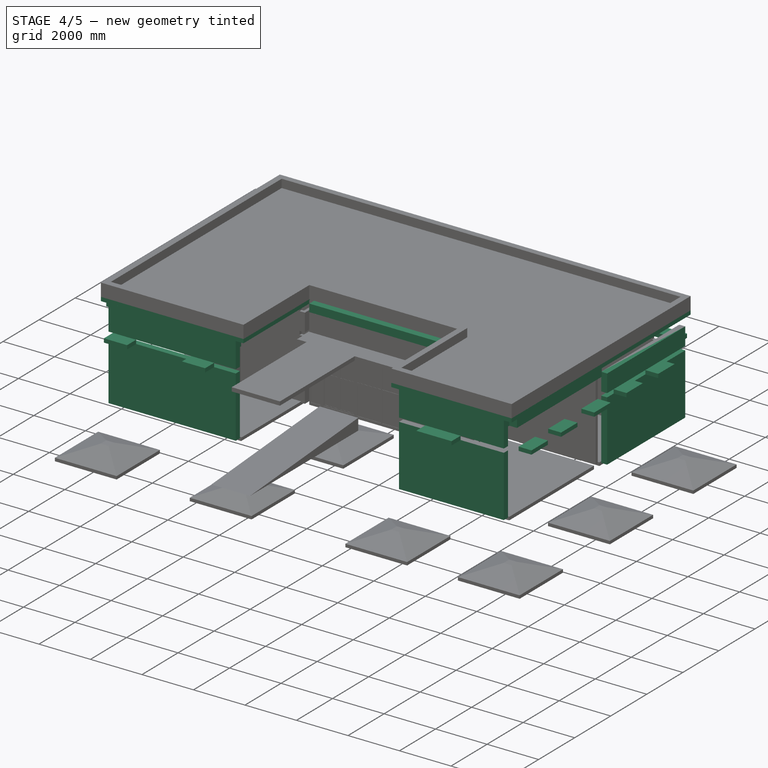
[diagram: stage 4 of 5 — iso view after this stage's code; geometry added in this stage tinted green]
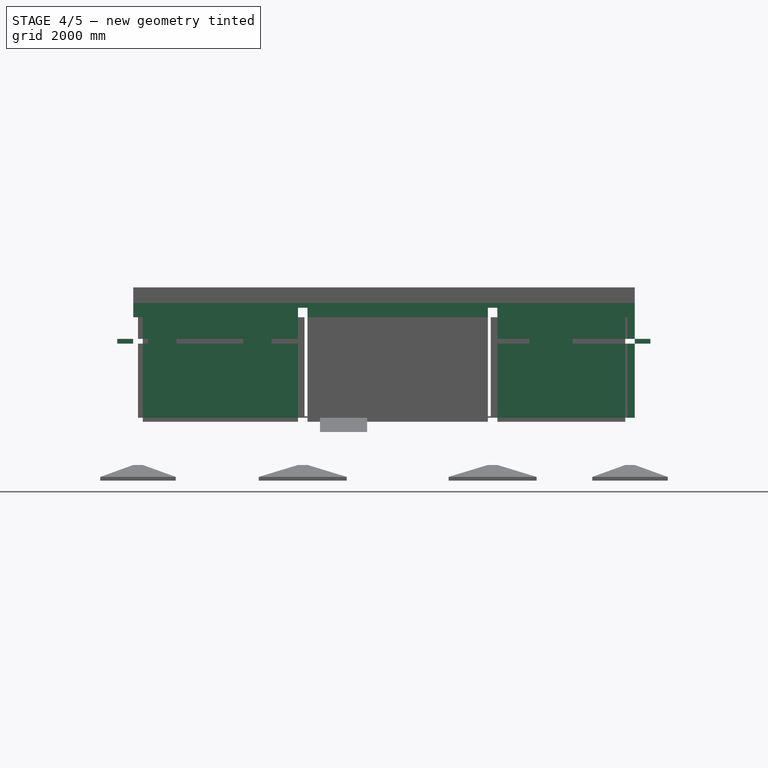
[diagram: stage 4 of 5 — front view after this stage's code; geometry added in this stage tinted green]
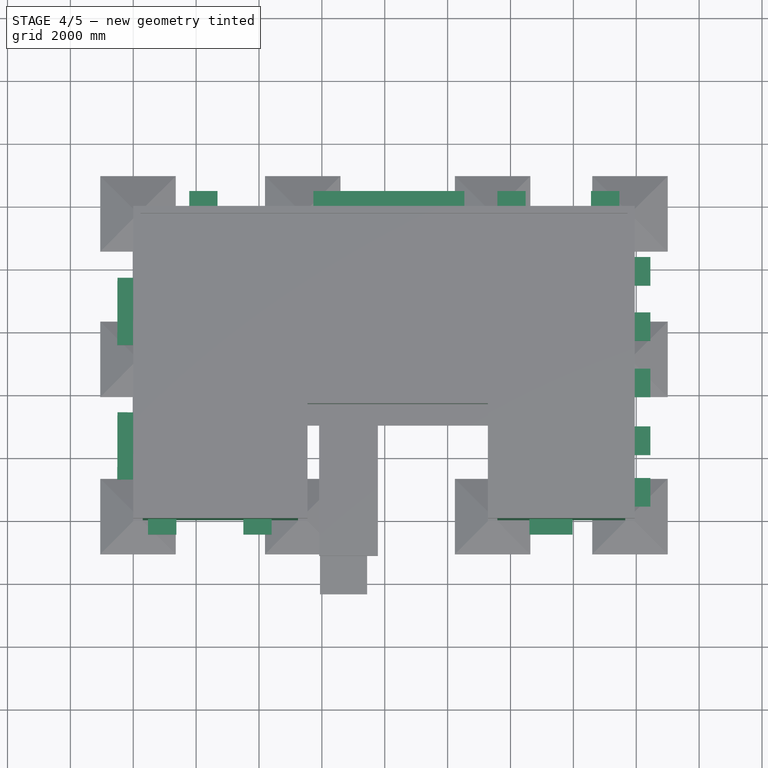
[diagram: stage 4 of 5 — top view after this stage's code; geometry added in this stage tinted green]
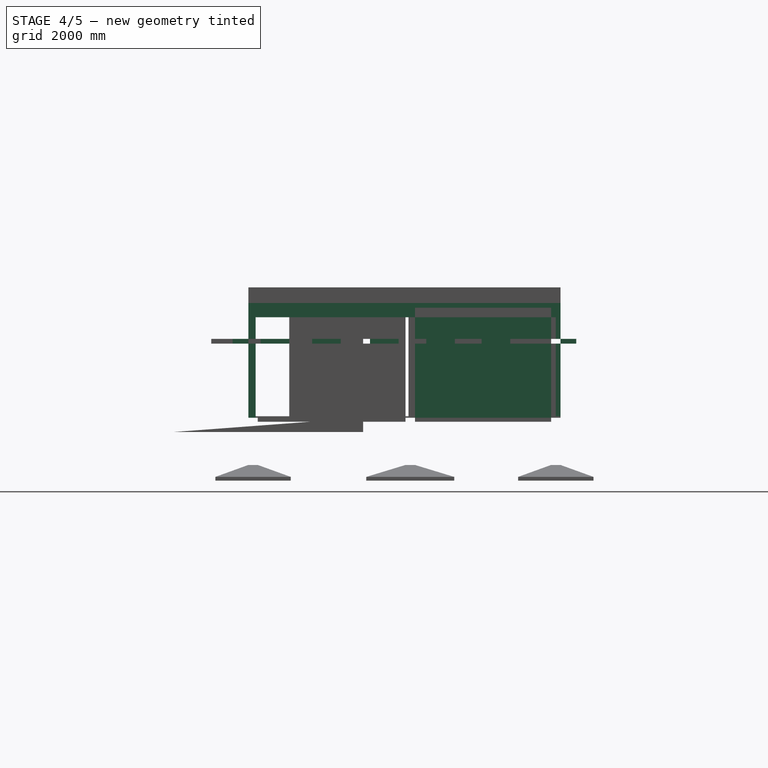
[diagram: stage 4 of 5 — right view after this stage's code; geometry added in this stage tinted green]
FEATURE [Part::FeaturePython] Structure028  label="B101"  # Arch/BIM 7 (typed FeaturePython)
  FaceMaker = 0
  Height = 300
  HorizontalArea = 1.482e+06
  IfcData = IfcUID=3TRDrQVU58qQ5uO9Mp4rVE,+2 more (map truncated)
  IfcType = 7
  Length = 4940
  Material = -> Material
  MoveBase = false
  MoveWithHost = false
  Nodes = (2) [(1.2326e-31,-1.51582e-15,5.55112e-16),(1.2326e-31,-1.51582e-15,4940)]
  NodesOffset = 0
  Normal = (0,0,0)
  PerimeterLength = 10480
  Placement = pos=(300,150,3350) rot=(0,0,1;0rad)
  PredefinedType = 0
  Tag = RoofBeam
  VerticalArea = 3.144e+06
  Width = 300
FEATURE [Part::FeaturePython] Structure032  label="B105"  # Arch/BIM 7 (typed FeaturePython)
  FaceMaker = 0
  Height = 300
  HorizontalArea = 1.221e+06
  IfcData = IfcUID=06lwKBMgf1NAxtCpxb8mVZ,+2 more (map truncated)
  IfcType = 7
  Length = 4070
  Material = -> Material
  MoveBase = false
  MoveWithHost = false
  Nodes = (2) [(1.2326e-31,-1.51582e-15,5.55112e-16),(1.2326e-31,-1.51582e-15,4070)]
  NodesOffset = 0
  Normal = (0,0,0)
  PerimeterLength = 8740
  Placement = pos=(11580,150,3350) rot=(0,0,1;0rad)
  PredefinedType = 0
  Tag = RoofBeam
  VerticalArea = 2.622e+06
  Width = 300
FEATURE [Part::FeaturePython] Structure033  label="B106"  # Arch/BIM 7 (typed FeaturePython)
  FaceMaker = 0
  Height = 300
  HorizontalArea = 1.41e+06
  IfcData = IfcUID=3m2drC2Cj3T9e_05ymUP7m,+2 more (map truncated)
  IfcType = 7
  Length = 4700
  Material = -> Material
  MoveBase = false
  MoveWithHost = false
  Nodes = (2) [(1.2326e-31,-1.51582e-15,5.55112e-16),(1.2326e-31,-1.51582e-15,4700)]
  NodesOffset = 0
  Normal = (0,0,0)
  PerimeterLength = 10000
  Placement = pos=(15800,300,3350) rot=(0,0,1;1.5708rad)
  PredefinedType = 0
  Tag = RoofBeam
  VerticalArea = 3000000
  Width = 300
FEATURE [Part::FeaturePython] Structure037  label="B110"  # Arch/BIM 7 (typed FeaturePython)
  FaceMaker = 0
  Height = 300
  HorizontalArea = 1.482e+06
  IfcData = IfcUID=1fMbdgu8v6J9OBZvKdVImw,+2 more (map truncated)
  IfcType = 7
  Length = 4940
  Material = -> Material
  MoveBase = false
  MoveWithHost = false
  Nodes = (2) [(1.2326e-31,-1.51582e-15,5.55112e-16),(1.2326e-31,-1.51582e-15,4940)]
  NodesOffset = 0
  Normal = (0,0,0)
  PerimeterLength = 10480
  Placement = pos=(5240,9780,3350) rot=(0,0,1;3.14159rad)
  PredefinedType = 0
  Tag = RoofBeam
  VerticalArea = 3.144e+06
  Width = 300
FEATURE [Part::FeaturePython] Structure040  label="B113"  # Arch/BIM 7 (typed FeaturePython)
  FaceMaker = 0
  Height = 300
  HorizontalArea = 1.482e+06
  IfcData = IfcUID=3DXtJ3EtfEvw0Rg_v3Fvas,+2 more (map truncated)
  IfcType = 7
  Length = 4940
  Material = -> Material
  MoveBase = false
  MoveWithHost = false
  Nodes = (2) [(1.2326e-31,-1.51582e-15,5.55112e-16),(1.2326e-31,-1.51582e-15,4940)]
  NodesOffset = 0
  Normal = (0,0,0)
  PerimeterLength = 10480
  Placement = pos=(5240,5150,3350) rot=(0,0,1;3.14159rad)
  PredefinedType = 0
  Tag = RoofBeam
  VerticalArea = 3.144e+06
  Width = 300
FEATURE [Part::FeaturePython] Structure044  label="B117"  # Arch/BIM 7 (typed FeaturePython)
  FaceMaker = 0
  Height = 300
  HorizontalArea = 1.722e+06
  IfcData = IfcUID=37PX4aN5DCPeqNQOwXE6yW,+2 more (map truncated)
  IfcType = 7
  Length = 5740
  Material = -> Material
  MoveBase = false
  MoveWithHost = false
  Nodes = (2) [(1.2326e-31,-1.51582e-15,5.55112e-16),(1.2326e-31,-1.51582e-15,5740)]
  NodesOffset = 0
  Normal = (0,0,0)
  PerimeterLength = 12080
  Placement = pos=(5540,3800,3350) rot=(0,0,1;0rad)
  PredefinedType = 0
  Tag = RoofBeam
  VerticalArea = 3624000
  Width = 300
FEATURE [Part::FeaturePython] Structure046  label="BL001"  # Arch/BIM 7 (typed FeaturePython)
  FaceMaker = 0
  Height = 150
  HorizontalArea = 1.482e+06
  IfcData = IfcUID=1MidrtGLj4qAdk8efhrE$X,+2 more (map truncated)
  IfcType = 7
  Length = 4940
  Material = -> Material
  MoveBase = false
  MoveWithHost = false
  Nodes = (2) [(6.16298e-32,-1.51582e-15,2.77556e-16),(6.16298e-32,-1.51582e-15,4940)]
  NodesOffset = 0
  Normal = (0,0,0)
  PerimeterLength = 10480
  Placement = pos=(300,150,2435) rot=(0,0,1;0rad)
  PredefinedType = 3
  Tag = LintelBeam
  VerticalArea = 1.572e+06
  Width = 300
FEATURE [Part::FeaturePython] Structure052  label="BL007"  # Arch/BIM 7 (typed FeaturePython)
  FaceMaker = 0
  Height = 150
  HorizontalArea = 1.482e+06
  IfcData = IfcUID=3I4nRSbmbCKArvivUJ03Md,+2 more (map truncated)
  IfcType = 7
  Length = 4940
  Material = -> Material
  MoveBase = false
  MoveWithHost = false
  Nodes = (2) [(6.16298e-32,-1.51582e-15,2.77556e-16),(6.16298e-32,-1.51582e-15,4940)]
  NodesOffset = 0
  Normal = (0,0,0)
  PerimeterLength = 10480
  Placement = pos=(5240,9780,2435) rot=(0,0,1;3.14159rad)
  PredefinedType = 3
  Tag = LintelBeam
  VerticalArea = 1.572e+06
  Width = 300
FEATURE [Part::FeaturePython] Structure058  label="S101"  # Arch/BIM 118 (typed FeaturePython)
  Base = -> Rectangle001
  FaceMaker = 0
  Height = 150
  HorizontalArea = 2.57642e+07
  IfcData = IfcUID=2joUZhKTr2kBb8aWqJxzTH,+2 more (map truncated)
  IfcType = 118
  Length = 0
  Material = -> Material
  MoveBase = false
  MoveWithHost = false
  Nodes = (4) [(9.09495e-13,-5150,3500),(-5390,-5150,3500),(-5390,-9930,3500),(1.81899e-12,-9930,3500)]
  NodesOffset = 0
  Normal = (0,0,0)
  PerimeterLength = 20340
  PredefinedType = 1
  Tag = MainSlab
  VerticalArea = 3.051e+06
  Width = 300
FEATURE [Part::FeaturePython] Structure060  label="S102"  # Arch/BIM 118 (typed FeaturePython)
  Base = -> Rectangle004
  FaceMaker = 0
  Height = 150
  HorizontalArea = 2.88712e+07
  IfcData = IfcUID=3DUgepDbf5QBtaB9OqMqNx,+2 more (map truncated)
  IfcType = 118
  Length = 0
  Material = -> Material
  MoveBase = false
  MoveWithHost = false
  Nodes = (4) [(-5390,-5150,3500),(-11430,-5150,3500),(-11430,-9930,3500),(-5390,-9930,3500)]
  NodesOffset = 0
  Normal = (0,0,0)
  PerimeterLength = 21640
  PredefinedType = 1
  Tag = MainSlab
  VerticalArea = 3.246e+06
  Width = 300
FEATURE [Part::FeaturePython] Structure063  label="S104"  # Arch/BIM 118 (typed FeaturePython)
  Base = -> Rectangle005
  FaceMaker = 0
  Height = 150
  HorizontalArea = 2.16056e+07
  IfcData = IfcUID=1KTD9ZuxLENQbuf$6R5_eC,+2 more (map truncated)
  IfcType = 118
  Length = 0
  Material = -> Material
  MoveBase = false
  MoveWithHost = false
  Nodes = (4) [(-11430,-5150,3500),(-15950,-5150,3500),(-15950,-9930,3500),(-11430,-9930,3500)]
  NodesOffset = 0
  Normal = (0,0,0)
  PerimeterLength = 18600
  PredefinedType = 1
  Tag = MainSlab
  VerticalArea = 2.79e+06
  Width = 300
FEATURE [Part::FeaturePython] Structure065  label="S106"  # Arch/BIM 118 (typed FeaturePython)
  Base = -> Rectangle008
  FaceMaker = 0
  Height = 150
  HorizontalArea = 9.06e+06
  IfcData = IfcUID=3G6ln4CwrFJ9VBS8sB2oUE,+2 more (map truncated)
  IfcType = 118
  Length = 0
  Material = -> Material
  MoveBase = false
  MoveWithHost = false
  Nodes = (4) [(-5390,-3650,3500),(-11430,-3650,3500),(-11430,-5150,3500),(-5390,-5150,3500)]
  NodesOffset = 0
  Normal = (0,0,0)
  PerimeterLength = 15080
  PredefinedType = 1
  Tag = MainSlab
  VerticalArea = 2262000
  Width = 300
FEATURE [Part::FeaturePython] Structure062  label="S103"  # Arch/BIM 118 (typed FeaturePython)
  Base = -> Rectangle006
  FaceMaker = 0
  Height = 150
  HorizontalArea = 2.38255e+07
  IfcData = IfcUID=2aj0EV4jT3G8rBuLo_V_OR,+2 more (map truncated)
  IfcType = 118
  Length = 0
  Material = -> Material
  MoveBase = false
  MoveWithHost = false
  Nodes = (4) [(-11280,2.72848e-12,3500),(-15950,1.81899e-12,3500),(-15950,-5150,3500),(-11280,-5150,3500)]
  NodesOffset = 0
  Normal = (0,0,0)
  PerimeterLength = 19640
  PredefinedType = 1
  Subtractions = -> [Structure065]
  Tag = MainSlab
  VerticalArea = 2.946e+06
  Width = 300
FEATURE [Part::FeaturePython] Structure064  label="S105"  # Arch/BIM 118 (typed FeaturePython)
  Base = -> Rectangle007
  FaceMaker = 0
  Height = 150
  HorizontalArea = 2.8306e+07
  IfcData = IfcUID=3rzNMi0c574fSXV4DFg_H9,+2 more (map truncated)
  IfcType = 118
  Length = 0
  Material = -> Material
  MoveBase = false
  MoveWithHost = false
  Nodes = (4) [(-9.09495e-13,2.72848e-12,3500),(-5540,1.81899e-12,3500),(-5540,-5150,3500),(0,-5150,3500)]
  NodesOffset = 0
  Normal = (0,0,0)
  PerimeterLength = 21380
  PredefinedType = 1
  Subtractions = -> [Structure065]
  Tag = MainSlab
  VerticalArea = 3.207e+06
  Width = 300
FEATURE [Part::FeaturePython] Structure066  label="B112"  # Arch/BIM 7 (typed FeaturePython)
  FaceMaker = 0
  Height = 300
  HorizontalArea = 1.41e+06
  IfcData = IfcUID=07qgcpkHr4QBmNRWrOP1j7,+2 more (map truncated)
  IfcType = 7
  Length = 4700
  Material = -> Material
  MoveBase = false
  MoveWithHost = false
  Nodes = (2) [(1.2326e-31,-1.51582e-15,5.55112e-16),(1.2326e-31,-1.51582e-15,4700)]
  NodesOffset = 0
  Normal = (0,0,0)
  PerimeterLength = 10000
  Placement = pos=(150,300,3350) rot=(0,0,1;1.5708rad)
  PredefinedType = 0
  Tag = RoofBeam
  VerticalArea = 3000000
  Width = 300
FEATURE [Sketcher::SketchObject] Sketch005
  ExternalGeometry = -> [Structure048]
  Placement = pos=(15950,2698.54,1668.9) rot=(0.57735,0.57735,0.57735;2.0944rad)
  sketch-geometry (12):
    g0: LineSegment StartX=-2328.54 StartY=1451.1 StartZ=0 EndX=-1718.54 EndY=1451.1 EndZ=0
    g1: LineSegment StartX=-1718.54 StartY=1451.1 StartZ=0 EndX=-1718.54 EndY=841.103 EndZ=0
    g2: LineSegment StartX=-1718.54 StartY=841.103 StartZ=0 EndX=-2328.54 EndY=841.103 EndZ=0
    g3: LineSegment StartX=-2328.54 StartY=841.103 StartZ=0 EndX=-2328.54 EndY=1451.1 EndZ=0
    g4: LineSegment StartX=-2303.54 StartY=1426.1 StartZ=0 EndX=-1743.54 EndY=1426.1 EndZ=0
    g5: LineSegment StartX=-1743.54 StartY=1426.1 StartZ=0 EndX=-1743.54 EndY=866.103 EndZ=0
    g6: LineSegment StartX=-1743.54 StartY=866.103 StartZ=0 EndX=-2303.54 EndY=866.103 EndZ=0
    g7: LineSegment StartX=-2303.54 StartY=866.103 StartZ=0 EndX=-2303.54 EndY=1426.1 EndZ=0
    g8: LineSegment StartX=-2278.54 StartY=1376.1 StartZ=0 EndX=-1768.54 EndY=1376.1 EndZ=0
    g9: LineSegment StartX=-1768.54 StartY=1376.1 StartZ=0 EndX=-1768.54 EndY=916.103 EndZ=0
    g10: LineSegment StartX=-1768.54 StartY=916.103 StartZ=0 EndX=-2278.54 EndY=916.103 EndZ=0
    g11: LineSegment StartX=-2278.54 StartY=916.103 StartZ=0 EndX=-2278.54 EndY=1376.1 EndZ=0
  constraints (36):
    c: Coincident(g0,g1)
    c: Coincident(g1,g2)
    c: Coincident(g2,g3)
    c: Coincident(g3,g0)
    c: Horizontal(g0)
    c: Horizontal(g2)
    c: Vertical(g1)
    c: Vertical(g3)
    c: Coincident(g4,g5)
    c: Coincident(g5,g6)
    c: Coincident(g6,g7)
    c: Coincident(g7,g4)
    c: Horizontal(g4)
    c: Horizontal(g6)
    c: Vertical(g5)
    c: Vertical(g7)
    c: Coincident(g8,g9)
    c: Coincident(g9,g10)
    c: Coincident(g10,g11)
    c: Coincident(g11,g8)
    c: Horizontal(g8)
    c: Horizontal(g10)
    c: Vertical(g9)
    c: Vertical(g11)
    c: DistanceY(g4,g0) = 25
    c: DistanceY(g1,g5) = 25
    c: DistanceY(g5,g9) = 50
    c: DistanceY(g8,g4) = 50
    c: DistanceY(g1,g1) = 610
    c: DistanceX(g4,g8) = 25
    c: DistanceX(g0,g4) = 25
    c: DistanceX(g8,g4) = 25
    c: DistanceX(g5,g1) = 25
    c: DistanceX(g2,g2) = 610
    c: DistanceX(g-3,g2) = 70
    c: DistanceY(g2,g-3) = 0
FEATURE [Sketcher::SketchObject] Sketch010
  ExternalGeometry = -> [Structure048]
  Placement = pos=(15950,2724.08,1084.42) rot=(0.57735,0.57735,0.57735;2.0944rad)
  sketch-geometry (4):
    g0: LineSegment StartX=-2504.08 StartY=1425.58 StartZ=0 EndX=-1594.08 EndY=1425.58 EndZ=0
    g1: LineSegment StartX=-1594.08 StartY=1425.58 StartZ=0 EndX=-1594.08 EndY=1275.58 EndZ=0
    g2: LineSegment StartX=-1594.08 StartY=1275.58 StartZ=0 EndX=-2504.08 EndY=1275.58 EndZ=0
    g3: LineSegment StartX=-2504.08 StartY=1275.58 StartZ=0 EndX=-2504.08 EndY=1425.58 EndZ=0
  constraints (12):
    c: Coincident(g0,g1)
    c: Coincident(g1,g2)
    c: Coincident(g2,g3)
    c: Coincident(g3,g0)
    c: Horizontal(g0)
    c: Horizontal(g2)
    c: Vertical(g1)
    c: Vertical(g3)
    c: DistanceY(g1,g1) = 150
    c: DistanceX(g0,g0) = 910
    c: DistanceX(g0,g-3) = 80
    c: DistanceY(g-3,g0) = 0
FEATURE [Part::FeaturePython] Structure067  label="SS001"  # Arch/BIM 118 (typed FeaturePython)
  Base = -> Sketch010
  FaceMaker = 0
  Height = 500
  HorizontalArea = 455000
  IfcData = IfcUID=3BAwbaasf3AeWGpSjQgSAF,+2 more (map truncated)
  IfcType = 118
  Length = 0
  Material = -> Material
  MoveBase = false
  MoveWithHost = false
  Nodes = (2) [(15950,675,2435),(15950,675,2945)]
  NodesOffset = 0
  Normal = (0,0,0)
  PerimeterLength = 2820
  Placement = pos=(500,170,0) rot=(0,0,1;0rad)
  PredefinedType = 4
  Tag = SunShades
  VerticalArea = 423000
  Width = 300
FEATURE [Part::FeaturePython] Structure068  label="SS002"  # Arch/BIM 118 (typed FeaturePython)
  Base = -> Sketch011
  FaceMaker = 0
  Height = 500
  HorizontalArea = 455000
  IfcData = IfcUID=1UMxU8C0T0igiPK1lg6w7i,+2 more (map truncated)
  IfcType = 118
  Length = 0
  Material = -> Material
  MoveBase = false
  MoveWithHost = false
  Nodes = (2) [(15950,675,2435),(15950,675,2945)]
  NodesOffset = 0
  Normal = (0,0,0)
  PerimeterLength = 2820
  Placement = pos=(500,1810,0) rot=(0,0,1;0rad)
  PredefinedType = 4
  Tag = SunShades
  VerticalArea = 423000
  Width = 300
FEATURE [Part::FeaturePython] Structure070  label="SS003"  # Arch/BIM 118 (typed FeaturePython)
  Base = -> Sketch012
  FaceMaker = 0
  Height = 500
  HorizontalArea = 455000
  IfcData = IfcUID=2ClYmNpIz8ruWcqY5KIBJs,+2 more (map truncated)
  IfcType = 118
  Length = 0
  Material = -> Material
  MoveBase = false
  MoveWithHost = false
  Nodes = (2) [(15950,675,2435),(15950,675,2945)]
  NodesOffset = 0
  Normal = (0,0,0)
  PerimeterLength = 2820
  Placement = pos=(500,3650,0) rot=(0,0,1;0rad)
  PredefinedType = 4
  Tag = SunShades
  VerticalArea = 423000
  Width = 300
FEATURE [Part::FeaturePython] Structure072  label="SS004"  # Arch/BIM 118 (typed FeaturePython)
  Base = -> Sketch013
  FaceMaker = 0
  Height = 500
  HorizontalArea = 455000
  IfcData = IfcUID=0dHyzsZyj2$RfebVbj05j8,+2 more (map truncated)
  IfcType = 118
  Length = 0
  Material = -> Material
  MoveBase = false
  MoveWithHost = false
  Nodes = (2) [(15950,675,2435),(15950,675,2945)]
  NodesOffset = 0
  Normal = (0,0,0)
  PerimeterLength = 2820
  Placement = pos=(500,5440,0) rot=(0,0,1;0rad)
  PredefinedType = 4
  Tag = SunShades
  VerticalArea = 423000
  Width = 300
FEATURE [Part::FeaturePython] Structure074  label="SS005"  # Arch/BIM 118 (typed FeaturePython)
  Base = -> Sketch014
  FaceMaker = 0
  Height = 500
  HorizontalArea = 455000
  IfcData = IfcUID=3HZ3SaWTTADuYAnxVIg4KS,+2 more (map truncated)
  IfcType = 118
  Length = 0
  Material = -> Material
  MoveBase = false
  MoveWithHost = false
  Nodes = (2) [(15950,675,2435),(15950,675,2935)]
  NodesOffset = 0
  Normal = (0,0,0)
  PerimeterLength = 2820
  Placement = pos=(500,7200,1) rot=(0,0,1;0rad)
  PredefinedType = 4
  Tag = SunShades
  VerticalArea = 423000
  Width = 300
FEATURE [Sketcher::SketchObject] Sketch015
  ExternalGeometry = -> [Structure017]
  Placement = pos=(13615,9930,1600) rot=(0,0.707107,0.707107;3.14159rad)
  sketch-geometry (12):
    g0: LineSegment StartX=-1875 StartY=760 StartZ=0 EndX=-1265 EndY=760 EndZ=0
    g1: LineSegment StartX=-1265 StartY=760 StartZ=0 EndX=-1265 EndY=150 EndZ=0
    g2: LineSegment StartX=-1265 StartY=150 StartZ=0 EndX=-1875 EndY=150 EndZ=0
    g3: LineSegment StartX=-1875 StartY=150 StartZ=0 EndX=-1875 EndY=760 EndZ=0
    g4: LineSegment StartX=-1850 StartY=735 StartZ=0 EndX=-1290 EndY=735 EndZ=0
    g5: LineSegment StartX=-1290 StartY=735 StartZ=0 EndX=-1290 EndY=175 EndZ=0
    g6: LineSegment StartX=-1290 StartY=175 StartZ=0 EndX=-1850 EndY=175 EndZ=0
    g7: LineSegment StartX=-1850 StartY=175 StartZ=0 EndX=-1850 EndY=735 EndZ=0
    g8: LineSegment StartX=-1825 StartY=685 StartZ=0 EndX=-1315 EndY=685 EndZ=0
    g9: LineSegment StartX=-1315 StartY=685 StartZ=0 EndX=-1315 EndY=225 EndZ=0
    g10: LineSegment StartX=-1315 StartY=225 StartZ=0 EndX=-1825 EndY=225 EndZ=0
    g11: LineSegment StartX=-1825 StartY=225 StartZ=0 EndX=-1825 EndY=685 EndZ=0
  constraints (36):
    c: Coincident(g0,g1)
    c: Coincident(g1,g2)
    c: Coincident(g2,g3)
    c: Coincident(g3,g0)
    c: Horizontal(g0)
    c: Horizontal(g2)
    c: Vertical(g1)
    c: Vertical(g3)
    c: Coincident(g4,g5)
    c: Coincident(g5,g6)
    c: Coincident(g6,g7)
    c: Coincident(g7,g4)
    c: Horizontal(g4)
    c: Horizontal(g6)
    c: Vertical(g5)
    c: Vertical(g7)
    c: Coincident(g8,g9)
    c: Coincident(g9,g10)
    c: Coincident(g10,g11)
    c: Coincident(g11,g8)
    c: Horizontal(g8)
    c: Horizontal(g10)
    c: Vertical(g9)
    c: Vertical(g11)
    c: DistanceX(g4,g0) = 25
    c: DistanceX(g0,g4) = 25
    c: DistanceX(g4,g8) = 25
    c: DistanceX(g8,g4) = 25
    c: DistanceX(g0,g0) = 610
    c: DistanceY(g4,g0) = 25
    c: DistanceY(g8,g4) = 50
    c: DistanceY(g5,g9) = 50
    c: DistanceY(g1,g5) = 25
    c: DistanceY(g1,g1) = 610
    c: DistanceY(g-3,g2) = 1750
    c: DistanceX(g-3,g2) = 160
FEATURE [Sketcher::SketchObject] Sketch018
  ExternalGeometry = -> [Structure050]
  Placement = pos=(13615.4,9930,1106.51) rot=(-1,0,0;1.5708rad)
  sketch-geometry (12):
    g0: LineSegment StartX=1874.58 StartY=-2013.49 StartZ=0 EndX=1264.58 EndY=-2013.49 EndZ=0
    g1: LineSegment StartX=1264.58 StartY=-2013.49 StartZ=0 EndX=1264.58 EndY=-1403.49 EndZ=0
    g2: LineSegment StartX=1264.58 StartY=-1403.49 StartZ=0 EndX=1874.58 EndY=-1403.49 EndZ=0
    g3: LineSegment StartX=1874.58 StartY=-1403.49 StartZ=0 EndX=1874.58 EndY=-2013.49 EndZ=0
    g4: LineSegment StartX=1849.58 StartY=-1988.49 StartZ=0 EndX=1289.58 EndY=-1988.49 EndZ=0
    g5: LineSegment StartX=1289.58 StartY=-1988.49 StartZ=0 EndX=1289.58 EndY=-1428.49 EndZ=0
    g6: LineSegment StartX=1289.58 StartY=-1428.49 StartZ=0 EndX=1849.58 EndY=-1428.49 EndZ=0
    g7: LineSegment StartX=1849.58 StartY=-1428.49 StartZ=0 EndX=1849.58 EndY=-1988.49 EndZ=0
    g8: LineSegment StartX=1824.58 StartY=-1938.49 StartZ=0 EndX=1314.58 EndY=-1938.49 EndZ=0
    g9: LineSegment StartX=1314.58 StartY=-1938.49 StartZ=0 EndX=1314.58 EndY=-1478.49 EndZ=0
    g10: LineSegment StartX=1314.58 StartY=-1478.49 StartZ=0 EndX=1824.58 EndY=-1478.49 EndZ=0
    g11: LineSegment StartX=1824.58 StartY=-1478.49 StartZ=0 EndX=1824.58 EndY=-1938.49 EndZ=0
  constraints (36):
    c: Coincident(g0,g1)
    c: Coincident(g1,g2)
    c: Coincident(g2,g3)
    c: Coincident(g3,g0)
    c: Horizontal(g0)
    c: Horizontal(g2)
    c: Vertical(g1)
    c: Vertical(g3)
    c: Coincident(g4,g5)
    c: Coincident(g5,g6)
    c: Coincident(g6,g7)
    c: Coincident(g7,g4)
    c: Horizontal(g4)
    c: Horizontal(g6)
    c: Vertical(g5)
    c: Vertical(g7)
    c: Coincident(g8,g9)
    c: Coincident(g9,g10)
    c: Coincident(g10,g11)
    c: Coincident(g11,g8)
    c: Horizontal(g8)
    c: Horizontal(g10)
    c: Vertical(g9)
    c: Vertical(g11)
    c: DistanceY(g1,g1) = 610
    c: DistanceX(g0,g0) = 610
    c: DistanceX(g0,g4) = 25
    c: DistanceX(g6,g2) = 25
    c: DistanceX(g10,g6) = 25
    c: DistanceX(g5,g9) = 25
    c: DistanceY(g9,g5) = 50
    c: DistanceY(g5,g1) = 25
    c: DistanceY(g4,g8) = 50
    c: DistanceY(g0,g4) = 25
    c: DistanceY(g2,g-3) = 0
    c: DistanceX(g2,g-3) = 160
FEATURE [Sketcher::SketchObject] Sketch021
  ExternalGeometry = -> [Structure035]
  Placement = pos=(13615,9930,2435) rot=(0,0.707107,0.707107;3.14159rad)
  sketch-geometry (4):
    g0: LineSegment StartX=-1845 StartY=75 StartZ=0 EndX=-945 EndY=75 EndZ=0
    g1: LineSegment StartX=-945 StartY=75 StartZ=0 EndX=-945 EndY=-75 EndZ=0
    g2: LineSegment StartX=-945 StartY=-75 StartZ=0 EndX=-1845 EndY=-75 EndZ=0
    g3: LineSegment StartX=-1845 StartY=-75 StartZ=0 EndX=-1845 EndY=75 EndZ=0
  constraints (12):
    c: Coincident(g0,g1)
    c: Coincident(g1,g2)
    c: Coincident(g2,g3)
    c: Coincident(g3,g0)
    c: Horizontal(g0)
    c: Horizontal(g2)
    c: Vertical(g1)
    c: Vertical(g3)
    c: DistanceY(g1,g1) = 150
    c: DistanceY(g1,g-1) = 75
    c: DistanceX(g0,g0) = 900
    c: DistanceX(g-3,g0) = 190
FEATURE [Part::FeaturePython] Structure075  label="SS006"  # Arch/BIM 118 (typed FeaturePython)
  Base = -> Sketch021
  FaceMaker = 0
  Height = 500
  HorizontalArea = 450000
  IfcData = IfcUID=1gH9DugarELuvCiCYF$vS9,+2 more (map truncated)
  IfcType = 118
  Length = 0
  Material = -> Material
  MoveBase = false
  MoveWithHost = false
  Nodes = (2) [(15010,9930,2435),(15010,9930,1935)]
  NodesOffset = 0
  Normal = (0,0,0)
  PerimeterLength = 2800
  Placement = pos=(1,500,0) rot=(0,0,1;0rad)
  PredefinedType = 4
  Tag = SunShades
  VerticalArea = 420000
  Width = 300
FEATURE [Part::FeaturePython] Structure076  label="SS007"  # Arch/BIM 118 (typed FeaturePython)
  Base = -> Sketch022
  FaceMaker = 0
  Height = 500
  HorizontalArea = 450000
  IfcData = IfcUID=3GgPqCG_X1PhCb7zkX2iYh,+2 more (map truncated)
  IfcType = 118
  Length = 0
  Material = -> Material
  MoveBase = false
  MoveWithHost = false
  Nodes = (2) [(15010,9930,2435),(15010,9930,1935)]
  NodesOffset = 0
  Normal = (0,0,0)
  PerimeterLength = 2800
  Placement = pos=(-2980,500,0) rot=(0,0,1;0rad)
  PredefinedType = 4
  Tag = SunShades
  VerticalArea = 420000
  Width = 300
FEATURE [Part::FeaturePython] Structure078  label="SS008"  # Arch/BIM 118 (typed FeaturePython)
  Base = -> Sketch023
  FaceMaker = 0
  Height = 500
  HorizontalArea = 450000
  IfcData = IfcUID=2ICFRbnSPFcAExe8xEBq45,+2 more (map truncated)
  IfcType = 118
  Length = 0
  Material = -> Material
  MoveBase = false
  MoveWithHost = false
  Nodes = (2) [(15010,9930,2435),(15010,9930,2935)]
  NodesOffset = 0
  Normal = (0,0,0)
  PerimeterLength = 2800
  Placement = pos=(-12780,500,0) rot=(0,0,1;0rad)
  PredefinedType = 4
  Tag = SunShades
  VerticalArea = 420000
  Width = 300
FEATURE [Sketcher::SketchObject] Sketch024
  ExternalGeometry = -> [Axis001,Structure051]
  Placement = pos=(8410,9930,1180) rot=(0,0.707107,0.707107;3.14159rad)
  sketch-geometry (20):
    g0: LineSegment StartX=-1970 StartY=1180 StartZ=0 EndX=-150 EndY=1180 EndZ=0
    g1: LineSegment StartX=-150 StartY=1180 StartZ=0 EndX=-150 EndY=70 EndZ=0
    g2: LineSegment StartX=-150 StartY=70 StartZ=0 EndX=-1970 EndY=70 EndZ=0
    g3: LineSegment StartX=-1970 StartY=70 StartZ=0 EndX=-1970 EndY=1180 EndZ=0
    g4: LineSegment StartX=-1945 StartY=1155 StartZ=0 EndX=-200 EndY=1155 EndZ=0
    g5: LineSegment StartX=-200 StartY=1155 StartZ=0 EndX=-200 EndY=95 EndZ=0
    g6: LineSegment StartX=-200 StartY=95 StartZ=0 EndX=-1945 EndY=95 EndZ=0
    g7: LineSegment StartX=-1945 StartY=95 StartZ=0 EndX=-1945 EndY=1155 EndZ=0
    g8: LineSegment StartX=-1920 StartY=1105 StartZ=0 EndX=-1388.33 EndY=1105 EndZ=0
    g9: LineSegment StartX=-1388.33 StartY=1105 StartZ=0 EndX=-1388.33 EndY=145 EndZ=0
    g10: LineSegment StartX=-1388.33 StartY=145 StartZ=0 EndX=-1920 EndY=145 EndZ=0
    g11: LineSegment StartX=-1920 StartY=145 StartZ=0 EndX=-1920 EndY=1105 EndZ=0
    g12: LineSegment StartX=-1338.33 StartY=1105 StartZ=0 EndX=-806.667 EndY=1105 EndZ=0
    g13: LineSegment StartX=-806.667 StartY=1105 StartZ=0 EndX=-806.667 EndY=145 EndZ=0
    g14: LineSegment StartX=-806.667 StartY=145 StartZ=0 EndX=-1338.33 EndY=145 EndZ=0
    g15: LineSegment StartX=-1338.33 StartY=145 StartZ=0 EndX=-1338.33 EndY=1105 EndZ=0
    g16: LineSegment StartX=-756.667 StartY=1105 StartZ=0 EndX=-225 EndY=1105 EndZ=0
    g17: LineSegment StartX=-225 StartY=1105 StartZ=0 EndX=-225 EndY=145 EndZ=0
    g18: LineSegment StartX=-225 StartY=145 StartZ=0 EndX=-756.667 EndY=145 EndZ=0
    g19: LineSegment StartX=-756.667 StartY=145 StartZ=0 EndX=-756.667 EndY=1105 EndZ=0
  constraints (60):
    c: Coincident(g0,g1)
    c: Coincident(g1,g2)
    c: Coincident(g2,g3)
    c: Coincident(g3,g0)
    c: Horizontal(g0)
    c: Horizontal(g2)
    c: Vertical(g1)
    c: Vertical(g3)
    c: Coincident(g4,g5)
    c: Coincident(g5,g6)
    c: Coincident(g6,g7)
    c: Coincident(g7,g4)
    c: Horizontal(g4)
    c: Horizontal(g6)
    c: Vertical(g5)
    c: Vertical(g7)
    c: Coincident(g8,g9)
    c: Coincident(g9,g10)
    c: Coincident(g10,g11)
    c: Coincident(g11,g8)
    c: Horizontal(g8)
    c: Horizontal(g10)
    c: Vertical(g9)
    c: Vertical(g11)
    c: Coincident(g12,g13)
    c: Coincident(g13,g14)
    c: Coincident(g14,g15)
    c: Coincident(g15,g12)
    c: Horizontal(g12)
    c: Horizontal(g14)
    c: Vertical(g13)
    c: Vertical(g15)
    c: Coincident(g16,g17)
    c: Coincident(g17,g18)
    c: Coincident(g18,g19)
    c: Coincident(g19,g16)
    c: Horizontal(g16)
    c: Horizontal(g18)
    c: Vertical(g17)
    c: Vertical(g19)
    c: Equal(g8,g12)
    c: Equal(g12,g16)
    c: Equal(g19,g13)
    c: Equal(g15,g9)
    c: DistanceY(g4,g0) = 25
    c: DistanceY(g1,g5) = 25
    c: DistanceY(g5,g17) = 50
    c: DistanceY(g16,g4) = 50
    c: DistanceX(g0,g4) = 25
    c: DistanceX(g6,g10) = 25
    c: DistanceX(g9,g14) = 50
    c: DistanceX(g13,g18) = 50
    c: DistanceY(g18,g13) = 0
    c: DistanceY(g14,g9) = 0
    c: DistanceX(g17,g5) = 25
    c: DistanceX(g5,g1) = 50
    c: DistanceX(g0,g0) = 1820
    c: DistanceX(g-4,g0) = 900
    c: DistanceY(g0,g-4) = 0
    c: DistanceY(g3,g3) = 1110
FEATURE [Sketcher::SketchObject] Sketch025
  ExternalGeometry = -> [Structure051]
  Placement = pos=(8410,9930,1180) rot=(0,0.707107,0.707107;3.14159rad)
  sketch-geometry (24):
    g0: LineSegment StartX=80 StartY=1180 StartZ=0 EndX=2530 EndY=1180 EndZ=0
    g1: LineSegment StartX=2530 StartY=1180 StartZ=0 EndX=2530 EndY=70 EndZ=0
    g2: LineSegment StartX=2530 StartY=70 StartZ=0 EndX=80 EndY=70 EndZ=0
    g3: LineSegment StartX=80 StartY=70 StartZ=0 EndX=80 EndY=1180 EndZ=0
    g4: LineSegment StartX=105 StartY=1155 StartZ=0 EndX=2505 EndY=1155 EndZ=0
    g5: LineSegment StartX=2505 StartY=1155 StartZ=0 EndX=2505 EndY=95 EndZ=0
    g6: LineSegment StartX=2505 StartY=95 StartZ=0 EndX=105 EndY=95 EndZ=0
    g7: LineSegment StartX=105 StartY=95 StartZ=0 EndX=105 EndY=1155 EndZ=0
    g8: LineSegment StartX=130 StartY=1105 StartZ=0 EndX=680 EndY=1105 EndZ=0
    g9: LineSegment StartX=680 StartY=1105 StartZ=0 EndX=680 EndY=145 EndZ=0
    g10: LineSegment StartX=680 StartY=145 StartZ=0 EndX=130 EndY=145 EndZ=0
    g11: LineSegment StartX=130 StartY=145 StartZ=0 EndX=130 EndY=1105 EndZ=0
    g12: LineSegment StartX=730 StartY=1105 StartZ=0 EndX=1280 EndY=1105 EndZ=0
    g13: LineSegment StartX=1280 StartY=1105 StartZ=0 EndX=1280 EndY=145 EndZ=0
    g14: LineSegment StartX=1280 StartY=145 StartZ=0 EndX=730 EndY=145 EndZ=0
    g15: LineSegment StartX=730 StartY=145 StartZ=0 EndX=730 EndY=1105 EndZ=0
    g16: LineSegment StartX=1330 StartY=1105 StartZ=0 EndX=1880 EndY=1105 EndZ=0
    g17: LineSegment StartX=1880 StartY=1105 StartZ=0 EndX=1880 EndY=145 EndZ=0
    g18: LineSegment StartX=1880 StartY=145 StartZ=0 EndX=1330 EndY=145 EndZ=0
    g19: LineSegment StartX=1330 StartY=145 StartZ=0 EndX=1330 EndY=1105 EndZ=0
    g20: LineSegment StartX=1930 StartY=1105 StartZ=0 EndX=2480 EndY=1105 EndZ=0
    g21: LineSegment StartX=2480 StartY=1105 StartZ=0 EndX=2480 EndY=145 EndZ=0
    g22: LineSegment StartX=2480 StartY=145 StartZ=0 EndX=1930 EndY=145 EndZ=0
    g23: LineSegment StartX=1930 StartY=145 StartZ=0 EndX=1930 EndY=1105 EndZ=0
  constraints (72):
    c: Coincident(g0,g1)
    c: Coincident(g1,g2)
    c: Coincident(g2,g3)
    c: Coincident(g3,g0)
    c: Horizontal(g0)
    c: Horizontal(g2)
    c: Vertical(g1)
    c: Vertical(g3)
    c: DistanceY(g-3,g0) = 0
    c: DistanceX(g-3,g0) = 2950
    c: Coincident(g4,g5)
    c: Coincident(g5,g6)
    c: Coincident(g6,g7)
    c: Coincident(g7,g4)
    c: Horizontal(g4)
    c: Horizontal(g6)
    c: Vertical(g5)
    c: Vertical(g7)
    c: Coincident(g8,g9)
    c: Coincident(g9,g10)
    c: Coincident(g10,g11)
    c: Coincident(g11,g8)
    c: Horizontal(g8)
    c: Horizontal(g10)
    c: Vertical(g9)
    c: Vertical(g11)
    c: Coincident(g12,g13)
    c: Coincident(g13,g14)
    c: Coincident(g14,g15)
    c: Coincident(g15,g12)
    c: Horizontal(g12)
    c: Horizontal(g14)
    c: Vertical(g13)
    c: Vertical(g15)
    c: Coincident(g16,g17)
    c: Coincident(g17,g18)
    c: Coincident(g18,g19)
    c: Coincident(g19,g16)
    c: Horizontal(g16)
    c: Horizontal(g18)
    c: Vertical(g17)
    c: Vertical(g19)
    c: Coincident(g20,g21)
    c: Coincident(g21,g22)
    c: Coincident(g22,g23)
    c: Coincident(g23,g20)
    c: Horizontal(g20)
    c: Horizontal(g22)
    c: Vertical(g21)
    c: Vertical(g23)
    c: Equal(g8,g12)
    c: Equal(g12,g16)
    c: Equal(g16,g20)
    c: Equal(g23,g17)
    c: Equal(g19,g13)
    c: Equal(g15,g9)
    c: DistanceY(g4,g0) = 25
    c: DistanceY(g8,g4) = 50
    c: DistanceY(g12,g8) = 0
    c: DistanceY(g16,g12) = 0
    c: DistanceY(g20,g16) = 0
    c: DistanceY(g2,g6) = 25
    c: DistanceY(g6,g10) = 50
    c: DistanceY(g3,g3) = 1110
    c: DistanceX(g2,g6) = 25
    c: DistanceX(g6,g10) = 25
    c: DistanceX(g2,g2) = 2450
    c: DistanceX(g21,g5) = 25
    c: DistanceX(g5,g1) = 25
    c: DistanceX(g17,g22) = 50
    c: DistanceX(g13,g18) = 50
    c: DistanceX(g9,g14) = 50
FEATURE [Sketcher::SketchObject] Sketch026
  ExternalGeometry = -> [Structure051]
  Placement = pos=(8410,9930,1180) rot=(0,0.707107,0.707107;3.14159rad)
  sketch-geometry (4):
    g0: LineSegment StartX=-2120 StartY=1330 StartZ=0 EndX=2680 EndY=1330 EndZ=0
    g1: LineSegment StartX=2680 StartY=1330 StartZ=0 EndX=2680 EndY=1180 EndZ=0
    g2: LineSegment StartX=2680 StartY=1180 StartZ=0 EndX=-2120 EndY=1180 EndZ=0
    g3: LineSegment StartX=-2120 StartY=1180 StartZ=0 EndX=-2120 EndY=1330 EndZ=0
  constraints (12):
    c: Coincident(g0,g1)
    c: Coincident(g1,g2)
    c: Coincident(g2,g3)
    c: Coincident(g3,g0)
    c: Horizontal(g0)
    c: Horizontal(g2)
    c: Vertical(g1)
    c: Vertical(g3)
    c: DistanceY(g3,g3) = 150
    c: DistanceY(g-3,g0) = 150
    c: DistanceX(g0,g0) = 4800
    c: DistanceX(g-3,g2) = 750
FEATURE [Part::FeaturePython] Structure080  label="SS009"  # Arch/BIM 118 (typed FeaturePython)
  Base = -> Sketch026
  FaceMaker = 0
  Height = 500
  HorizontalArea = 2.4e+06
  IfcData = IfcUID=0zLJdpvaH33utOc$yvoD5A,+2 more (map truncated)
  IfcType = 118
  Length = 0
  Material = -> Material
  MoveBase = false
  MoveWithHost = false
  Nodes = (2) [(8130,9930,2435),(8130,9930,1935)]
  NodesOffset = 0
  Normal = (0,0,0)
  PerimeterLength = 10600
  Placement = pos=(0,500,0) rot=(0,0,1;0rad)
  PredefinedType = 4
  Tag = SunShades
  VerticalArea = 1590000
  Width = 300
FEATURE [Sketcher::SketchObject] Sketch027
  ExternalGeometry = -> [Structure013]
  Placement = pos=(-5.71306,2645.54,1600) rot=(-0.576416,0.577817,0.577817;4.18739rad)
  sketch-geometry (20):
    g0: LineSegment StartX=-594.48 StartY=760 StartZ=0 EndX=1245.52 EndY=760 EndZ=0
    g1: LineSegment StartX=1245.52 StartY=760 StartZ=0 EndX=1245.52 EndY=-460 EndZ=0
    g2: LineSegment StartX=1245.52 StartY=-460 StartZ=0 EndX=-594.48 EndY=-460 EndZ=0
    g3: LineSegment StartX=-594.48 StartY=-460 StartZ=0 EndX=-594.48 EndY=760 EndZ=0
    g4: LineSegment StartX=-569.48 StartY=735 StartZ=0 EndX=1220.52 EndY=735 EndZ=0
    g5: LineSegment StartX=1220.52 StartY=735 StartZ=0 EndX=1220.52 EndY=-435 EndZ=0
    g6: LineSegment StartX=1220.52 StartY=-435 StartZ=0 EndX=-569.48 EndY=-435 EndZ=0
    g7: LineSegment StartX=-569.48 StartY=-435 StartZ=0 EndX=-569.48 EndY=735 EndZ=0
    g8: LineSegment StartX=-544.48 StartY=685 StartZ=0 EndX=-6.14714 EndY=685 EndZ=0
    g9: LineSegment StartX=-6.14714 StartY=685 StartZ=0 EndX=-6.14714 EndY=-385 EndZ=0
    g10: LineSegment StartX=-6.14714 StartY=-385 StartZ=0 EndX=-544.48 EndY=-385 EndZ=0
    g11: LineSegment StartX=-544.48 StartY=-385 StartZ=0 EndX=-544.48 EndY=685 EndZ=0
    g12: LineSegment StartX=43.8529 StartY=685 StartZ=0 EndX=582.186 EndY=685 EndZ=0
    g13: LineSegment StartX=582.186 StartY=685 StartZ=0 EndX=582.186 EndY=-385 EndZ=0
    g14: LineSegment StartX=582.186 StartY=-385 StartZ=0 EndX=43.8529 EndY=-385 EndZ=0
    g15: LineSegment StartX=43.8529 StartY=-385 StartZ=0 EndX=43.8529 EndY=685 EndZ=0
    g16: LineSegment StartX=632.186 StartY=685 StartZ=0 EndX=1170.52 EndY=685 EndZ=0
    g17: LineSegment StartX=1170.52 StartY=685 StartZ=0 EndX=1170.52 EndY=-385 EndZ=0
    g18: LineSegment StartX=1170.52 StartY=-385 StartZ=0 EndX=632.186 EndY=-385 EndZ=0
    g19: LineSegment StartX=632.186 StartY=-385 StartZ=0 EndX=632.186 EndY=685 EndZ=0
  constraints (60):
    c: Coincident(g0,g1)
    c: Coincident(g1,g2)
    c: Coincident(g2,g3)
    c: Coincident(g3,g0)
    c: Horizontal(g0)
    c: Horizontal(g2)
    c: Vertical(g1)
    c: Vertical(g3)
    c: DistanceY(g-3,g0) = 2360
    c: DistanceY(g1,g1) = 1220
    c: DistanceX(g1,g-3) = 1100
    c: DistanceX(g0,g0) = 1840
    c: Coincident(g4,g5)
    c: Coincident(g5,g6)
    c: Coincident(g6,g7)
    c: Coincident(g7,g4)
    c: Horizontal(g4)
    c: Horizontal(g6)
    c: Vertical(g5)
    c: Vertical(g7)
    c: Coincident(g8,g9)
    c: Coincident(g9,g10)
    c: Coincident(g10,g11)
    c: Coincident(g11,g8)
    c: Horizontal(g8)
    c: Horizontal(g10)
    c: Vertical(g9)
    c: Vertical(g11)
    c: Coincident(g12,g13)
    c: Coincident(g13,g14)
    c: Coincident(g14,g15)
    c: Coincident(g15,g12)
    c: Horizontal(g12)
    c: Horizontal(g14)
    c: Vertical(g13)
    c: Vertical(g15)
    c: Coincident(g16,g17)
    c: Coincident(g17,g18)
    c: Coincident(g18,g19)
    c: Coincident(g19,g16)
    c: Horizontal(g16)
    c: Horizontal(g18)
    c: Vertical(g17)
    c: Vertical(g19)
    c: DistanceY(g4,g0) = 25
    c: DistanceY(g16,g4) = 50
    c: DistanceY(g16,g12) = 0
    c: DistanceY(g12,g8) = 0
    c: DistanceY(g5,g17) = 50
    c: DistanceY(g1,g5) = 25
    c: Equal(g9,g15)
    c: Equal(g13,g19)
    c: Equal(g16,g12)
    c: Equal(g12,g8)
    c: DistanceX(g0,g4) = 25
    c: DistanceX(g4,g8) = 25
    c: DistanceX(g8,g12) = 50
    c: DistanceX(g12,g16) = 50
    c: DistanceX(g17,g5) = 50
    c: DistanceX(g5,g1) = 25
FEATURE [Sketcher::SketchObject] Sketch028
  ExternalGeometry = -> [Structure013]
  Placement = pos=(-5.71306,2645.54,1600) rot=(-0.576416,0.577817,0.577817;4.18739rad)
  sketch-geometry (4):
    g0: LineSegment StartX=-744.48 StartY=910 StartZ=0 EndX=1395.52 EndY=910 EndZ=0
    g1: LineSegment StartX=1395.52 StartY=910 StartZ=0 EndX=1395.52 EndY=760 EndZ=0
    g2: LineSegment StartX=1395.52 StartY=760 StartZ=0 EndX=-744.48 EndY=760 EndZ=0
    g3: LineSegment StartX=-744.48 StartY=760 StartZ=0 EndX=-744.48 EndY=910 EndZ=0
  constraints (12):
    c: Coincident(g0,g1)
    c: Coincident(g1,g2)
    c: Coincident(g2,g3)
    c: Coincident(g3,g0)
    c: Horizontal(g0)
    c: Horizontal(g2)
    c: Vertical(g1)
    c: Vertical(g3)
    c: DistanceY(g1,g1) = 150
    c: DistanceX(g0,g0) = 2140
    c: DistanceX(g2,g-3) = 3090
    c: DistanceY(g-3,g1) = 2360
FEATURE [Part::FeaturePython] Structure081  label="SS010"  # Arch/BIM 118 (typed FeaturePython)
  Base = -> Sketch028
  FaceMaker = 0
  Height = 500
  HorizontalArea = 1.07e+06
  IfcData = IfcUID=2$0ClTCO94QBRuUQ9$PwwG,+2 more (map truncated)
  IfcType = 118
  Length = 0
  Material = -> Material
  MoveBase = false
  MoveWithHost = false
  Nodes = (2) [(-6.50293,2320.02,2435),(-6.50293,2320.02,1935)]
  NodesOffset = 0
  Normal = (0,0,0)
  PerimeterLength = 5280
  Placement = pos=(-500,0,0) rot=(0,0,1;0rad)
  PredefinedType = 4
  Tag = SunShades
  VerticalArea = 792000
  Width = 300
FEATURE [Part::FeaturePython] Structure083  label="SS011"  # Arch/BIM 118 (typed FeaturePython)
  Base = -> Sketch029
  FaceMaker = 0
  Height = 500
  HorizontalArea = 1.07e+06
  IfcData = IfcUID=1O45g0yN94UxK1slbtZn0g,+2 more (map truncated)
  IfcType = 118
  Length = 0
  Material = -> Material
  MoveBase = false
  MoveWithHost = false
  Nodes = (2) [(-6.50293,2320.02,2435),(-6.50293,2320.02,1935)]
  NodesOffset = 0
  Normal = (0,0,0)
  PerimeterLength = 5280
  Placement = pos=(-500,4280,0) rot=(0,0,1;0rad)
  PredefinedType = 4
  Tag = SunShades
  VerticalArea = 792000
  Width = 300
FEATURE [Sketcher::SketchObject] Sketch031
  ExternalGeometry = -> [Structure012]
  Placement = pos=(2770,3.07e-12,1600) rot=(1,0,0;1.5708rad)
  sketch-geometry (16):
    g0: LineSegment StartX=-2310 StartY=760 StartZ=0 EndX=-1700 EndY=760 EndZ=0
    g1: LineSegment StartX=-1700 StartY=760 StartZ=0 EndX=-1700 EndY=-1200 EndZ=0
    g2: LineSegment StartX=-1700 StartY=-1200 StartZ=0 EndX=-2310 EndY=-1200 EndZ=0
    g3: LineSegment StartX=-2310 StartY=-1200 StartZ=0 EndX=-2310 EndY=760 EndZ=0
    g4: LineSegment StartX=-2285 StartY=735 StartZ=0 EndX=-1725 EndY=735 EndZ=0
    g5: LineSegment StartX=-1725 StartY=735 StartZ=0 EndX=-1725 EndY=-525 EndZ=0
    g6: LineSegment StartX=-1725 StartY=-525 StartZ=0 EndX=-2285 EndY=-525 EndZ=0
    g7: LineSegment StartX=-2285 StartY=-525 StartZ=0 EndX=-2285 EndY=735 EndZ=0
    g8: LineSegment StartX=-2285 StartY=-575 StartZ=0 EndX=-1725 EndY=-575 EndZ=0
    g9: LineSegment StartX=-1725 StartY=-575 StartZ=0 EndX=-1725 EndY=-1175 EndZ=0
    g10: LineSegment StartX=-1725 StartY=-1175 StartZ=0 EndX=-2285 EndY=-1175 EndZ=0
    g11: LineSegment StartX=-2285 StartY=-1175 StartZ=0 EndX=-2285 EndY=-575 EndZ=0
    g12: LineSegment StartX=-2260 StartY=685 StartZ=0 EndX=-1750 EndY=685 EndZ=0
    g13: LineSegment StartX=-1750 StartY=685 StartZ=0 EndX=-1750 EndY=-475 EndZ=0
    g14: LineSegment StartX=-1750 StartY=-475 StartZ=0 EndX=-2260 EndY=-475 EndZ=0
    g15: LineSegment StartX=-2260 StartY=-475 StartZ=0 EndX=-2260 EndY=685 EndZ=0
  constraints (48):
    c: Coincident(g0,g1)
    c: Coincident(g1,g2)
    c: Coincident(g2,g3)
    c: Coincident(g3,g0)
    c: Horizontal(g0)
    c: Horizontal(g2)
    c: Vertical(g1)
    c: Vertical(g3)
    c: Coincident(g4,g5)
    c: Coincident(g5,g6)
    c: Coincident(g6,g7)
    c: Coincident(g7,g4)
    c: Horizontal(g4)
    c: Horizontal(g6)
    c: Vertical(g5)
    c: Vertical(g7)
    c: Coincident(g8,g9)
    c: Coincident(g9,g10)
    c: Coincident(g10,g11)
    c: Coincident(g11,g8)
    c: Horizontal(g8)
    c: Horizontal(g10)
    c: Vertical(g9)
    c: Vertical(g11)
    c: Coincident(g12,g13)
    c: Coincident(g13,g14)
    c: Coincident(g14,g15)
    c: Coincident(g15,g12)
    c: Horizontal(g12)
    c: Horizontal(g14)
    c: Vertical(g13)
    c: Vertical(g15)
    c: DistanceY(g1,g1) = 1960
    c: DistanceY(g12,g4) = 50
    c: DistanceY(g5,g13) = 50
    c: DistanceY(g8,g5) = 50
    c: DistanceY(g1,g9) = 25
    c: DistanceX(g9,g1) = 25
    c: DistanceX(g5,g8) = 0
    c: DistanceX(g13,g5) = 25
    c: DistanceX(g2,g10) = 25
    c: DistanceX(g8,g6) = 0
    c: DistanceX(g6,g14) = 25
    c: DistanceX(g0,g0) = 610
    c: DistanceY(g9,g9) = 600
    c: DistanceY(g4,g0) = 25
    c: DistanceX(g-3,g2) = 160
    c: DistanceY(g-3,g2) = 400
FEATURE [Sketcher::SketchObject] Sketch032
  ExternalGeometry = -> [Structure046]
  Placement = pos=(2770,3.07e-12,1600) rot=(1,0,0;1.5708rad)
  sketch-geometry (12):
    g0: LineSegment StartX=-2310 StartY=1520 StartZ=0 EndX=-1700 EndY=1520 EndZ=0
    g1: LineSegment StartX=-1700 StartY=1520 StartZ=0 EndX=-1700 EndY=910 EndZ=0
    g2: LineSegment StartX=-1700 StartY=910 StartZ=0 EndX=-2310 EndY=910 EndZ=0
    g3: LineSegment StartX=-2310 StartY=910 StartZ=0 EndX=-2310 EndY=1520 EndZ=0
    g4: LineSegment StartX=-2285 StartY=1495 StartZ=0 EndX=-1725 EndY=1495 EndZ=0
    g5: LineSegment StartX=-1725 StartY=1495 StartZ=0 EndX=-1725 EndY=935 EndZ=0
    g6: LineSegment StartX=-1725 StartY=935 StartZ=0 EndX=-2285 EndY=935 EndZ=0
    g7: LineSegment StartX=-2285 StartY=935 StartZ=0 EndX=-2285 EndY=1495 EndZ=0
    g8: LineSegment StartX=-2260 StartY=1445 StartZ=0 EndX=-1750 EndY=1445 EndZ=0
    g9: LineSegment StartX=-1750 StartY=1445 StartZ=0 EndX=-1750 EndY=985 EndZ=0
    g10: LineSegment StartX=-1750 StartY=985 StartZ=0 EndX=-2260 EndY=985 EndZ=0
    g11: LineSegment StartX=-2260 StartY=985 StartZ=0 EndX=-2260 EndY=1445 EndZ=0
  constraints (36):
    c: Coincident(g0,g1)
    c: Coincident(g1,g2)
    c: Coincident(g2,g3)
    c: Coincident(g3,g0)
    c: Horizontal(g0)
    c: Horizontal(g2)
    c: Vertical(g1)
    c: Vertical(g3)
    c: Coincident(g4,g5)
    c: Coincident(g5,g6)
    c: Coincident(g6,g7)
    c: Coincident(g7,g4)
    c: Horizontal(g4)
    c: Horizontal(g6)
    c: Vertical(g5)
    c: Vertical(g7)
    c: Coincident(g8,g9)
    c: Coincident(g9,g10)
    c: Coincident(g10,g11)
    c: Coincident(g11,g8)
    c: Horizontal(g8)
    c: Horizontal(g10)
    c: Vertical(g9)
    c: Vertical(g11)
    c: DistanceX(g0,g0) = 610
    c: DistanceY(g1,g1) = 610
    c: DistanceY(g4,g0) = 25
    c: DistanceY(g2,g6) = 25
    c: DistanceY(g6,g10) = 50
    c: DistanceY(g8,g4) = 50
    c: DistanceX(g4,g8) = 25
    c: DistanceX(g0,g4) = 25
    c: DistanceX(g5,g1) = 25
    c: DistanceX(g9,g5) = 25
    c: DistanceX(g-3,g2) = 160
    c: DistanceY(g-3,g2) = 0
FEATURE [Sketcher::SketchObject] Sketch033
  ExternalGeometry = -> [Structure046]
  Placement = pos=(2770,3.07e-12,1600) rot=(1,0,0;1.5708rad)
  sketch-geometry (4):
    g0: LineSegment StartX=-2460 StartY=910 StartZ=0 EndX=-1560 EndY=910 EndZ=0
    g1: LineSegment StartX=-1560 StartY=910 StartZ=0 EndX=-1560 EndY=760 EndZ=0
    g2: LineSegment StartX=-1560 StartY=760 StartZ=0 EndX=-2460 EndY=760 EndZ=0
    g3: LineSegment StartX=-2460 StartY=760 StartZ=0 EndX=-2460 EndY=910 EndZ=0
  constraints (12):
    c: Coincident(g0,g1)
    c: Coincident(g1,g2)
    c: Coincident(g2,g3)
    c: Coincident(g3,g0)
    c: Horizontal(g0)
    c: Horizontal(g2)
    c: Vertical(g1)
    c: Vertical(g3)
    c: DistanceY(g1,g1) = 150
    c: DistanceX(g2,g2) = 900
    c: DistanceX(g-3,g2) = 10
    c: DistanceY(g-3,g0) = 0
FEATURE [Sketcher::SketchObject] Sketch034
  ExternalGeometry = -> [Structure046]
  Placement = pos=(2770,3.07e-12,1600) rot=(1,0,0;1.5708rad)
  sketch-geometry (12):
    g0: LineSegment StartX=870 StartY=760 StartZ=0 EndX=1480 EndY=760 EndZ=0
    g1: LineSegment StartX=1480 StartY=760 StartZ=0 EndX=1480 EndY=150 EndZ=0
    g2: LineSegment StartX=1480 StartY=150 StartZ=0 EndX=870 EndY=150 EndZ=0
    g3: LineSegment StartX=870 StartY=150 StartZ=0 EndX=870 EndY=760 EndZ=0
    g4: LineSegment StartX=895 StartY=735 StartZ=0 EndX=1455 EndY=735 EndZ=0
    g5: LineSegment StartX=1455 StartY=735 StartZ=0 EndX=1455 EndY=175 EndZ=0
    g6: LineSegment StartX=1455 StartY=175 StartZ=0 EndX=895 EndY=175 EndZ=0
    g7: LineSegment StartX=895 StartY=175 StartZ=0 EndX=895 EndY=735 EndZ=0
    g8: LineSegment StartX=920 StartY=685 StartZ=0 EndX=1430 EndY=685 EndZ=0
    g9: LineSegment StartX=1430 StartY=685 StartZ=0 EndX=1430 EndY=225 EndZ=0
    g10: LineSegment StartX=1430 StartY=225 StartZ=0 EndX=920 EndY=225 EndZ=0
    g11: LineSegment StartX=920 StartY=225 StartZ=0 EndX=920 EndY=685 EndZ=0
  constraints (36):
    c: Coincident(g0,g1)
    c: Coincident(g1,g2)
    c: Coincident(g2,g3)
    c: Coincident(g3,g0)
    c: Horizontal(g0)
    c: Horizontal(g2)
    c: Vertical(g1)
    c: Vertical(g3)
    c: Coincident(g4,g5)
    c: Coincident(g5,g6)
    c: Coincident(g6,g7)
    c: Coincident(g7,g4)
    c: Horizontal(g4)
    c: Horizontal(g6)
    c: Vertical(g5)
    c: Vertical(g7)
    c: Coincident(g8,g9)
    c: Coincident(g9,g10)
    c: Coincident(g10,g11)
    c: Coincident(g11,g8)
    c: Horizontal(g8)
    c: Horizontal(g10)
    c: Vertical(g9)
    c: Vertical(g11)
    c: DistanceX(g4,g0) = 25
    c: DistanceX(g2,g6) = 25
    c: DistanceX(g6,g10) = 25
    c: DistanceX(g9,g5) = 25
    c: DistanceX(g0,g0) = 610
    c: DistanceY(g4,g0) = 25
    c: DistanceY(g8,g4) = 50
    c: DistanceY(g5,g9) = 50
    c: DistanceY(g1,g5) = 25
    c: DistanceY(g1,g1) = 610
    c: DistanceY(g0,g-3) = 150
    c: DistanceX(g0,g-3) = 990
FEATURE [Sketcher::SketchObject] Sketch035
  ExternalGeometry = -> [Structure046]
  Placement = pos=(2770,3.07e-12,1600) rot=(1,0,0;1.5708rad)
  sketch-geometry (12):
    g0: LineSegment StartX=870 StartY=1520 StartZ=0 EndX=1480 EndY=1520 EndZ=0
    g1: LineSegment StartX=1480 StartY=1520 StartZ=0 EndX=1480 EndY=910 EndZ=0
    g2: LineSegment StartX=1480 StartY=910 StartZ=0 EndX=870 EndY=910 EndZ=0
    g3: LineSegment StartX=870 StartY=910 StartZ=0 EndX=870 EndY=1520 EndZ=0
    g4: LineSegment StartX=895 StartY=1495 StartZ=0 EndX=1455 EndY=1495 EndZ=0
    g5: LineSegment StartX=1455 StartY=1495 StartZ=0 EndX=1455 EndY=935 EndZ=0
    g6: LineSegment StartX=1455 StartY=935 StartZ=0 EndX=895 EndY=935 EndZ=0
    g7: LineSegment StartX=895 StartY=935 StartZ=0 EndX=895 EndY=1495 EndZ=0
    g8: LineSegment StartX=920 StartY=1445 StartZ=0 EndX=1430 EndY=1445 EndZ=0
    g9: LineSegment StartX=1430 StartY=1445 StartZ=0 EndX=1430 EndY=985 EndZ=0
    g10: LineSegment StartX=1430 StartY=985 StartZ=0 EndX=920 EndY=985 EndZ=0
    g11: LineSegment StartX=920 StartY=985 StartZ=0 EndX=920 EndY=1445 EndZ=0
  constraints (36):
    c: Coincident(g0,g1)
    c: Coincident(g1,g2)
    c: Coincident(g2,g3)
    c: Coincident(g3,g0)
    c: Horizontal(g0)
    c: Horizontal(g2)
    c: Vertical(g1)
    c: Vertical(g3)
    c: Coincident(g4,g5)
    c: Coincident(g5,g6)
    c: Coincident(g6,g7)
    c: Coincident(g7,g4)
    c: Horizontal(g4)
    c: Horizontal(g6)
    c: Vertical(g5)
    c: Vertical(g7)
    c: Coincident(g8,g9)
    c: Coincident(g9,g10)
    c: Coincident(g10,g11)
    c: Coincident(g11,g8)
    c: Horizontal(g8)
    c: Horizontal(g10)
    c: Vertical(g9)
    c: Vertical(g11)
    c: DistanceY(g4,g0) = 25
    c: DistanceY(g8,g4) = 50
    c: DistanceY(g5,g9) = 50
    c: DistanceY(g1,g5) = 25
    c: DistanceY(g1,g1) = 610
    c: DistanceX(g2,g6) = 25
    c: DistanceX(g6,g10) = 25
    c: DistanceX(g8,g4) = 25
    c: DistanceX(g4,g0) = 25
    c: DistanceX(g0,g0) = 610
    c: DistanceX(g1,g-3) = 990
    c: DistanceY(g-3,g1) = 0
FEATURE [Sketcher::SketchObject] Sketch036
  ExternalGeometry = -> [Structure046]
  Placement = pos=(2770,3.07e-12,1600) rot=(1,0,0;1.5708rad)
  sketch-geometry (4):
    g0: LineSegment StartX=730 StartY=910 StartZ=0 EndX=1630 EndY=910 EndZ=0
    g1: LineSegment StartX=1630 StartY=910 StartZ=0 EndX=1630 EndY=760 EndZ=0
    g2: LineSegment StartX=1630 StartY=760 StartZ=0 EndX=730 EndY=760 EndZ=0
    g3: LineSegment StartX=730 StartY=760 StartZ=0 EndX=730 EndY=910 EndZ=0
  constraints (12):
    c: Coincident(g0,g1)
    c: Coincident(g1,g2)
    c: Coincident(g2,g3)
    c: Coincident(g3,g0)
    c: Horizontal(g0)
    c: Horizontal(g2)
    c: Vertical(g1)
    c: Vertical(g3)
    c: DistanceY(g1,g1) = 150
    c: DistanceX(g0,g0) = 900
    c: DistanceY(g0,g-3) = 0
    c: DistanceX(g0,g-3) = 840
FEATURE [Part::FeaturePython] Structure084  label="SS012"  # Arch/BIM 118 (typed FeaturePython)
  Base = -> Sketch033
  FaceMaker = 0
  Height = 500
  HorizontalArea = 450000
  IfcData = IfcUID=3agCsdrxXCnO0NjdYCMPSd,+2 more (map truncated)
  IfcType = 118
  Length = 0
  Material = -> Material
  MoveBase = false
  MoveWithHost = false
  Nodes = (2) [(760,2.72017e-12,2435),(760,2.77568e-12,1935)]
  NodesOffset = 0
  Normal = (0,0,0)
  PerimeterLength = 2800
  Placement = pos=(160,-500,0) rot=(0,0,1;0rad)
  PredefinedType = 4
  Tag = SunShades
  VerticalArea = 420000
  Width = 300
FEATURE [Part::FeaturePython] Structure085  label="SS013"  # Arch/BIM 118 (typed FeaturePython)
  Base = -> Sketch036
  FaceMaker = 0
  Height = 500
  HorizontalArea = 450000
  IfcData = IfcUID=2or7rOazr5I8EMWRv_2NlN,+2 more (map truncated)
  IfcType = 118
  Length = 0
  Material = -> Material
  MoveBase = false
  MoveWithHost = false
  Nodes = (2) [(3950,2.71081e-12,2435),(3950,2.76632e-12,1935)]
  NodesOffset = 0
  Normal = (0,0,0)
  PerimeterLength = 2800
  Placement = pos=(0,-500,0) rot=(0,0,1;0rad)
  PredefinedType = 4
  Tag = SunShades
  VerticalArea = 420000
  Width = 300
FEATURE [Sketcher::SketchObject] Sketch037
  ExternalGeometry = -> [Structure020]
  Placement = pos=(13615,2.531e-12,1600) rot=(1,0,0;1.5708rad)
  sketch-geometry (16):
    g0: LineSegment StartX=-865 StartY=760 StartZ=0 EndX=205 EndY=760 EndZ=0
    g1: LineSegment StartX=205 StartY=760 StartZ=0 EndX=205 EndY=-350 EndZ=0
    g2: LineSegment StartX=205 StartY=-350 StartZ=0 EndX=-865 EndY=-350 EndZ=0
    g3: LineSegment StartX=-865 StartY=-350 StartZ=0 EndX=-865 EndY=760 EndZ=0
    g4: LineSegment StartX=-840 StartY=735 StartZ=0 EndX=180 EndY=735 EndZ=0
    g5: LineSegment StartX=180 StartY=735 StartZ=0 EndX=180 EndY=-325 EndZ=0
    g6: LineSegment StartX=180 StartY=-325 StartZ=0 EndX=-840 EndY=-325 EndZ=0
    g7: LineSegment StartX=-840 StartY=-325 StartZ=0 EndX=-840 EndY=735 EndZ=0
    g8: LineSegment StartX=-815 StartY=685 StartZ=0 EndX=-355 EndY=685 EndZ=0
    g9: LineSegment StartX=-355 StartY=685 StartZ=0 EndX=-355 EndY=-275 EndZ=0
    g10: LineSegment StartX=-355 StartY=-275 StartZ=0 EndX=-815 EndY=-275 EndZ=0
    g11: LineSegment StartX=-815 StartY=-275 StartZ=0 EndX=-815 EndY=685 EndZ=0
    g12: LineSegment StartX=-305 StartY=685 StartZ=0 EndX=155 EndY=685 EndZ=0
    g13: LineSegment StartX=155 StartY=685 StartZ=0 EndX=155 EndY=-275 EndZ=0
    g14: LineSegment StartX=155 StartY=-275 StartZ=0 EndX=-305 EndY=-275 EndZ=0
    g15: LineSegment StartX=-305 StartY=-275 StartZ=0 EndX=-305 EndY=685 EndZ=0
  constraints (48):
    c: Coincident(g0,g1)
    c: Coincident(g1,g2)
    c: Coincident(g2,g3)
    c: Coincident(g3,g0)
    c: Horizontal(g0)
    c: Horizontal(g2)
    c: Vertical(g1)
    c: Vertical(g3)
    c: Coincident(g4,g5)
    c: Coincident(g5,g6)
    c: Coincident(g6,g7)
    c: Coincident(g7,g4)
    c: Horizontal(g4)
    c: Horizontal(g6)
    c: Vertical(g5)
    c: Vertical(g7)
    c: Coincident(g8,g9)
    c: Coincident(g9,g10)
    c: Coincident(g10,g11)
    c: Coincident(g11,g8)
    c: Horizontal(g8)
    c: Horizontal(g10)
    c: Vertical(g9)
    c: Vertical(g11)
    c: Coincident(g12,g13)
    c: Coincident(g13,g14)
    c: Coincident(g14,g15)
    c: Coincident(g15,g12)
    c: Horizontal(g12)
    c: Horizontal(g14)
    c: Vertical(g13)
    c: Vertical(g15)
    c: DistanceX(g0,g0) = 1070
    c: DistanceX(g4,g8) = 25
    c: DistanceX(g12,g4) = 25
    c: DistanceY(g8,g4) = 50
    c: DistanceY(g6,g10) = 50
    c: DistanceY(g9,g14) = 0
    c: Equal(g10,g14)
    c: DistanceX(g9,g14) = 50
    c: DistanceX(g5,g1) = 25
    c: DistanceX(g2,g6) = 25
    c: DistanceY(g4,g0) = 25
    c: DistanceY(g12,g4) = 50
    c: DistanceY(g1,g5) = 25
    c: DistanceX(g1,g-3) = 1830
    c: DistanceY(g-3,g0) = 2360
    c: DistanceY(g1,g1) = 1110
FEATURE [Sketcher::SketchObject] Sketch038
  ExternalGeometry = -> [Structure047]
  Placement = pos=(13615,2.531e-12,1600) rot=(1,0,0;1.5708rad)
  sketch-geometry (4):
    g0: LineSegment StartX=-1015 StartY=910 StartZ=0 EndX=355 EndY=910 EndZ=0
    g1: LineSegment StartX=355 StartY=910 StartZ=0 EndX=355 EndY=760 EndZ=0
    g2: LineSegment StartX=355 StartY=760 StartZ=0 EndX=-1015 EndY=760 EndZ=0
    g3: LineSegment StartX=-1015 StartY=760 StartZ=0 EndX=-1015 EndY=910 EndZ=0
  constraints (12):
    c: Coincident(g0,g1)
    c: Coincident(g1,g2)
    c: Coincident(g2,g3)
    c: Coincident(g3,g0)
    c: Horizontal(g0)
    c: Horizontal(g2)
    c: Vertical(g1)
    c: Vertical(g3)
    c: DistanceY(g3,g3) = 150
    c: DistanceX(g0,g0) = 1370
    c: DistanceY(g-3,g0) = 0
    c: DistanceX(g-3,g0) = 1020
FEATURE [Part::FeaturePython] Structure086  label="SS014"  # Arch/BIM 118 (typed FeaturePython)
  Base = -> Sketch038
  FaceMaker = 0
  Height = 500
  HorizontalArea = 685000
  IfcData = IfcUID=00CE6mkCjDpQ_ZuKUMeKs0,+2 more (map truncated)
  IfcType = 118
  Length = 0
  Material = -> Material
  MoveBase = false
  MoveWithHost = false
  Nodes = (2) [(13285,2.17573e-12,2435),(13285,2.23124e-12,1935)]
  NodesOffset = 0
  Normal = (0,0,0)
  PerimeterLength = 3740
  Placement = pos=(0,-500,0) rot=(0,0,1;0rad)
  PredefinedType = 4
  Tag = SunShades
  VerticalArea = 561000
  Width = 300
FEATURE [App::MaterialObjectPython] Material002  label="Brick Massonary"  # material (typed FeaturePython)
  Description = Reinforcement inside concrete for reinforcement material examples, from fib examples, 0.84 x 0.75 x 500 MPa = 315 MPa (https://forum.freecadweb.org/viewtopic.php?f=18&t=33106&start=200#p311705)
  Material = AuthorAndLicense=Reinforcement-FIB-B500,CardName=Reinforcement-FIB-B500,Color=(0.8313725490196079, 0.0392156862745098, 0.0392156862745098),+10 more (map truncated)
  Transparency = 0
FEATURE [Part::FeaturePython] Wall  label="W001"  # Arch/BIM 166 (typed FeaturePython)
  Align = 1
  Area = 15808000
  Base = -> WallTrace
  BlockHeight = 76
  BlockLength = 228
  CountBroken = 215
  CountEntire = 508
  Face = 0
  Height = 3200
  HorizontalArea = 0
  IfcData = IfcUID=0Iuc33rj5CDhXNsDZVpb$k,+2 more (map truncated)
  IfcType = 166
  Joint = 10
  Length = 4940
  MakeBlocks = false
  Material = -> Material002
  MoveBase = false
  MoveWithHost = false
  Normal = (0,0,1)
  OffsetFirst = 114
  OffsetSecond = 0
  PerimeterLength = 0
  PredefinedType = 0
  Subtractions = -> [Structure046]
  VerticalArea = 0
  Width = 230
FEATURE [Part::FeaturePython] Wall001  label="W002"  # Arch/BIM 166 (typed FeaturePython)
  Align = 1
  Area = 13024000
  Base = -> WallTrace001
  BlockHeight = 76
  BlockLength = 228
  CountBroken = 147
  CountEntire = 473
  Face = 0
  Height = 3200
  HorizontalArea = 1.8722e+06
  IfcData = IfcUID=05vapYtHbFN96aaLN5kylk,+2 more (map truncated)
  IfcType = 166
  Joint = 10
  Length = 4070
  MakeBlocks = false
  Material = -> Material002
  MoveBase = false
  MoveWithHost = false
  Normal = (0,0,1)
  OffsetFirst = 114
  OffsetSecond = 0
  PerimeterLength = 0
  PredefinedType = 0
  Subtractions = -> [Structure047]
  VerticalArea = 24365200
  Width = 230
FEATURE [Part::FeaturePython] Wall003  label="W004"  # Arch/BIM 166 (typed FeaturePython)
  Align = 1
  Area = 13856000
  Base = -> WallTrace004
  BlockHeight = 76
  BlockLength = 228
  CountBroken = 200
  CountEntire = 448
  Face = 0
  Height = 3200
  HorizontalArea = 0
  IfcData = IfcUID=0SEP4GGi17PxyzPFV7UtYJ,+2 more (map truncated)
  IfcType = 166
  Joint = 10
  Length = 4330
  MakeBlocks = false
  Material = -> Material002
  MoveBase = false
  MoveWithHost = false
  Normal = (0,0,1)
  OffsetFirst = 114
  OffsetSecond = 0
  PerimeterLength = 0
  PredefinedType = 0
  Subtractions = -> [Structure049]
  VerticalArea = 0
  Width = 230
FEATURE [Part::FeaturePython] Wall005  label="W006"  # Arch/BIM 166 (typed FeaturePython)
  Align = 1
  Area = 18368000
  Base = -> WallTrace006
  BlockHeight = 76
  BlockLength = 228
  CountBroken = 195
  CountEntire = 522
  Face = 0
  Height = 3200
  HorizontalArea = 2.6404e+06
  IfcData = IfcUID=35kFBDyj51k9$CSriaklV9,+2 more (map truncated)
  IfcType = 166
  Joint = 10
  Length = 5740
  MakeBlocks = false
  Material = -> Material002
  MoveBase = false
  MoveWithHost = false
  Normal = (0,0,1)
  OffsetFirst = 114
  OffsetSecond = 0
  PerimeterLength = 0
  PredefinedType = 0
  Subtractions = -> [Structure051]
  VerticalArea = 27958800
  Width = 230
FEATURE [Part::FeaturePython] Wall006  label="W007"  # Arch/BIM 166 (typed FeaturePython)
  Align = 1
  Area = 1.5808e+07
  Base = -> WallTrace007
  BlockHeight = 76
  BlockLength = 228
  CountBroken = 161
  CountEntire = 614
  Face = 0
  Height = 3200
  HorizontalArea = 2.2724e+06
  IfcData = IfcUID=1cWHg871jEtgY0EttTH$We,+2 more (map truncated)
  IfcType = 166
  Joint = 10
  Length = 4940
  MakeBlocks = false
  Material = -> Material002
  MoveBase = false
  MoveWithHost = false
  Normal = (0,0,1)
  OffsetFirst = 114
  OffsetSecond = 0
  PerimeterLength = 0
  PredefinedType = 0
  Subtractions = -> [Structure052]
  VerticalArea = 3.06098e+07
  Width = 230
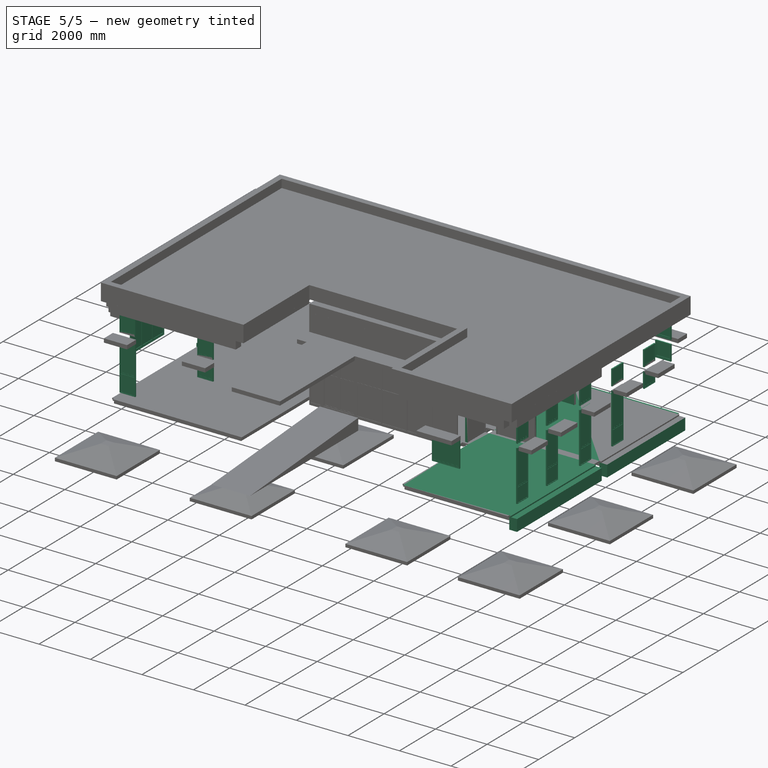
[diagram: stage 5 of 5 — iso view after this stage's code; geometry added in this stage tinted green]
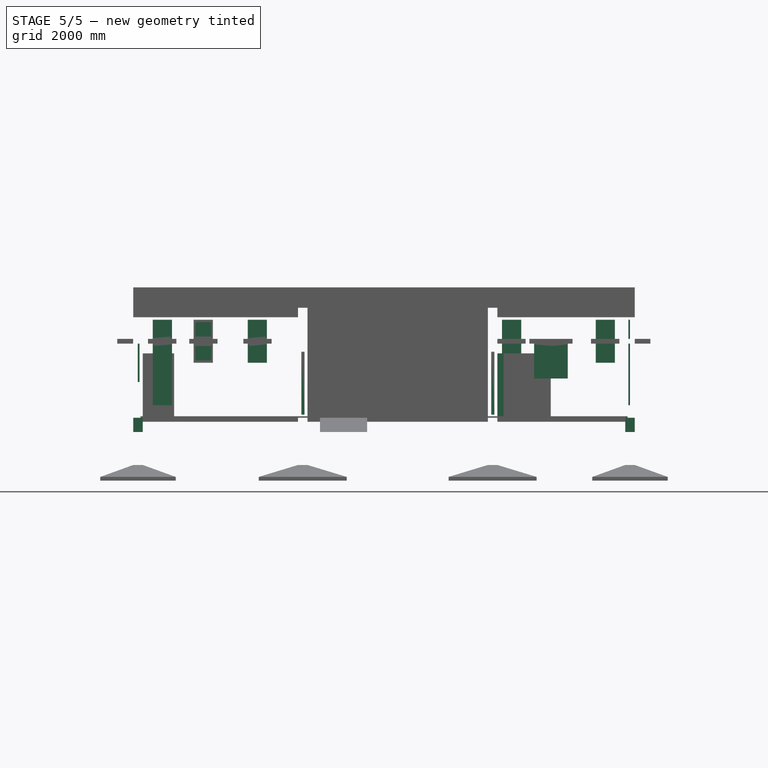
[diagram: stage 5 of 5 — front view after this stage's code; geometry added in this stage tinted green]
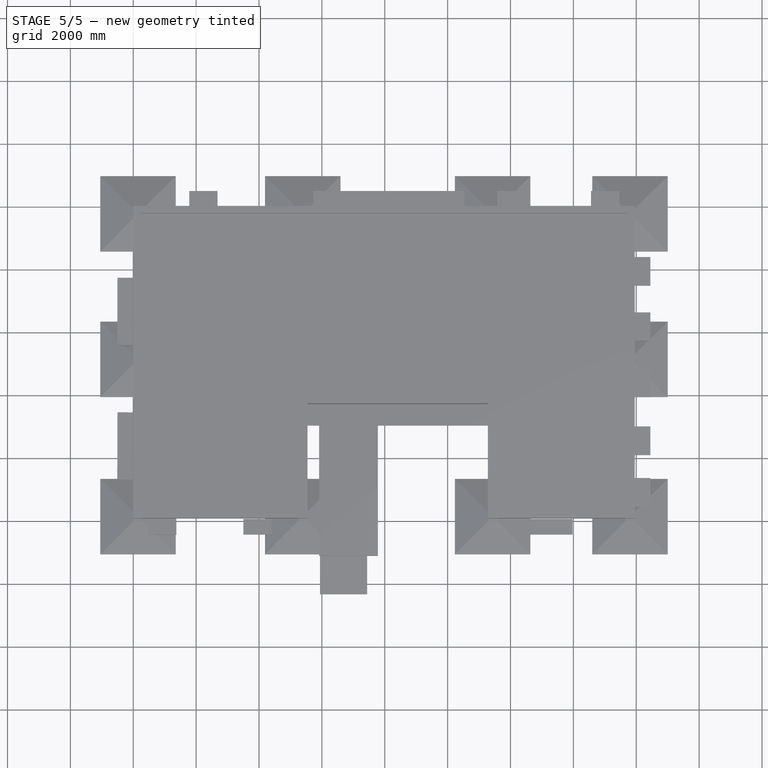
[diagram: stage 5 of 5 — top view after this stage's code; geometry added in this stage tinted green]
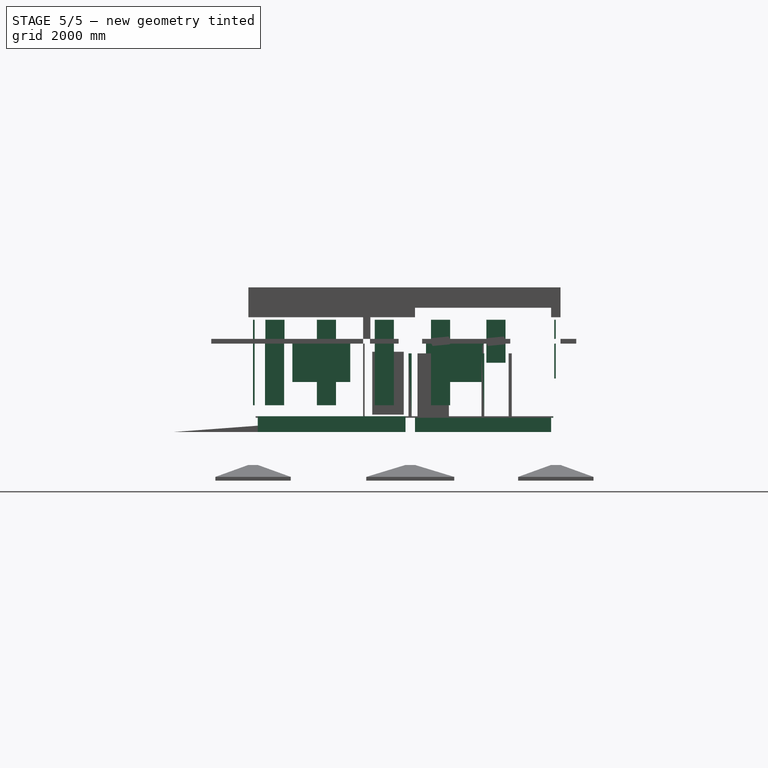
[diagram: stage 5 of 5 — right view after this stage's code; geometry added in this stage tinted green]
FEATURE [Part::FeaturePython] Structure014  label="B003"  # Arch/BIM 7 (typed FeaturePython)
  FaceMaker = 0
  Height = 450
  HorizontalArea = 1.299e+06
  IfcData = IfcUID=0QDjfnwT56Buk59xA7narx,+2 more (map truncated)
  IfcType = 7
  Length = 4330
  Material = -> Material
  MoveBase = false
  MoveWithHost = false
  Nodes = (2) [(-4.93038e-32,0,-2.22045e-16),(-4.93038e-32,0,4330)]
  NodesOffset = 0
  Normal = (0,0,0)
  PerimeterLength = 9260
  Placement = pos=(150,5300,-225) rot=(0,0,1;1.5708rad)
  PredefinedType = 0
  Tag = PlinthBeam
  VerticalArea = 4.167e+06
  Width = 300
FEATURE [Part::FeaturePython] Structure018  label="B007"  # Arch/BIM 7 (typed FeaturePython)
  FaceMaker = 0
  Height = 450
  HorizontalArea = 1.299e+06
  IfcData = IfcUID=3G$EjQTKfDDv5lsCjURFez,+2 more (map truncated)
  IfcType = 7
  Length = 4330
  Material = -> Material
  MoveBase = false
  MoveWithHost = false
  Nodes = (2) [(-4.93038e-32,0,-2.22045e-16),(-4.93038e-32,0,4330)]
  NodesOffset = 0
  Normal = (0,0,0)
  PerimeterLength = 9260
  Placement = pos=(15800,9630,-225) rot=(0,0,-1;1.5708rad)
  PredefinedType = 0
  Tag = PlinthBeam
  VerticalArea = 4.167e+06
  Width = 300
FEATURE [Part::FeaturePython] Structure019  label="B008"  # Arch/BIM 7 (typed FeaturePython)
  FaceMaker = 0
  Height = 450
  HorizontalArea = 1.41e+06
  IfcData = IfcUID=3NUbyKniPE7Q$iR7$t5lXc,+2 more (map truncated)
  IfcType = 7
  Length = 4700
  Material = -> Material
  MoveBase = false
  MoveWithHost = false
  Nodes = (2) [(-4.93038e-32,0,-2.22045e-16),(-4.93038e-32,0,4700)]
  NodesOffset = 0
  Normal = (0,0,0)
  PerimeterLength = 10000
  Placement = pos=(15800,5000,-225) rot=(0,0,-1;1.5708rad)
  PredefinedType = 0
  Tag = PlinthBeam
  VerticalArea = 4500000
  Width = 300
FEATURE [Part::FeaturePython] Window  label="W1"  # Arch/BIM 170 (typed FeaturePython)
  Area = 0
  Base = -> Sketch
  Frame = 0
  Height = 0
  HoleDepth = 0
  HoleWire = 0
  HorizontalArea = 0
  Hosts = -> [Wall002]
  IfcData = IfcUID=1zRywYm0z3PB1t2DguVqE3,+2 more (map truncated)
  IfcType = 170
  LouvreSpacing = 0
  LouvreWidth = 0
  Material = -> Material001
  MoveBase = false
  MoveWithHost = true
  Normal = (-1,-2e-16,2e-16)
  Opening = 0
  OverallHeight = 0
  OverallWidth = 0
  PartitioningType = 0
  PerimeterLength = 0
  Placement = pos=(0,160,0) rot=(0,0,1;0rad)
  PredefinedType = 0
  Preset = 0
  SymbolElevation = false
  SymbolPlan = false
  VerticalArea = 0
  Width = 0
  WindowParts = w1 | Frame | Wire0,Wire1,Wire2 | 50.0 | 150.0 | W2 | Frame | Wire3,Wire2 | 30.0 | 160.0 | g1 | Glass panel | Wire3 | 5.0 | 165.0 | g2 | Glass panel | Wire1 | 5.0 | 165.0
  expr: OverallWidth = .Width.Value
  expr: OverallHeight = .Height.Value
FEATURE [Part::FeaturePython] Window001  label="W2"  # Arch/BIM 170 (typed FeaturePython)
  Area = 0
  Base = -> Sketch001
  Frame = 0
  Height = 0
  HoleDepth = 0
  HoleWire = 0
  HorizontalArea = 0
  Hosts = -> [Wall002]
  IfcData = IfcUID=2PgqGHWm93GvTqmF3H4ub9,+2 more (map truncated)
  IfcType = 170
  LouvreSpacing = 0
  LouvreWidth = 0
  Material = -> Material001
  MoveBase = false
  MoveWithHost = true
  Normal = (-1,-2e-16,2e-16)
  Opening = 0
  OverallHeight = 0
  OverallWidth = 0
  PartitioningType = 0
  PerimeterLength = 0
  Placement = pos=(0,1810,0) rot=(0,0,1;0rad)
  PredefinedType = 0
  Preset = 0
  SymbolElevation = false
  SymbolPlan = false
  VerticalArea = 0
  Width = 0
  WindowParts = w1 | Frame | Wire0,Wire1,Wire2 | 50.0 | 150.0 | W2 | Frame | Wire3,Wire2 | 30.0 | 160.0 | g1 | Glass panel | Wire3 | 5.0 | 165.0 | g2 | Glass panel | Wire1 | 5.0 | 165.0
  expr: OverallHeight = .Height.Value
  expr: OverallWidth = .Width.Value
FEATURE [Part::FeaturePython] Window002  label="W3"  # Arch/BIM 170 (typed FeaturePython)
  Area = 0
  Base = -> Sketch002
  Frame = 0
  Height = 0
  HoleDepth = 0
  HoleWire = 0
  HorizontalArea = 0
  Hosts = -> [Wall002]
  IfcData = IfcUID=398FkjKQX3uQ1xmljl8ZPI,+2 more (map truncated)
  IfcType = 170
  LouvreSpacing = 0
  LouvreWidth = 0
  Material = -> Material001
  MoveBase = false
  MoveWithHost = true
  Normal = (-1,-2e-16,2e-16)
  Opening = 0
  OverallHeight = 0
  OverallWidth = 0
  PartitioningType = 0
  PerimeterLength = 0
  Placement = pos=(0,3650,0) rot=(0,0,1;0rad)
  PredefinedType = 0
  Preset = 0
  SymbolElevation = false
  SymbolPlan = false
  VerticalArea = 0
  Width = 0
  WindowParts = w1 | Frame | Wire0,Wire1,Wire2 | 50.0 | 150.0 | W2 | Frame | Wire3,Wire2 | 30.0 | 160.0 | g1 | Glass panel | Wire3 | 5.0 | 165.0 | g2 | Glass panel | Wire1 | 5.0 | 165.0
  expr: OverallHeight = .Height.Value
  expr: OverallWidth = .Width.Value
FEATURE [Part::FeaturePython] Window003  label="W4"  # Arch/BIM 170 (typed FeaturePython)
  Area = 0
  Base = -> Sketch003
  Frame = 0
  Height = 0
  HoleDepth = 0
  HoleWire = 0
  HorizontalArea = 0
  Hosts = -> [Wall003]
  IfcData = IfcUID=2uTSPhbrTEMxMwdwP$cYH9,+2 more (map truncated)
  IfcType = 170
  LouvreSpacing = 0
  LouvreWidth = 0
  Material = -> Material001
  MoveBase = false
  MoveWithHost = true
  Normal = (-1,-2e-16,2e-16)
  Opening = 0
  OverallHeight = 0
  OverallWidth = 0
  PartitioningType = 0
  PerimeterLength = 0
  Placement = pos=(0,5440,0) rot=(0,0,1;0rad)
  PredefinedType = 0
  Preset = 0
  SymbolElevation = false
  SymbolPlan = false
  VerticalArea = 0
  Width = 0
  WindowParts = w1 | Frame | Wire0,Wire1,Wire2 | 50.0 | 150.0 | W2 | Frame | Wire3,Wire2 | 30.0 | 160.0 | g1 | Glass panel | Wire3 | 5.0 | 165.0 | g2 | Glass panel | Wire1 | 5.0 | 165.0
  expr: OverallHeight = .Height.Value
  expr: OverallWidth = .Width.Value
FEATURE [Sketcher::SketchObject] Sketch004
  ExternalGeometry = -> [Wall002]
  Placement = pos=(15950,2650,1600) rot=(0.57735,0.57735,0.57735;2.0944rad)
  sketch-geometry (12):
    g0: LineSegment StartX=4920 StartY=760 StartZ=0 EndX=5530 EndY=760 EndZ=0
    g1: LineSegment StartX=5530 StartY=760 StartZ=0 EndX=5530 EndY=150 EndZ=0
    g2: LineSegment StartX=5530 StartY=150 StartZ=0 EndX=4920 EndY=150 EndZ=0
    g3: LineSegment StartX=4920 StartY=150 StartZ=0 EndX=4920 EndY=760 EndZ=0
    g4: LineSegment StartX=4945 StartY=735 StartZ=0 EndX=5505 EndY=735 EndZ=0
    g5: LineSegment StartX=5505 StartY=735 StartZ=0 EndX=5505 EndY=175 EndZ=0
    g6: LineSegment StartX=5505 StartY=175 StartZ=0 EndX=4945 EndY=175 EndZ=0
    g7: LineSegment StartX=4945 StartY=175 StartZ=0 EndX=4945 EndY=735 EndZ=0
    g8: LineSegment StartX=4970 StartY=685 StartZ=0 EndX=5480 EndY=685 EndZ=0
    g9: LineSegment StartX=5480 StartY=685 StartZ=0 EndX=5480 EndY=225 EndZ=0
    g10: LineSegment StartX=5480 StartY=225 StartZ=0 EndX=4970 EndY=225 EndZ=0
    g11: LineSegment StartX=4970 StartY=225 StartZ=0 EndX=4970 EndY=685 EndZ=0
  constraints (36):
    c: Coincident(g0,g1)
    c: Coincident(g1,g2)
    c: Coincident(g2,g3)
    c: Coincident(g3,g0)
    c: Horizontal(g0)
    c: Horizontal(g2)
    c: Vertical(g1)
    c: Vertical(g3)
    c: Coincident(g4,g5)
    c: Coincident(g5,g6)
    c: Coincident(g6,g7)
    c: Coincident(g7,g4)
    c: Horizontal(g4)
    c: Horizontal(g6)
    c: Vertical(g5)
    c: Vertical(g7)
    c: Coincident(g8,g9)
    c: Coincident(g9,g10)
    c: Coincident(g10,g11)
    c: Coincident(g11,g8)
    c: Horizontal(g8)
    c: Horizontal(g10)
    c: Vertical(g9)
    c: Vertical(g11)
    c: DistanceX(g0,g4) = 25
    c: DistanceX(g4,g0) = 25
    c: DistanceX(g8,g4) = 25
    c: DistanceX(g6,g10) = 25
    c: DistanceX(g2,g2) = 610
    c: DistanceY(g8,g4) = 50
    c: DistanceY(g4,g0) = 25
    c: DistanceY(g5,g9) = 50
    c: DistanceY(g1,g5) = 25
    c: DistanceY(g1,g1) = 610
    c: DistanceY(g-4,g2) = 1750
    c: DistanceX(g-3,g2) = 2940
FEATURE [Part::FeaturePython] Window004  label="W5"  # Arch/BIM 170 (typed FeaturePython)
  Area = 0
  Base = -> Sketch004
  Frame = 0
  Height = 0
  HoleDepth = 0
  HoleWire = 0
  HorizontalArea = 0
  Hosts = -> [Wall003]
  IfcData = IfcUID=21VaAW3m53hBiCXBpSxfnO,+2 more (map truncated)
  IfcType = 170
  LouvreSpacing = 0
  LouvreWidth = 0
  Material = -> Material001
  MoveBase = false
  MoveWithHost = true
  Normal = (-1,-2e-16,2e-16)
  Opening = 0
  OverallHeight = 0
  OverallWidth = 0
  PartitioningType = 0
  PerimeterLength = 0
  Placement = pos=(0,0,1) rot=(0,0,1;0rad)
  PredefinedType = 0
  Preset = 0
  SymbolElevation = false
  SymbolPlan = false
  VerticalArea = 0
  Width = 0
  WindowParts = f1 | Frame | Wire0,Wire1 | 50.0 | 150.0 | f2 | Frame | Wire1,Wire2 | 30.0 | 160.0 | g | Glass panel | Wire2 | 5.0 | 165.0
  expr: OverallWidth = .Width.Value
  expr: OverallHeight = .Height.Value
FEATURE [Part::FeaturePython] Window005  label="W6"  # Arch/BIM 170 (typed FeaturePython)
  Area = 0
  Base = -> Sketch005
  Frame = 0
  Height = 0
  HoleDepth = 0
  HoleWire = 0
  HorizontalArea = 0
  Hosts = -> [Wall002]
  IfcData = IfcUID=34ZSqvoNH6FQuXlkQ2PM_x,+2 more (map truncated)
  IfcType = 170
  LouvreSpacing = 0
  LouvreWidth = 0
  Material = -> Material001
  MoveBase = false
  MoveWithHost = true
  Normal = (-1,0,0)
  Opening = 0
  OverallHeight = 0
  OverallWidth = 0
  PartitioningType = 0
  PerimeterLength = 0
  Placement = pos=(0,170,0) rot=(0,0,1;0rad)
  PredefinedType = 0
  Preset = 0
  SymbolElevation = false
  SymbolPlan = false
  VerticalArea = 0
  Width = 0
  WindowParts = f1 | Frame | Wire0,Wire1 | 50.0 | 150.0 | f2 | Frame | Wire1,Wire2 | 30.0 | 160.0 | g | Glass panel | Wire2 | 5.0 | 165.0
  expr: OverallWidth = .Width.Value
  expr: OverallHeight = .Height.Value
FEATURE [Part::FeaturePython] Window006  label="W7"  # Arch/BIM 170 (typed FeaturePython)
  Area = 0
  Base = -> Sketch006
  Frame = 0
  Height = 0
  HoleDepth = 0
  HoleWire = 0
  HorizontalArea = 0
  Hosts = -> [Wall002]
  IfcData = IfcUID=0fexrAN3f9suWX40s0ms7O,+2 more (map truncated)
  IfcType = 170
  LouvreSpacing = 0
  LouvreWidth = 0
  Material = -> Material001
  MoveBase = false
  MoveWithHost = true
  Normal = (-1,0,0)
  Opening = 0
  OverallHeight = 0
  OverallWidth = 0
  PartitioningType = 0
  PerimeterLength = 0
  Placement = pos=(0,1810,0) rot=(0,0,1;0rad)
  PredefinedType = 0
  Preset = 0
  SymbolElevation = false
  SymbolPlan = false
  VerticalArea = 0
  Width = 0
  WindowParts = f1 | Frame | Wire0,Wire1 | 50.0 | 150.0 | f2 | Frame | Wire1,Wire2 | 30.0 | 160.0 | g | Glass panel | Wire2 | 5.0 | 165.0
  expr: OverallHeight = .Height.Value
  expr: OverallWidth = .Width.Value
FEATURE [Part::FeaturePython] Window007  label="W8"  # Arch/BIM 170 (typed FeaturePython)
  Area = 0
  Base = -> Sketch007
  Frame = 0
  Height = 0
  HoleDepth = 0
  HoleWire = 0
  HorizontalArea = 0
  Hosts = -> [Wall002]
  IfcData = IfcUID=1$oxyoNTbFnPgu5866942o,+2 more (map truncated)
  IfcType = 170
  LouvreSpacing = 0
  LouvreWidth = 0
  Material = -> Material001
  MoveBase = false
  MoveWithHost = true
  Normal = (-1,0,0)
  Opening = 0
  OverallHeight = 0
  OverallWidth = 0
  PartitioningType = 0
  PerimeterLength = 0
  Placement = pos=(0,3650,0) rot=(0,0,1;0rad)
  PredefinedType = 0
  Preset = 0
  SymbolElevation = false
  SymbolPlan = false
  VerticalArea = 0
  Width = 0
  WindowParts = f1 | Frame | Wire0,Wire1 | 50.0 | 150.0 | f2 | Frame | Wire1,Wire2 | 30.0 | 160.0 | g | Glass panel | Wire2 | 5.0 | 165.0
  expr: OverallHeight = .Height.Value
  expr: OverallWidth = .Width.Value
FEATURE [Part::FeaturePython] Window008  label="W9"  # Arch/BIM 170 (typed FeaturePython)
  Area = 0
  Base = -> Sketch008
  Frame = 0
  Height = 0
  HoleDepth = 0
  HoleWire = 0
  HorizontalArea = 0
  Hosts = -> [Wall003]
  IfcData = IfcUID=3AL2uB76T7dvjXNTAVk3ye,+2 more (map truncated)
  IfcType = 170
  LouvreSpacing = 0
  LouvreWidth = 0
  Material = -> Material001
  MoveBase = false
  MoveWithHost = true
  Normal = (-1,0,0)
  Opening = 0
  OverallHeight = 0
  OverallWidth = 0
  PartitioningType = 0
  PerimeterLength = 0
  Placement = pos=(0,5440,0) rot=(0,0,1;0rad)
  PredefinedType = 0
  Preset = 0
  SymbolElevation = false
  SymbolPlan = false
  VerticalArea = 0
  Width = 0
  WindowParts = f1 | Frame | Wire0,Wire1 | 50.0 | 150.0 | f2 | Frame | Wire1,Wire2 | 30.0 | 160.0 | g | Glass panel | Wire2 | 5.0 | 165.0
  expr: OverallHeight = .Height.Value
  expr: OverallWidth = .Width.Value
FEATURE [Part::FeaturePython] Window009  label="W10"  # Arch/BIM 170 (typed FeaturePython)
  Area = 0
  Base = -> Sketch009
  Frame = 0
  Height = 0
  HoleDepth = 0
  HoleWire = 0
  HorizontalArea = 0
  Hosts = -> [Wall003]
  IfcData = IfcUID=2EcN_tIeL0NgLO93hgdrKW,+2 more (map truncated)
  IfcType = 170
  LouvreSpacing = 0
  LouvreWidth = 0
  Material = -> Material001
  MoveBase = false
  MoveWithHost = true
  Normal = (-1,0,0)
  Opening = 0
  OverallHeight = 0
  OverallWidth = 0
  PartitioningType = 0
  PerimeterLength = 0
  Placement = pos=(0,7200,0) rot=(0,0,1;0rad)
  PredefinedType = 0
  Preset = 0
  SymbolElevation = false
  SymbolPlan = false
  VerticalArea = 0
  Width = 0
  WindowParts = f1 | Frame | Wire0,Wire1 | 50.0 | 150.0 | f2 | Frame | Wire1,Wire2 | 30.0 | 160.0 | g | Glass panel | Wire2 | 5.0 | 165.0
  expr: OverallHeight = .Height.Value
  expr: OverallWidth = .Width.Value
FEATURE [Part::FeaturePython] Window012  # Arch/BIM 170 (typed FeaturePython)
  Area = 0
  Base = -> Sketch017
  Frame = 0
  Height = 0
  HoleDepth = 0
  HoleWire = 0
  HorizontalArea = 0
  Hosts = -> [Wall006]
  IfcData = IfcUID=1KJC8ckAn1dvsPDybGtpcJ,+2 more (map truncated)
  IfcType = 170
  LouvreSpacing = 0
  LouvreWidth = 0
  Material = -> Material001
  MoveBase = false
  MoveWithHost = true
  Normal = (3e-16,-1,2e-16)
  Opening = 0
  OverallHeight = 0
  OverallWidth = 0
  PartitioningType = 0
  PerimeterLength = 0
  Placement = pos=(-12960,0,0) rot=(0,0,1;0rad)
  PredefinedType = 0
  Preset = 0
  SymbolElevation = false
  SymbolPlan = false
  VerticalArea = 0
  Width = 0
  WindowParts = f1 | Frame | Wire0,Wire1 | 50.0 | 150.0 | f2 | Frame | Wire1,Wire2 | 30.0 | 160.0 | g1 | Glass panel | Wire2 | 5.0 | 165.0
  expr: OverallWidth = .Width.Value
  expr: OverallHeight = .Height.Value
FEATURE [Part::FeaturePython] Window015  # Arch/BIM 170 (typed FeaturePython)
  Area = 0
  Base = -> Sketch020
  Frame = 0
  Height = 0
  HoleDepth = 0
  HoleWire = 0
  HorizontalArea = 0
  Hosts = -> [Wall006]
  IfcData = IfcUID=2VkMOxZ9L4ORedmuo0nIe_,+2 more (map truncated)
  IfcType = 170
  LouvreSpacing = 0
  LouvreWidth = 0
  Material = -> Material001
  MoveBase = false
  MoveWithHost = true
  Normal = (2e-16,-1,-2e-16)
  Opening = 0
  OverallHeight = 0
  OverallWidth = 0
  PartitioningType = 0
  PerimeterLength = 0
  Placement = pos=(-12960,0,0) rot=(0,0,1;0rad)
  PredefinedType = 0
  Preset = 0
  SymbolElevation = false
  SymbolPlan = false
  VerticalArea = 0
  Width = 0
  WindowParts = f1 | Frame | Wire0,Wire1 | 50.0 | 150.0 | f2 | Frame | Wire1,Wire2 | 30.0 | 160.0 | g1 | Glass panel | Wire2 | 5.0 | 165.0
  expr: OverallHeight = .Height.Value
  expr: OverallWidth = .Width.Value
FEATURE [Part::FeaturePython] Window010  label="Window"  # Arch/BIM 170 (typed FeaturePython)
  Area = 0
  Base = -> Sketch015
  Frame = 0
  Height = 0
  HoleDepth = 0
  HoleWire = 0
  HorizontalArea = 0
  Hosts = -> [Wall004]
  IfcData = IfcUID=1WldOLUfnDFR$v_hoqhyHx,+2 more (map truncated)
  IfcType = 170
  LouvreSpacing = 0
  LouvreWidth = 0
  Material = -> Material001
  MoveBase = false
  MoveWithHost = true
  Normal = (3e-16,-1,2e-16)
  Opening = 0
  OverallHeight = 0
  OverallWidth = 0
  PartitioningType = 0
  PerimeterLength = 0
  Placement = pos=(-170,0,0) rot=(0,0,1;0rad)
  PredefinedType = 0
  Preset = 0
  SymbolElevation = false
  SymbolPlan = false
  VerticalArea = 0
  Width = 0
  WindowParts = f1 | Frame | Wire0,Wire1 | 50.0 | 150.0 | f2 | Frame | Wire1,Wire2 | 30.0 | 160.0 | g1 | Glass panel | Wire2 | 5.0 | 165.0
  expr: OverallHeight = .Height.Value
  expr: OverallWidth = .Width.Value
FEATURE [Part::FeaturePython] Window011  # Arch/BIM 170 (typed FeaturePython)
  Area = 0
  Base = -> Sketch016
  Frame = 0
  Height = 0
  HoleDepth = 0
  HoleWire = 0
  HorizontalArea = 0
  Hosts = -> [Wall004]
  IfcData = IfcUID=2vP0x8ghn46wIpjJ6zkW$A,+2 more (map truncated)
  IfcType = 170
  LouvreSpacing = 0
  LouvreWidth = 0
  Material = -> Material001
  MoveBase = false
  MoveWithHost = true
  Normal = (3e-16,-1,2e-16)
  Opening = 0
  OverallHeight = 0
  OverallWidth = 0
  PartitioningType = 0
  PerimeterLength = 0
  Placement = pos=(-3150,0,0) rot=(0,0,1;0rad)
  PredefinedType = 0
  Preset = 0
  SymbolElevation = false
  SymbolPlan = false
  VerticalArea = 0
  Width = 0
  WindowParts = f1 | Frame | Wire0,Wire1 | 50.0 | 150.0 | f2 | Frame | Wire1,Wire2 | 30.0 | 160.0 | g1 | Glass panel | Wire2 | 5.0 | 165.0
  expr: OverallWidth = .Width.Value
  expr: OverallHeight = .Height.Value
FEATURE [Part::FeaturePython] Window013  # Arch/BIM 170 (typed FeaturePython)
  Area = 0
  Base = -> Sketch018
  Frame = 0
  Height = 0
  HoleDepth = 0
  HoleWire = 0
  HorizontalArea = 0
  Hosts = -> [Wall004]
  IfcData = IfcUID=2zGq_SVs58s8EskkEZvdql,+2 more (map truncated)
  IfcType = 170
  LouvreSpacing = 0
  LouvreWidth = 0
  Material = -> Material001
  MoveBase = false
  MoveWithHost = true
  Normal = (2e-16,-1,-2e-16)
  Opening = 0
  OverallHeight = 0
  OverallWidth = 0
  PartitioningType = 0
  PerimeterLength = 0
  Placement = pos=(-170,0,0) rot=(0,0,1;0rad)
  PredefinedType = 0
  Preset = 0
  SymbolElevation = false
  SymbolPlan = false
  VerticalArea = 0
  Width = 0
  WindowParts = f1 | Frame | Wire0,Wire1 | 50.0 | 150.0 | f2 | Frame | Wire1,Wire2 | 30.0 | 160.0 | g1 | Glass panel | Wire2 | 5.0 | 165.0
  expr: OverallWidth = .Width.Value
  expr: OverallHeight = .Height.Value
FEATURE [Part::FeaturePython] Window014  # Arch/BIM 170 (typed FeaturePython)
  Area = 0
  Base = -> Sketch019
  Frame = 0
  Height = 0
  HoleDepth = 0
  HoleWire = 0
  HorizontalArea = 0
  Hosts = -> [Wall004]
  IfcData = IfcUID=0WPmzYGfXCUgvvMuO5E0pA,+2 more (map truncated)
  IfcType = 170
  LouvreSpacing = 0
  LouvreWidth = 0
  Material = -> Material001
  MoveBase = false
  MoveWithHost = true
  Normal = (2e-16,-1,-2e-16)
  Opening = 0
  OverallHeight = 0
  OverallWidth = 0
  PartitioningType = 0
  PerimeterLength = 0
  Placement = pos=(-3150,0,0) rot=(0,0,1;0rad)
  PredefinedType = 0
  Preset = 0
  SymbolElevation = false
  SymbolPlan = false
  VerticalArea = 0
  Width = 0
  WindowParts = f1 | Frame | Wire0,Wire1 | 50.0 | 150.0 | f2 | Frame | Wire1,Wire2 | 30.0 | 160.0 | g1 | Glass panel | Wire2 | 5.0 | 165.0
  expr: OverallHeight = .Height.Value
  expr: OverallWidth = .Width.Value
FEATURE [Part::FeaturePython] Window016  # Arch/BIM 170 (typed FeaturePython)
  Area = 0
  Base = -> Sketch024
  Frame = 0
  Height = 0
  HoleDepth = 0
  HoleWire = 0
  HorizontalArea = 0
  Hosts = -> [Wall005]
  IfcData = IfcUID=3s1v0SRT13PO5wVlq9Ck7I,+2 more (map truncated)
  IfcType = 170
  LouvreSpacing = 0
  LouvreWidth = 0
  Material = -> Material001
  MoveBase = false
  MoveWithHost = true
  Normal = (1e-16,-1,2e-16)
  Opening = 0
  OverallHeight = 0
  OverallWidth = 0
  PartitioningType = 0
  PerimeterLength = 0
  PredefinedType = 0
  Preset = 0
  SymbolElevation = false
  SymbolPlan = false
  VerticalArea = 0
  Width = 0
  WindowParts = f1 | Frame | Wire0,Wire1 | 50.0 | 150.0 | f2 | Frame | Wire1,Wire2,Wire3,Wire4 | 30.0 | 160.0 | g1 | Glass panel | Wire2 | 5.0 | 165.0 | g2 | Glass panel | Wire3 | 5.0 | 165.0 | g3 | Glass panel | Wire4 | 5.0 | 165.0
  expr: OverallHeight = .Height.Value
  expr: OverallWidth = .Width.Value
FEATURE [Part::FeaturePython] Window017  # Arch/BIM 170 (typed FeaturePython)
  Area = 0
  Base = -> Sketch025
  Frame = 0
  Height = 0
  HoleDepth = 0
  HoleWire = 0
  HorizontalArea = 0
  Hosts = -> [Wall005]
  IfcData = IfcUID=0JR6JKINv9lB5PTD0QwM2r,+2 more (map truncated)
  IfcType = 170
  LouvreSpacing = 0
  LouvreWidth = 0
  Material = -> Material001
  MoveBase = false
  MoveWithHost = true
  Normal = (1e-16,-1,2e-16)
  Opening = 0
  OverallHeight = 0
  OverallWidth = 0
  PartitioningType = 0
  PerimeterLength = 0
  PredefinedType = 0
  Preset = 0
  SymbolElevation = false
  SymbolPlan = false
  VerticalArea = 0
  Width = 0
  WindowParts = f1 | Frame | Wire0,Wire1 | 50.0 | 150.0 | f2 | Frame | Wire1,Wire2,Wire3,Wire4,Wire5 | 30.0 | 160.0 | g1 | Glass panel | Wire2 | 5.0 | 165.0 | g2 | Glass panel | Wire3 | 5.0 | 165.0 | g3 | Glass panel | Wire4 | 5.0 | 165.0 | g4 | Glass panel | Wire5 | 5.0 | 165.0
  expr: OverallHeight = .Height.Value
  expr: OverallWidth = .Width.Value
FEATURE [Part::FeaturePython] Window018  # Arch/BIM 170 (typed FeaturePython)
  Area = 0
  Base = -> Sketch027
  Frame = 0
  Height = 0
  HoleDepth = 0
  HoleWire = 0
  HorizontalArea = 0
  Hosts = -> [Wall020]
  IfcData = IfcUID=3nG0_jSKTBi943alEXYSuR,+2 more (map truncated)
  IfcType = 170
  LouvreSpacing = 0
  LouvreWidth = 0
  Material = -> Material001
  MoveBase = false
  MoveWithHost = true
  Normal = (0.999997,-0.00242648,-1e-16)
  Opening = 0
  OverallHeight = 0
  OverallWidth = 0
  PartitioningType = 0
  PerimeterLength = 0
  PredefinedType = 0
  Preset = 0
  SymbolElevation = false
  SymbolPlan = false
  VerticalArea = 0
  Width = 0
  WindowParts = <same value as first occurrence — deduplicated (x3 in doc)>
  expr: OverallHeight = .Height.Value
  expr: OverallWidth = .Width.Value
FEATURE [Part::FeaturePython] Window019  # Arch/BIM 170 (typed FeaturePython)
  Area = 0
  Base = -> Sketch030
  Frame = 0
  Height = 0
  HoleDepth = 0
  HoleWire = 0
  HorizontalArea = 0
  Hosts = -> [Wall007]
  IfcData = IfcUID=2iDCtfe9L6ue4WzkUab12F,+2 more (map truncated)
  IfcType = 170
  LouvreSpacing = 0
  LouvreWidth = 0
  Material = -> Material001
  MoveBase = false
  MoveWithHost = true
  Normal = (0.999997,-0.00242648,-1e-16)
  Opening = 0
  OverallHeight = 0
  OverallWidth = 0
  PartitioningType = 0
  PerimeterLength = 0
  Placement = pos=(0,4250,0) rot=(0,0,1;0rad)
  PredefinedType = 0
  Preset = 0
  SymbolElevation = false
  SymbolPlan = false
  VerticalArea = 0
  Width = 0
  WindowParts = <same value as first occurrence — deduplicated (x3 in doc)>
  expr: OverallWidth = .Width.Value
  expr: OverallHeight = .Height.Value
FEATURE [Part::FeaturePython] Window020  # Arch/BIM 170 (typed FeaturePython)
  Area = 0
  Base = -> Sketch035
  Frame = 0
  Height = 0
  HoleDepth = 0
  HoleWire = 0
  HorizontalArea = 0
  Hosts = -> [Wall]
  IfcData = IfcUID=0Sy_E0t1n3eAyV1eD$_I8p,+2 more (map truncated)
  IfcType = 170
  LouvreSpacing = 0
  LouvreWidth = 0
  Material = -> Material001
  MoveBase = false
  MoveWithHost = true
  Normal = (0,1,-2e-16)
  Opening = 0
  OverallHeight = 0
  OverallWidth = 0
  PartitioningType = 0
  PerimeterLength = 0
  PredefinedType = 0
  Preset = 0
  SymbolElevation = false
  SymbolPlan = false
  VerticalArea = 0
  Width = 0
  WindowParts = f1 | Frame | Wire0,Wire1 | 50.0 | 150.0 | f2 | Frame | Wire1,Wire2 | 30.0 | 160.0 | g1 | Glass panel | Wire2 | 5.0 | 165.0
  expr: OverallHeight = .Height.Value
  expr: OverallWidth = .Width.Value
FEATURE [Part::FeaturePython] Window021  # Arch/BIM 170 (typed FeaturePython)
  Area = 0
  Base = -> Sketch031
  Frame = 0
  Height = 0
  HoleDepth = 0
  HoleWire = 0
  HorizontalArea = 0
  Hosts = -> [Wall]
  IfcData = IfcUID=0E4929nITBjerxpPftKP4Y,+2 more (map truncated)
  IfcType = 170
  LouvreSpacing = 0
  LouvreWidth = 0
  Material = -> Material001
  MoveBase = false
  MoveWithHost = true
  Normal = (0,1,-2e-16)
  Opening = 0
  OverallHeight = 0
  OverallWidth = 0
  PartitioningType = 0
  PerimeterLength = 0
  Placement = pos=(160,0,0) rot=(0,0,1;0rad)
  PredefinedType = 0
  Preset = 0
  SymbolElevation = false
  SymbolPlan = false
  VerticalArea = 0
  Width = 0
  WindowParts = f1 | Frame | Wire1,Wire0,Wire2 | 50.0 | 150.0 | g1 | Glass panel | Wire2 | 5.0 | 165.0 | f2 | Solid panel | Wire1,Wire3 | 30.0 | 160.0 | g2 | Glass panel | Wire3 | 5.0 | 165.0
  expr: OverallHeight = .Height.Value
  expr: OverallWidth = .Width.Value
FEATURE [Part::FeaturePython] Window022  # Arch/BIM 170 (typed FeaturePython)
  Area = 0
  Base = -> Sketch032
  Frame = 0
  Height = 0
  HoleDepth = 0
  HoleWire = 0
  HorizontalArea = 0
  Hosts = -> [Wall]
  IfcData = IfcUID=0kPftwJun1ygH$Mc8a1lti,+2 more (map truncated)
  IfcType = 170
  LouvreSpacing = 0
  LouvreWidth = 0
  Material = -> Material001
  MoveBase = false
  MoveWithHost = true
  Normal = (0,1,-2e-16)
  Opening = 0
  OverallHeight = 0
  OverallWidth = 0
  PartitioningType = 0
  PerimeterLength = 0
  Placement = pos=(160,0,0) rot=(0,0,1;0rad)
  PredefinedType = 0
  Preset = 0
  SymbolElevation = false
  SymbolPlan = false
  VerticalArea = 0
  Width = 0
  WindowParts = f1 | Frame | Wire0,Wire1 | 50.0 | 150.0 | f2 | Frame | Wire1,Wire2 | 30.0 | 160.0 | g1 | Glass panel | Wire2 | 5.0 | 165.0
  expr: OverallHeight = .Height.Value
  expr: OverallWidth = .Width.Value
FEATURE [Part::FeaturePython] Window023  # Arch/BIM 170 (typed FeaturePython)
  Area = 0
  Base = -> Sketch034
  Frame = 0
  Height = 0
  HoleDepth = 0
  HoleWire = 0
  HorizontalArea = 0
  Hosts = -> [Wall]
  IfcData = IfcUID=2upP021Qz1Qx7VQVns5myl,+2 more (map truncated)
  IfcType = 170
  LouvreSpacing = 0
  LouvreWidth = 0
  Material = -> Material001
  MoveBase = false
  MoveWithHost = true
  Normal = (0,1,-2e-16)
  Opening = 0
  OverallHeight = 0
  OverallWidth = 0
  PartitioningType = 0
  PerimeterLength = 0
  PredefinedType = 0
  Preset = 0
  SymbolElevation = false
  SymbolPlan = false
  VerticalArea = 0
  Width = 0
  WindowParts = f1 | Frame | Wire0,Wire1 | 50.0 | 150.0 | f2 | Frame | Wire1,Wire2 | 30.0 | 160.0 | g1 | Glass panel | Wire2 | 5.0 | 165.0
  expr: OverallHeight = .Height.Value
  expr: OverallWidth = .Width.Value
FEATURE [Part::FeaturePython] Window024  # Arch/BIM 170 (typed FeaturePython)
  Area = 0
  Base = -> Sketch037
  Frame = 0
  Height = 0
  HoleDepth = 0
  HoleWire = 0
  HorizontalArea = 0
  Hosts = -> [Wall001]
  IfcData = IfcUID=11nSfX0ZvChQj0zQR5$gdv,+2 more (map truncated)
  IfcType = 170
  LouvreSpacing = 0
  LouvreWidth = 0
  Material = -> Material001
  MoveBase = false
  MoveWithHost = true
  Normal = (0,1,-2e-16)
  Opening = 0
  OverallHeight = 0
  OverallWidth = 0
  PartitioningType = 0
  PerimeterLength = 0
  PredefinedType = 0
  Preset = 0
  SymbolElevation = false
  SymbolPlan = false
  VerticalArea = 0
  Width = 0
  WindowParts = f1 | Frame | Wire0,Wire1 | 50.0 | 150.0 | f2 | Frame | Wire1,Wire2,Wire3 | 30.0 | 160.0 | g1 | Glass panel | Wire3 | 5.0 | 165.0 | g2 | Glass panel | Wire2 | 5.0 | 165.0
  expr: OverallHeight = .Height.Value
  expr: OverallWidth = .Width.Value
FEATURE [App::GeometryPython] BuildingPart001  label="Level 0"  # Arch/BIM 14 (typed FeaturePython)
  Area = 318320850
  CompositionType = 0
  Elevation = 0
  Group = -> [Structure028,Structure029,Structure030,Structure031,Structure032,Structure033,Structure034,Structure035,Structure036,Structure037,Structure038,Structure066,Structure040,Structure041,Structure042,Structure043,Structure044,Structure046,Structure047,Structure048,Structure049,Structure050,Structure051,Structure052,Structure053,Structure054,Structure055,Structure056,Structure057,Structure,Structure001,+42 more]
  Height = 3500
  HeightPropagate = true
  IfcData = IfcUID=2$8jNcgnr3VvLHJeePoEF$,+2 more (map truncated)
  IfcType = 14
  LevelOffset = 0
  LongName = Floor
  expr: Elevation = .Placement.Base.z
FEATURE [Part::FeaturePython] Window028  label="Door"  # Arch/BIM 41 (typed FeaturePython)
  Area = 2000000
  Base = -> Sketch057
  Frame = 50
  Height = 2000
  HoleDepth = 0
  HoleWire = 0
  HorizontalArea = 0
  Hosts = -> [Wall023]
  IfcData = IfcUID=2uW1r6xjnCxB4Zasa2OEhv,+2 more (map truncated)
  IfcType = 41
  LouvreSpacing = 0
  LouvreWidth = 0
  Material = -> Material001
  MoveBase = false
  MoveWithHost = true
  Normal = (-1,0,0)
  Opening = 0
  OperationType = 0
  OverallHeight = 2000
  OverallWidth = 1000
  PerimeterLength = 0
  Placement = pos=(0,350,0) rot=(0,0,1;0rad)
  PredefinedType = 0
  Preset = 6
  SymbolElevation = false
  SymbolPlan = false
  VerticalArea = 0
  Width = 1000
  WindowParts = OuterFrame | Frame | Wire0,Wire1 | 50.0+V | 0.0+V | Door | Glass panel | Wire1 | 5.0 | 10.0+V
  expr: OverallWidth = .Width.Value
  expr: OverallHeight = .Height.Value
FEATURE [Part::FeaturePython] Window029  label="Door001"  # Arch/BIM 41 (typed FeaturePython)
  Area = 2000000
  Base = -> Sketch058
  Frame = 50
  Height = 2000
  HoleDepth = 0
  HoleWire = 0
  HorizontalArea = 0
  Hosts = -> [Wall023]
  IfcData = IfcUID=2P_eaBFNzD4QRUdIN4kvHx,+2 more (map truncated)
  IfcType = 41
  LouvreSpacing = 0
  LouvreWidth = 0
  Material = -> Material001
  MoveBase = false
  MoveWithHost = true
  Normal = (-1,0,0)
  Opening = 0
  OperationType = 0
  OverallHeight = 2000
  OverallWidth = 1000
  PerimeterLength = 0
  Placement = pos=(0,350,0) rot=(0,0,1;0rad)
  PredefinedType = 0
  Preset = 6
  SymbolElevation = false
  SymbolPlan = false
  VerticalArea = 0
  Width = 1000
  WindowParts = OuterFrame | Frame | Wire0,Wire1 | 50.0+V | 0.0+V | Door | Glass panel | Wire1 | 5.0 | 10.0+V
  expr: OverallWidth = .Width.Value
  expr: OverallHeight = .Height.Value
FEATURE [Part::FeaturePython] Window031  label="Door003"  # Arch/BIM 41 (typed FeaturePython)
  Area = 3000000
  Base = -> Sketch062
  Frame = 50
  Height = 2000
  HoleDepth = 0
  HoleWire = 0
  HorizontalArea = 0
  Hosts = -> [Wall023]
  IfcData = IfcUID=1Ba8QdpKT9xREZOjDP1rxY,+2 more (map truncated)
  IfcType = 41
  LouvreSpacing = 0
  LouvreWidth = 0
  Material = -> Material001
  MoveBase = false
  MoveWithHost = true
  Normal = (0,1,-2e-16)
  Opening = 0
  OperationType = 0
  OverallHeight = 2000
  OverallWidth = 1500
  PerimeterLength = 0
  Placement = pos=(500,0,0) rot=(0,0,1;0rad)
  PredefinedType = 0
  Preset = 6
  SymbolElevation = false
  SymbolPlan = false
  VerticalArea = 0
  Width = 1500
  WindowParts = OuterFrame | Frame | Wire0,Wire1 | 50.0+V | 0.0+V | Door | Glass panel | Wire1 | 5.0 | 10.0+V
  expr: OverallWidth = .Width.Value
  expr: OverallHeight = .Height.Value
FEATURE [Part::FeaturePython] Window032  label="Door004"  # Arch/BIM 41 (typed FeaturePython)
  Area = 2000000
  Base = -> Sketch063
  Frame = 50
  Height = 2000
  HoleDepth = 0
  HoleWire = 0
  HorizontalArea = 0
  Hosts = -> [Wall023]
  IfcData = IfcUID=18xaHiOGDDtOafn_7s4cj$,+2 more (map truncated)
  IfcType = 41
  LouvreSpacing = 0
  LouvreWidth = 0
  Material = -> Material001
  MoveBase = false
  MoveWithHost = true
  Normal = (0,1,-2e-16)
  Opening = 0
  OperationType = 0
  OverallHeight = 2000
  OverallWidth = 1000
  PerimeterLength = 0
  Placement = pos=(150,0,0) rot=(0,0,1;0rad)
  PredefinedType = 0
  Preset = 6
  SymbolElevation = false
  SymbolPlan = false
  VerticalArea = 0
  Width = 1000
  WindowParts = OuterFrame | Frame | Wire0,Wire1 | 50.0+V | 0.0+V | Door | Solid panel | Wire1 | 5.0 | 10.0+V
  expr: OverallWidth = .Width.Value
  expr: OverallHeight = .Height.Value
FEATURE [Part::FeaturePython] Window035  label="Door007"  # Arch/BIM 41 (typed FeaturePython)
  Area = 2000000
  Base = -> Sketch068
  Frame = 50
  Height = 2000
  HoleDepth = 0
  HoleWire = 0
  HorizontalArea = 0
  Hosts = -> [Wall023]
  IfcData = IfcUID=2_AvIQfW50CAmwKQc5pWJ7,+2 more (map truncated)
  IfcType = 41
  LouvreSpacing = 0
  LouvreWidth = 0
  Material = -> Material001
  MoveBase = false
  MoveWithHost = true
  Normal = (1,0,0)
  Opening = 0
  OperationType = 0
  OverallHeight = 2000
  OverallWidth = 1000
  PerimeterLength = 0
  Placement = pos=(0,-3400,0) rot=(0,0,1;0rad)
  PredefinedType = 0
  Preset = 6
  SymbolElevation = false
  SymbolPlan = false
  VerticalArea = 0
  Width = 1000
  WindowParts = OuterFrame | Frame | Wire0,Wire1 | 50.0+V | 0.0+V | Door | Glass panel | Wire1 | 5.0 | 10.0+V
  expr: OverallHeight = .Height.Value
  expr: OverallWidth = .Width.Value
FEATURE [Part::FeaturePython] Window036  label="Door008"  # Arch/BIM 41 (typed FeaturePython)
  Area = 2000000
  Base = -> Sketch071
  Frame = 50
  Height = 2000
  HoleDepth = 0
  HoleWire = 0
  HorizontalArea = 0
  Hosts = -> [Wall023]
  IfcData = IfcUID=3HAS_VHP90SR2hZvpO_iQs,+2 more (map truncated)
  IfcType = 41
  LouvreSpacing = 0
  LouvreWidth = 0
  Material = -> Material001
  MoveBase = false
  MoveWithHost = true
  Normal = (0,1,-2e-16)
  Opening = 0
  OperationType = 0
  OverallHeight = 2000
  OverallWidth = 1000
  PerimeterLength = 0
  Placement = pos=(150,-50,0) rot=(0,0,1;0rad)
  PredefinedType = 0
  Preset = 6
  SymbolElevation = false
  SymbolPlan = false
  VerticalArea = 0
  Width = 1000
  WindowParts = OuterFrame | Frame | Wire0,Wire1 | 40.0+V | 0.0+V | Door | Glass panel | Wire1 | 5.0 | 10.0+V
  expr: OverallWidth = .Width.Value
  expr: OverallHeight = .Height.Value
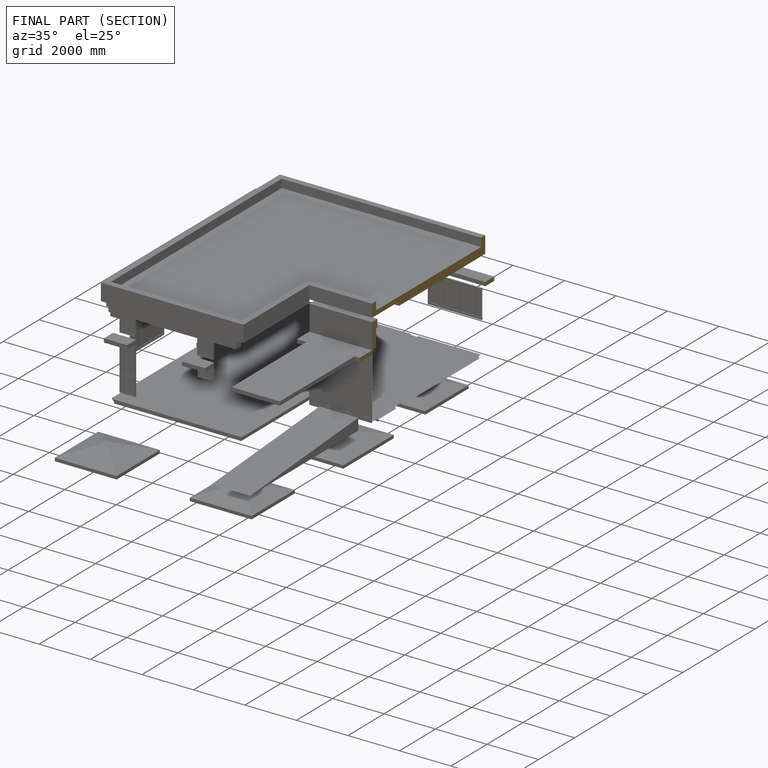
[diagram: finished part — half-section view (interior)]
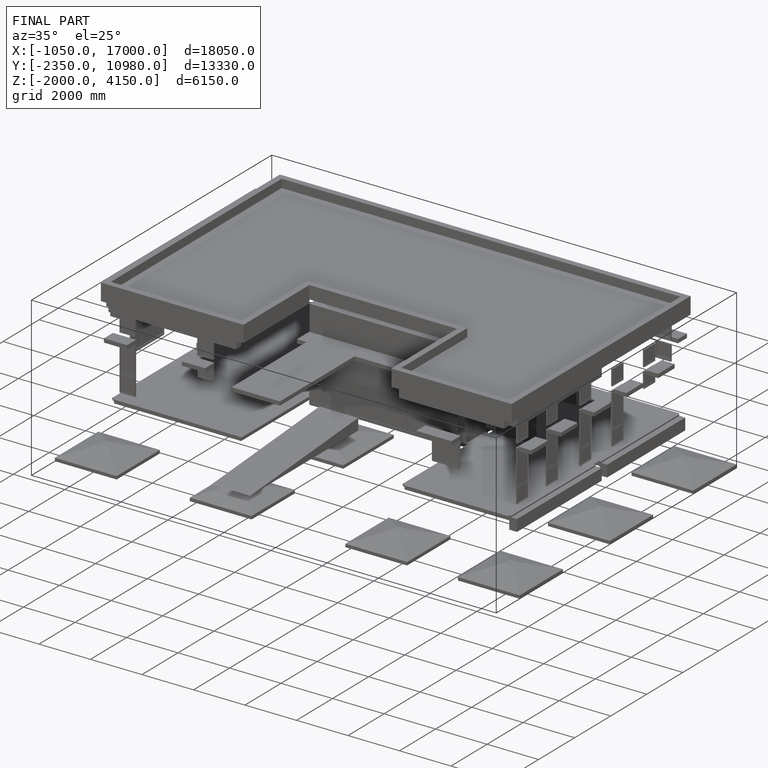
[diagram: finished part — iso view with bounding-box wireframe]
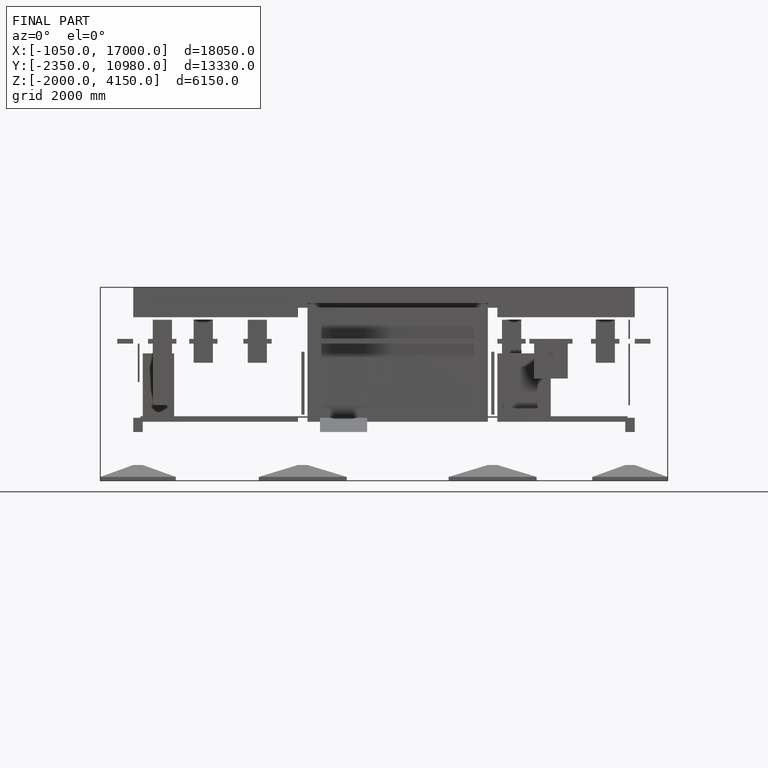
[diagram: finished part — front view with bounding-box wireframe]
